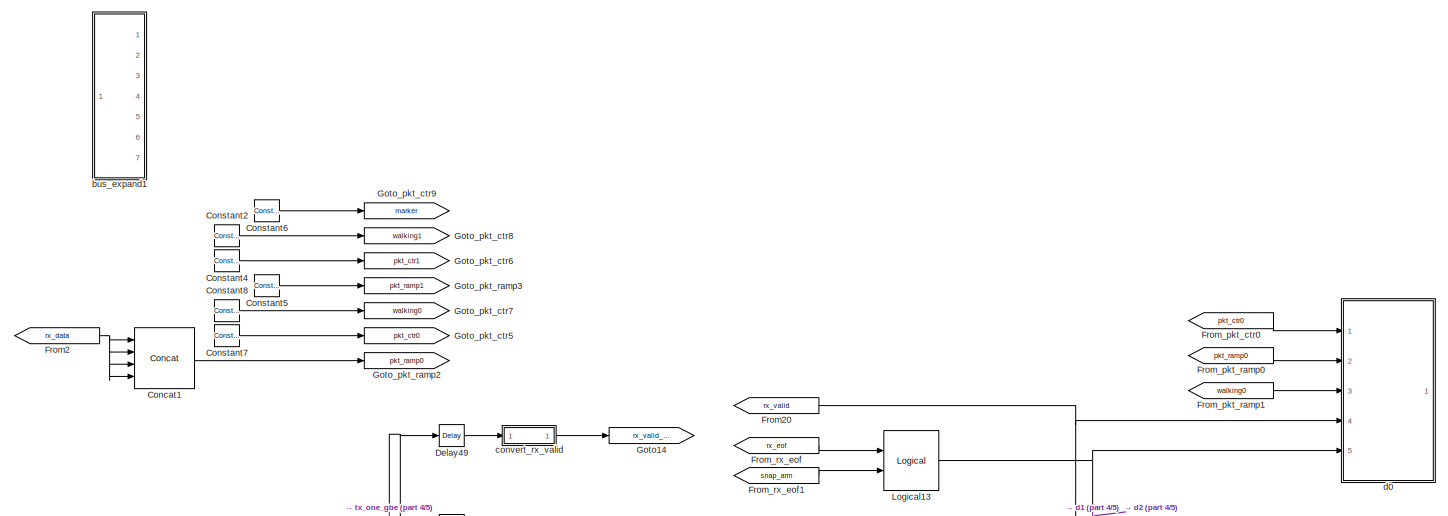
[diagram: root canvas - part 1/5, top center region]
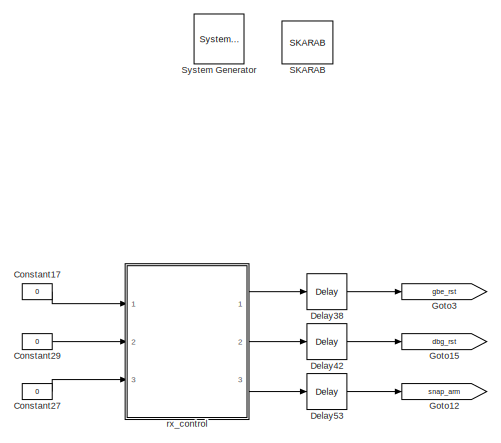
[diagram: root canvas - part 2/5, top left region]
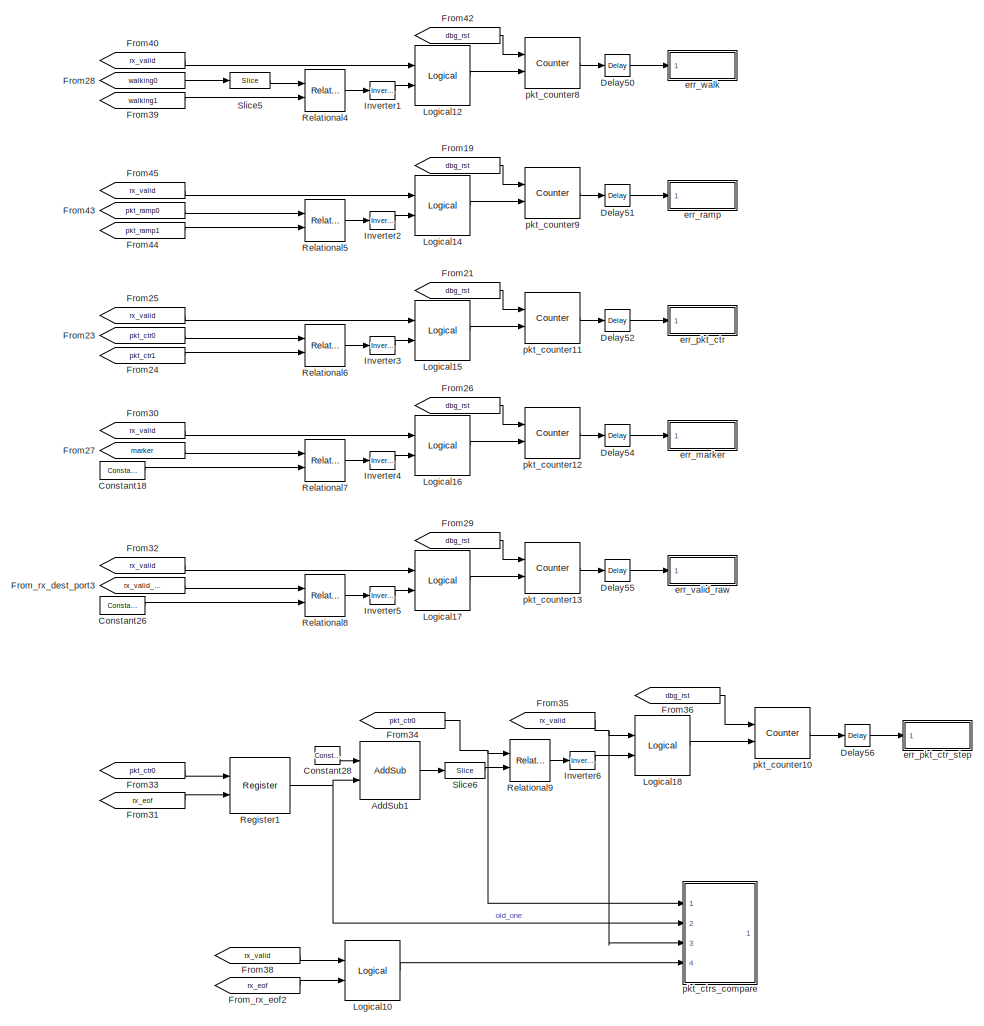
[diagram: root canvas - part 3/5, middle right region]
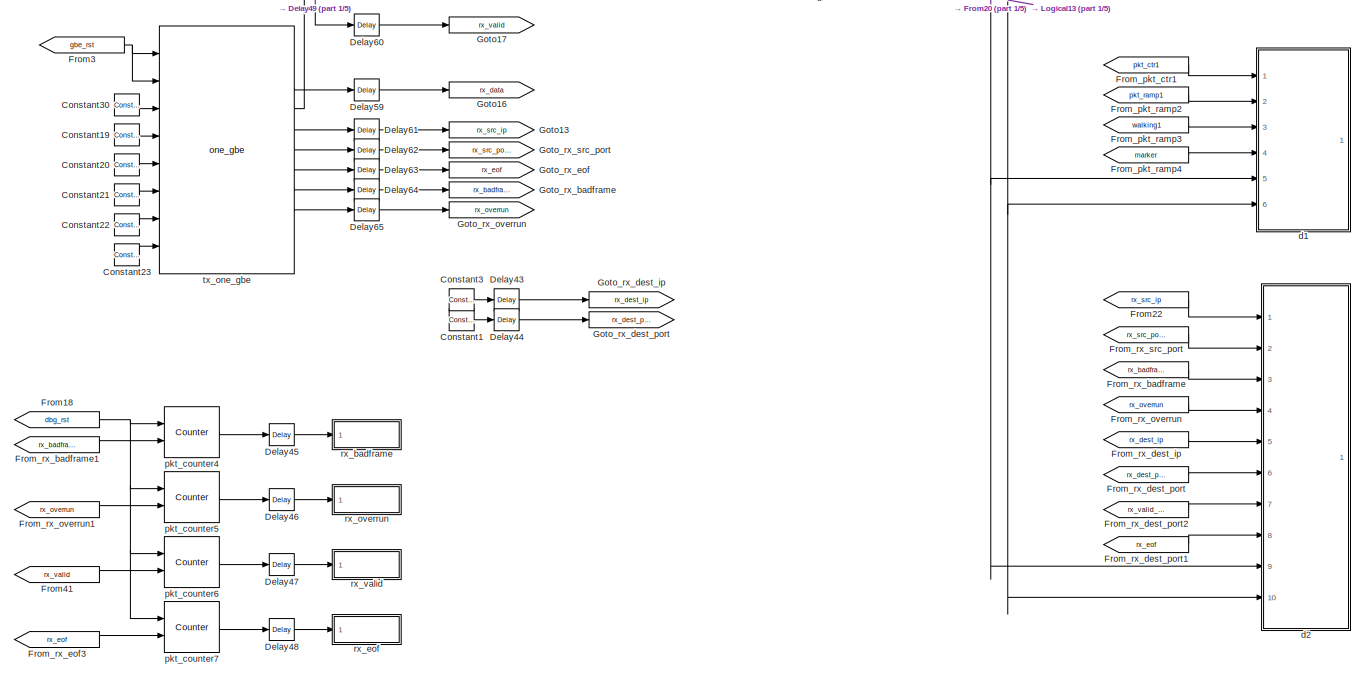
[diagram: root canvas - part 4/5, central region]
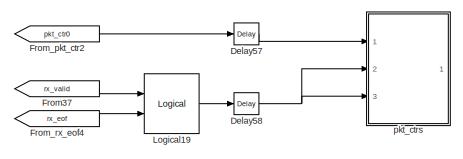
[diagram: root canvas - part 5/5, bottom center region]
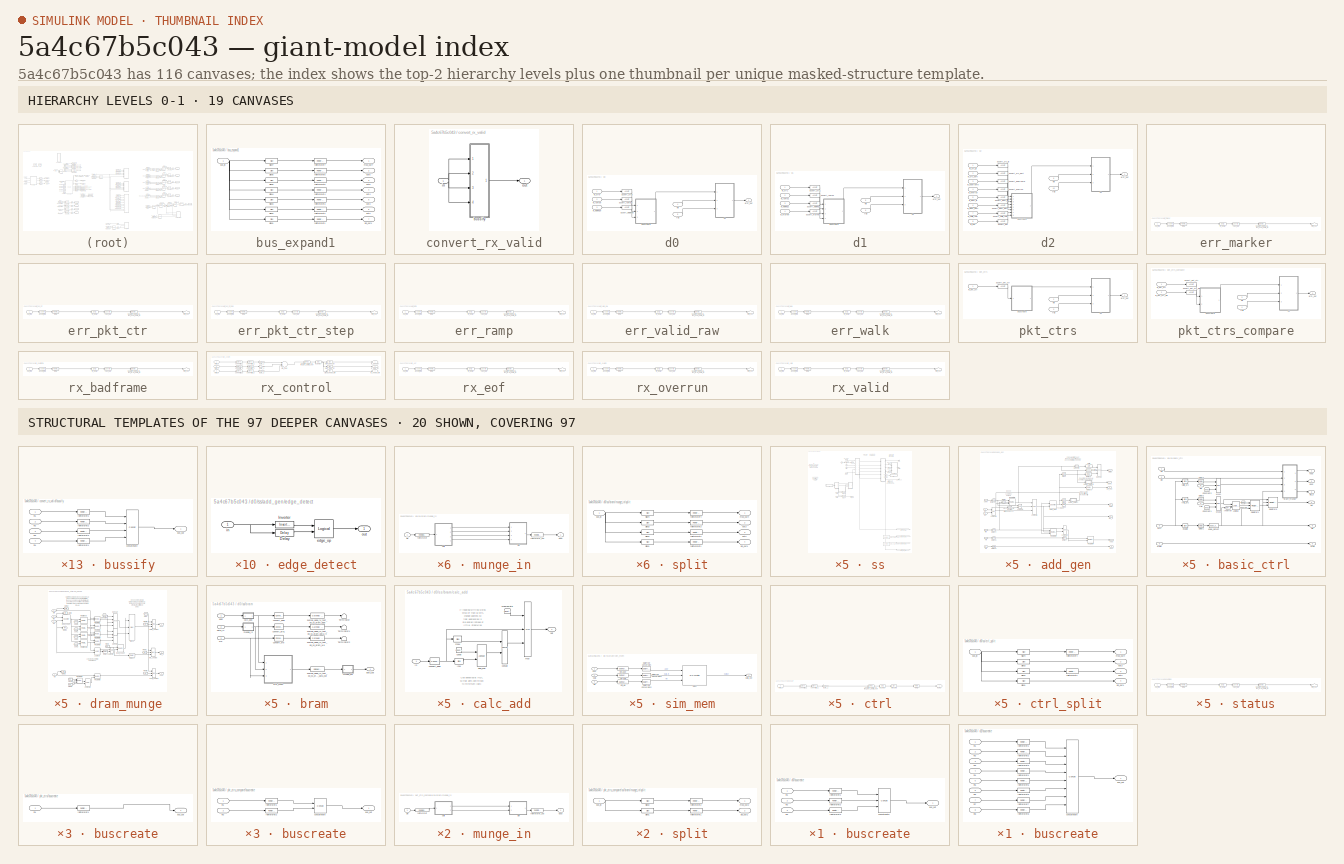
[diagram: thumbnail index - top-2 hierarchy levels (19 canvases) + 20 structural-template representatives of the remaining 97 canvases]
MODEL slx_5a4c67b5c043
KIND model
CONFIG AbsTol = auto
CONFIG EnableMultiTasking = off
CONFIG FixedStep = auto
CONFIG MaxStep = auto
CONFIG MinStep = auto
CONFIG RelTol = 1e-3
CONFIG SampleTimeConstraint = Unconstrained
CONFIG Solver = VariableStepAuto
CONFIG SolverName = VariableStepAuto
CONFIG StartTime = 0.0
CONFIG StopTime = 10.0
BLOCK [Reference]  System Generator  REF=xbsIndex_r4/ System Generator
  AttributesFormatString = System\nGenerator
  Ports = []
  SourceBlock = xbsIndex_r4/ System Generator
  SourceType = Xilinx System Generator Block
  Tag = genX
  UserDataPersistent = on
BLOCK [Reference] AddSub1  REF=xbsIndex_r4/AddSub
  Ports = [2, 1]
  SourceBlock = xbsIndex_r4/AddSub
  SourceType = Xilinx Adder/Subtracter Block
BLOCK [Reference] Concat1  REF=xbsIndex_r4/Concat
  Ports = [4, 1]
  SourceBlock = xbsIndex_r4/Concat
  SourceType = Xilinx Bus Concatenator Block
BLOCK [Reference] Constant1  REF=xbsIndex_r4/Constant
  Ports = [0, 1]
  SourceBlock = xbsIndex_r4/Constant
  SourceType = Xilinx Constant Block Block
BLOCK [Constant] Constant17
  Value = 0
BLOCK [Reference] Constant18  REF=xbsIndex_r4/Constant
  Ports = [0, 1]
  SourceBlock = xbsIndex_r4/Constant
  SourceType = Xilinx Constant Block Block
BLOCK [Reference] Constant19  REF=xbsIndex_r4/Constant
  Ports = [0, 1]
  SourceBlock = xbsIndex_r4/Constant
  SourceType = Xilinx Constant Block Block
BLOCK [Reference] Constant2  REF=xbsIndex_r4/Constant
  Ports = [0, 1]
  SourceBlock = xbsIndex_r4/Constant
  SourceType = Xilinx Constant Block Block
BLOCK [Reference] Constant20  REF=xbsIndex_r4/Constant
  Ports = [0, 1]
  SourceBlock = xbsIndex_r4/Constant
  SourceType = Xilinx Constant Block Block
BLOCK [Reference] Constant21  REF=xbsIndex_r4/Constant
  Ports = [0, 1]
  SourceBlock = xbsIndex_r4/Constant
  SourceType = Xilinx Constant Block Block
BLOCK [Reference] Constant22  REF=xbsIndex_r4/Constant
  Ports = [0, 1]
  SourceBlock = xbsIndex_r4/Constant
  SourceType = Xilinx Constant Block Block
BLOCK [Reference] Constant23  REF=xbsIndex_r4/Constant
  Ports = [0, 1]
  SourceBlock = xbsIndex_r4/Constant
  SourceType = Xilinx Constant Block Block
BLOCK [Reference] Constant26  REF=xbsIndex_r4/Constant
  Ports = [0, 1]
  SourceBlock = xbsIndex_r4/Constant
  SourceType = Xilinx Constant Block Block
BLOCK [Constant] Constant27
  Value = 0
BLOCK [Reference] Constant28  REF=xbsIndex_r4/Constant
  Ports = [0, 1]
  SourceBlock = xbsIndex_r4/Constant
  SourceType = Xilinx Constant Block Block
BLOCK [Constant] Constant29
  Value = 0
BLOCK [Reference] Constant3  REF=xbsIndex_r4/Constant
  Ports = [0, 1]
  SourceBlock = xbsIndex_r4/Constant
  SourceType = Xilinx Constant Block Block
BLOCK [Reference] Constant30  REF=xbsIndex_r4/Constant
  Ports = [0, 1]
  SourceBlock = xbsIndex_r4/Constant
  SourceType = Xilinx Constant Block Block
BLOCK [Reference] Constant4  REF=xbsIndex_r4/Constant
  Ports = [0, 1]
  SourceBlock = xbsIndex_r4/Constant
  SourceType = Xilinx Constant Block Block
BLOCK [Reference] Constant5  REF=xbsIndex_r4/Constant
  Ports = [0, 1]
  SourceBlock = xbsIndex_r4/Constant
  SourceType = Xilinx Constant Block Block
BLOCK [Reference] Constant6  REF=xbsIndex_r4/Constant
  Ports = [0, 1]
  SourceBlock = xbsIndex_r4/Constant
  SourceType = Xilinx Constant Block Block
BLOCK [Reference] Constant7  REF=xbsIndex_r4/Constant
  Ports = [0, 1]
  SourceBlock = xbsIndex_r4/Constant
  SourceType = Xilinx Constant Block Block
BLOCK [Reference] Constant8  REF=xbsIndex_r4/Constant
  Ports = [0, 1]
  SourceBlock = xbsIndex_r4/Constant
  SourceType = Xilinx Constant Block Block
BLOCK [Reference] Delay38  REF=xbsIndex_r4/Delay
  Ports = [1, 1]
  SourceBlock = xbsIndex_r4/Delay
  SourceType = Xilinx Delay Block
BLOCK [Reference] Delay42  REF=xbsIndex_r4/Delay
  Ports = [1, 1]
  SourceBlock = xbsIndex_r4/Delay
  SourceType = Xilinx Delay Block
BLOCK [Reference] Delay43  REF=xbsIndex_r4/Delay
  Ports = [1, 1]
  SourceBlock = xbsIndex_r4/Delay
  SourceType = Xilinx Delay Block
BLOCK [Reference] Delay44  REF=xbsIndex_r4/Delay
  Ports = [1, 1]
  SourceBlock = xbsIndex_r4/Delay
  SourceType = Xilinx Delay Block
BLOCK [Reference] Delay45  REF=xbsIndex_r4/Delay
  Ports = [1, 1]
  SourceBlock = xbsIndex_r4/Delay
  SourceType = Xilinx Delay Block
BLOCK [Reference] Delay46  REF=xbsIndex_r4/Delay
  Ports = [1, 1]
  SourceBlock = xbsIndex_r4/Delay
  SourceType = Xilinx Delay Block
BLOCK [Reference] Delay47  REF=xbsIndex_r4/Delay
  Ports = [1, 1]
  SourceBlock = xbsIndex_r4/Delay
  SourceType = Xilinx Delay Block
BLOCK [Reference] Delay48  REF=xbsIndex_r4/Delay
  Ports = [1, 1]
  SourceBlock = xbsIndex_r4/Delay
  SourceType = Xilinx Delay Block
BLOCK [Reference] Delay49  REF=xbsIndex_r4/Delay
  Ports = [1, 1]
  SourceBlock = xbsIndex_r4/Delay
  SourceType = Xilinx Delay Block
BLOCK [Reference] Delay50  REF=xbsIndex_r4/Delay
  Ports = [1, 1]
  SourceBlock = xbsIndex_r4/Delay
  SourceType = Xilinx Delay Block
BLOCK [Reference] Delay51  REF=xbsIndex_r4/Delay
  Ports = [1, 1]
  SourceBlock = xbsIndex_r4/Delay
  SourceType = Xilinx Delay Block
BLOCK [Reference] Delay52  REF=xbsIndex_r4/Delay
  Ports = [1, 1]
  SourceBlock = xbsIndex_r4/Delay
  SourceType = Xilinx Delay Block
BLOCK [Reference] Delay53  REF=xbsIndex_r4/Delay
  Ports = [1, 1]
  SourceBlock = xbsIndex_r4/Delay
  SourceType = Xilinx Delay Block
BLOCK [Reference] Delay54  REF=xbsIndex_r4/Delay
  Ports = [1, 1]
  SourceBlock = xbsIndex_r4/Delay
  SourceType = Xilinx Delay Block
BLOCK [Reference] Delay55  REF=xbsIndex_r4/Delay
  Ports = [1, 1]
  SourceBlock = xbsIndex_r4/Delay
  SourceType = Xilinx Delay Block
BLOCK [Reference] Delay56  REF=xbsIndex_r4/Delay
  Ports = [1, 1]
  SourceBlock = xbsIndex_r4/Delay
  SourceType = Xilinx Delay Block
BLOCK [Reference] Delay57  REF=xbsIndex_r4/Delay
  Ports = [1, 1]
  SourceBlock = xbsIndex_r4/Delay
  SourceType = Xilinx Delay Block
BLOCK [Reference] Delay58  REF=xbsIndex_r4/Delay
  Ports = [1, 1]
  SourceBlock = xbsIndex_r4/Delay
  SourceType = Xilinx Delay Block
BLOCK [Reference] Delay59  REF=xbsIndex_r4/Delay
  Ports = [1, 1]
  SourceBlock = xbsIndex_r4/Delay
  SourceType = Xilinx Delay Block
BLOCK [Reference] Delay60  REF=xbsIndex_r4/Delay
  Ports = [1, 1]
  SourceBlock = xbsIndex_r4/Delay
  SourceType = Xilinx Delay Block
BLOCK [Reference] Delay61  REF=xbsIndex_r4/Delay
  Ports = [1, 1]
  SourceBlock = xbsIndex_r4/Delay
  SourceType = Xilinx Delay Block
BLOCK [Reference] Delay62  REF=xbsIndex_r4/Delay
  Ports = [1, 1]
  SourceBlock = xbsIndex_r4/Delay
  SourceType = Xilinx Delay Block
BLOCK [Reference] Delay63  REF=xbsIndex_r4/Delay
  Ports = [1, 1]
  SourceBlock = xbsIndex_r4/Delay
  SourceType = Xilinx Delay Block
BLOCK [Reference] Delay64  REF=xbsIndex_r4/Delay
  Ports = [1, 1]
  SourceBlock = xbsIndex_r4/Delay
  SourceType = Xilinx Delay Block
BLOCK [Reference] Delay65  REF=xbsIndex_r4/Delay
  Ports = [1, 1]
  SourceBlock = xbsIndex_r4/Delay
  SourceType = Xilinx Delay Block
BLOCK [From] From18
  GotoTag = dbg_rst
BLOCK [From] From19
  GotoTag = dbg_rst
BLOCK [From] From2
  GotoTag = rx_data
BLOCK [From] From20
  GotoTag = rx_valid
BLOCK [From] From21
  GotoTag = dbg_rst
BLOCK [From] From22
  GotoTag = rx_src_ip
BLOCK [From] From23
  GotoTag = pkt_ctr0
BLOCK [From] From24
  GotoTag = pkt_ctr1
BLOCK [From] From25
  GotoTag = rx_valid
BLOCK [From] From26
  GotoTag = dbg_rst
BLOCK [From] From27
  GotoTag = marker
BLOCK [From] From28
  GotoTag = walking0
BLOCK [From] From29
  GotoTag = dbg_rst
BLOCK [From] From3
  GotoTag = gbe_rst
BLOCK [From] From30
  GotoTag = rx_valid
BLOCK [From] From31
  GotoTag = rx_eof
BLOCK [From] From32
  GotoTag = rx_valid
BLOCK [From] From33
  GotoTag = pkt_ctr0
BLOCK [From] From34
  GotoTag = pkt_ctr0
BLOCK [From] From35
  GotoTag = rx_valid
BLOCK [From] From36
  GotoTag = dbg_rst
BLOCK [From] From37
  GotoTag = rx_valid
BLOCK [From] From38
  GotoTag = rx_valid
BLOCK [From] From39
  GotoTag = walking1
BLOCK [From] From40
  GotoTag = rx_valid
BLOCK [From] From41
  GotoTag = rx_valid
BLOCK [From] From42
  GotoTag = dbg_rst
BLOCK [From] From43
  GotoTag = pkt_ramp0
BLOCK [From] From44
  GotoTag = pkt_ramp1
BLOCK [From] From45
  GotoTag = rx_valid
BLOCK [From] From_pkt_ctr0
  GotoTag = pkt_ctr0
BLOCK [From] From_pkt_ctr1
  GotoTag = pkt_ctr1
BLOCK [From] From_pkt_ctr2
  GotoTag = pkt_ctr0
BLOCK [From] From_pkt_ramp0
  GotoTag = pkt_ramp0
BLOCK [From] From_pkt_ramp1
  GotoTag = walking0
BLOCK [From] From_pkt_ramp2
  GotoTag = pkt_ramp1
BLOCK [From] From_pkt_ramp3
  GotoTag = walking1
BLOCK [From] From_pkt_ramp4
  GotoTag = marker
BLOCK [From] From_rx_badframe
  GotoTag = rx_badframe
BLOCK [From] From_rx_badframe1
  GotoTag = rx_badframe
BLOCK [From] From_rx_dest_ip
  GotoTag = rx_dest_ip
BLOCK [From] From_rx_dest_port
  GotoTag = rx_dest_port
BLOCK [From] From_rx_dest_port1
  GotoTag = rx_eof
BLOCK [From] From_rx_dest_port2
  GotoTag = rx_valid_raw
BLOCK [From] From_rx_dest_port3
  GotoTag = rx_valid_raw
BLOCK [From] From_rx_eof
  GotoTag = rx_eof
BLOCK [From] From_rx_eof1
  GotoTag = snap_arm
BLOCK [From] From_rx_eof2
  GotoTag = rx_eof
BLOCK [From] From_rx_eof3
  GotoTag = rx_eof
BLOCK [From] From_rx_eof4
  GotoTag = rx_eof
BLOCK [From] From_rx_overrun
  GotoTag = rx_overrun
BLOCK [From] From_rx_overrun1
  GotoTag = rx_overrun
BLOCK [From] From_rx_src_port
  GotoTag = rx_src_port
BLOCK [Goto] Goto12
  GotoTag = snap_arm
BLOCK [Goto] Goto13
  GotoTag = rx_src_ip
BLOCK [Goto] Goto14
  GotoTag = rx_valid_raw
BLOCK [Goto] Goto15
  GotoTag = dbg_rst
BLOCK [Goto] Goto16
  GotoTag = rx_data
BLOCK [Goto] Goto17
  GotoTag = rx_valid
BLOCK [Goto] Goto3
  GotoTag = gbe_rst
BLOCK [Goto] Goto_pkt_ctr5
  GotoTag = pkt_ctr0
BLOCK [Goto] Goto_pkt_ctr6
  GotoTag = pkt_ctr1
BLOCK [Goto] Goto_pkt_ctr7
  GotoTag = walking0
BLOCK [Goto] Goto_pkt_ctr8
  GotoTag = walking1
BLOCK [Goto] Goto_pkt_ctr9
  GotoTag = marker
BLOCK [Goto] Goto_pkt_ramp2
  GotoTag = pkt_ramp0
BLOCK [Goto] Goto_pkt_ramp3
  GotoTag = pkt_ramp1
BLOCK [Goto] Goto_rx_badframe
  GotoTag = rx_badframe
BLOCK [Goto] Goto_rx_dest_ip
  GotoTag = rx_dest_ip
BLOCK [Goto] Goto_rx_dest_port
  GotoTag = rx_dest_port
BLOCK [Goto] Goto_rx_eof
  GotoTag = rx_eof
BLOCK [Goto] Goto_rx_overrun
  GotoTag = rx_overrun
BLOCK [Goto] Goto_rx_src_port
  GotoTag = rx_src_port
BLOCK [Reference] Inverter1  REF=xbsIndex_r4/Inverter
  Ports = [1, 1]
  SourceBlock = xbsIndex_r4/Inverter
  SourceType = Xilinx Inverter Block
BLOCK [Reference] Inverter2  REF=xbsIndex_r4/Inverter
  Ports = [1, 1]
  SourceBlock = xbsIndex_r4/Inverter
  SourceType = Xilinx Inverter Block
BLOCK [Reference] Inverter3  REF=xbsIndex_r4/Inverter
  Ports = [1, 1]
  SourceBlock = xbsIndex_r4/Inverter
  SourceType = Xilinx Inverter Block
BLOCK [Reference] Inverter4  REF=xbsIndex_r4/Inverter
  Ports = [1, 1]
  SourceBlock = xbsIndex_r4/Inverter
  SourceType = Xilinx Inverter Block
BLOCK [Reference] Inverter5  REF=xbsIndex_r4/Inverter
  Ports = [1, 1]
  SourceBlock = xbsIndex_r4/Inverter
  SourceType = Xilinx Inverter Block
BLOCK [Reference] Inverter6  REF=xbsIndex_r4/Inverter
  Ports = [1, 1]
  SourceBlock = xbsIndex_r4/Inverter
  SourceType = Xilinx Inverter Block
BLOCK [Reference] Logical10  REF=xbsIndex_r4/Logical
  Ports = [2, 1]
  SourceBlock = xbsIndex_r4/Logical
  SourceType = Xilinx Logical Block Block
BLOCK [Reference] Logical12  REF=xbsIndex_r4/Logical
  Ports = [2, 1]
  SourceBlock = xbsIndex_r4/Logical
  SourceType = Xilinx Logical Block Block
BLOCK [Reference] Logical13  REF=xbsIndex_r4/Logical
  Ports = [2, 1]
  SourceBlock = xbsIndex_r4/Logical
  SourceType = Xilinx Logical Block Block
BLOCK [Reference] Logical14  REF=xbsIndex_r4/Logical
  Ports = [2, 1]
  SourceBlock = xbsIndex_r4/Logical
  SourceType = Xilinx Logical Block Block
BLOCK [Reference] Logical15  REF=xbsIndex_r4/Logical
  Ports = [2, 1]
  SourceBlock = xbsIndex_r4/Logical
  SourceType = Xilinx Logical Block Block
BLOCK [Reference] Logical16  REF=xbsIndex_r4/Logical
  Ports = [2, 1]
  SourceBlock = xbsIndex_r4/Logical
  SourceType = Xilinx Logical Block Block
BLOCK [Reference] Logical17  REF=xbsIndex_r4/Logical
  Ports = [2, 1]
  SourceBlock = xbsIndex_r4/Logical
  SourceType = Xilinx Logical Block Block
BLOCK [Reference] Logical18  REF=xbsIndex_r4/Logical
  Ports = [2, 1]
  SourceBlock = xbsIndex_r4/Logical
  SourceType = Xilinx Logical Block Block
BLOCK [Reference] Logical19  REF=xbsIndex_r4/Logical
  Ports = [2, 1]
  SourceBlock = xbsIndex_r4/Logical
  SourceType = Xilinx Logical Block Block
BLOCK [Reference] Register1  REF=xbsIndex_r4/Register
  Ports = [2, 1]
  SourceBlock = xbsIndex_r4/Register
  SourceType = Xilinx Register Block
BLOCK [Reference] Relational4  REF=xbsIndex_r4/Relational
  Ports = [2, 1]
  SourceBlock = xbsIndex_r4/Relational
  SourceType = Xilinx Arithmetic Relational Operator Block
BLOCK [Reference] Relational5  REF=xbsIndex_r4/Relational
  Ports = [2, 1]
  SourceBlock = xbsIndex_r4/Relational
  SourceType = Xilinx Arithmetic Relational Operator Block
BLOCK [Reference] Relational6  REF=xbsIndex_r4/Relational
  Ports = [2, 1]
  SourceBlock = xbsIndex_r4/Relational
  SourceType = Xilinx Arithmetic Relational Operator Block
BLOCK [Reference] Relational7  REF=xbsIndex_r4/Relational
  Ports = [2, 1]
  SourceBlock = xbsIndex_r4/Relational
  SourceType = Xilinx Arithmetic Relational Operator Block
BLOCK [Reference] Relational8  REF=xbsIndex_r4/Relational
  Ports = [2, 1]
  SourceBlock = xbsIndex_r4/Relational
  SourceType = Xilinx Arithmetic Relational Operator Block
BLOCK [Reference] Relational9  REF=xbsIndex_r4/Relational
  Ports = [2, 1]
  SourceBlock = xbsIndex_r4/Relational
  SourceType = Xilinx Arithmetic Relational Operator Block
BLOCK [Reference] SKARAB  REF=xps_library/Platforms/SKARAB  (lib defined in mdl_00b5cec29cd0, mdl_02ab6ecaa3d1, +5 more)
  Ports = []
  SourceBlock = xps_library/Platforms/SKARAB
  SourceProductName = CASPER XPS Blockset
  SourceType = xsg core config
  Tag = xps:xsg
BLOCK [Reference] Slice5  REF=xbsIndex_r4/Slice
  Ports = [1, 1]
  SourceBlock = xbsIndex_r4/Slice
  SourceType = Xilinx Bit Slice Extractor Block
BLOCK [Reference] Slice6  REF=xbsIndex_r4/Slice
  Ports = [1, 1]
  SourceBlock = xbsIndex_r4/Slice
  SourceType = Xilinx Bit Slice Extractor Block
BLOCK [SubSystem] bus_expand1
  AncestorBlock = casper_library_flow_control/bus_expand
  AttributesFormatString = 7 outputs: uf16.0,uf48.0,uf32.0,uf32.0,uf64.0,uf32.0,uf32.0,
  Commented = on
  Ports = [1, 7]
  RequestExecContextInheritance = off
  UserDataPersistent = on
BLOCK [Inport] bus_expand1/bus_in
  IconDisplay = Port number
BLOCK [Outport] bus_expand1/lsb_out1
  IconDisplay = Port number
  Port = 7
BLOCK [Outport] bus_expand1/msb_out7
  IconDisplay = Port number
BLOCK [Outport] bus_expand1/out2
  IconDisplay = Port number
  Port = 6
BLOCK [Outport] bus_expand1/out3
  IconDisplay = Port number
  Port = 5
BLOCK [Outport] bus_expand1/out4
  IconDisplay = Port number
  Port = 4
BLOCK [Outport] bus_expand1/out5
  IconDisplay = Port number
  Port = 3
BLOCK [Outport] bus_expand1/out6
  IconDisplay = Port number
  Port = 2
BLOCK [Reference] bus_expand1/reinterpret1  REF=xbsIndex_r4/Reinterpret
  Ports = [1, 1]
  SourceBlock = xbsIndex_r4/Reinterpret
  SourceType = Xilinx Type Reinterpreter Block
BLOCK [Reference] bus_expand1/reinterpret2  REF=xbsIndex_r4/Reinterpret
  Ports = [1, 1]
  SourceBlock = xbsIndex_r4/Reinterpret
  SourceType = Xilinx Type Reinterpreter Block
BLOCK [Reference] bus_expand1/reinterpret3  REF=xbsIndex_r4/Reinterpret
  Ports = [1, 1]
  SourceBlock = xbsIndex_r4/Reinterpret
  SourceType = Xilinx Type Reinterpreter Block
BLOCK [Reference] bus_expand1/reinterpret4  REF=xbsIndex_r4/Reinterpret
  Ports = [1, 1]
  SourceBlock = xbsIndex_r4/Reinterpret
  SourceType = Xilinx Type Reinterpreter Block
BLOCK [Reference] bus_expand1/reinterpret5  REF=xbsIndex_r4/Reinterpret
  Ports = [1, 1]
  SourceBlock = xbsIndex_r4/Reinterpret
  SourceType = Xilinx Type Reinterpreter Block
BLOCK [Reference] bus_expand1/reinterpret6  REF=xbsIndex_r4/Reinterpret
  Ports = [1, 1]
  SourceBlock = xbsIndex_r4/Reinterpret
  SourceType = Xilinx Type Reinterpreter Block
BLOCK [Reference] bus_expand1/reinterpret7  REF=xbsIndex_r4/Reinterpret
  Ports = [1, 1]
  SourceBlock = xbsIndex_r4/Reinterpret
  SourceType = Xilinx Type Reinterpreter Block
BLOCK [Reference] bus_expand1/slice1  REF=xbsIndex_r4/Slice
  Ports = [1, 1]
  SourceBlock = xbsIndex_r4/Slice
  SourceType = Xilinx Bit Slice Extractor Block
BLOCK [Reference] bus_expand1/slice2  REF=xbsIndex_r4/Slice
  Ports = [1, 1]
  SourceBlock = xbsIndex_r4/Slice
  SourceType = Xilinx Bit Slice Extractor Block
BLOCK [Reference] bus_expand1/slice3  REF=xbsIndex_r4/Slice
  Ports = [1, 1]
  SourceBlock = xbsIndex_r4/Slice
  SourceType = Xilinx Bit Slice Extractor Block
BLOCK [Reference] bus_expand1/slice4  REF=xbsIndex_r4/Slice
  Ports = [1, 1]
  SourceBlock = xbsIndex_r4/Slice
  SourceType = Xilinx Bit Slice Extractor Block
BLOCK [Reference] bus_expand1/slice5  REF=xbsIndex_r4/Slice
  Ports = [1, 1]
  SourceBlock = xbsIndex_r4/Slice
  SourceType = Xilinx Bit Slice Extractor Block
BLOCK [Reference] bus_expand1/slice6  REF=xbsIndex_r4/Slice
  Ports = [1, 1]
  SourceBlock = xbsIndex_r4/Slice
  SourceType = Xilinx Bit Slice Extractor Block
BLOCK [Reference] bus_expand1/slice7  REF=xbsIndex_r4/Slice
  Ports = [1, 1]
  SourceBlock = xbsIndex_r4/Slice
  SourceType = Xilinx Bit Slice Extractor Block
BLOCK [SubSystem] convert_rx_valid
  AncestorBlock = casper_library_bus/bus_replicate
  Ports = [1, 1]
  RequestExecContextInheritance = off
  UserDataPersistent = on
BLOCK [SubSystem] convert_rx_valid/bussify
  AncestorBlock = casper_library_flow_control/bus_create
  Ports = [4, 1]
  RequestExecContextInheritance = off
  UserDataPersistent = on
BLOCK [Outport] convert_rx_valid/bussify/bus_out
  IconDisplay = Port number
BLOCK [Reference] convert_rx_valid/bussify/concatenate  REF=xbsIndex_r4/Concat
  Ports = [4, 1]
  SourceBlock = xbsIndex_r4/Concat
  SourceType = Xilinx Bus Concatenator Block
BLOCK [Inport] convert_rx_valid/bussify/in1
  IconDisplay = Port number
BLOCK [Inport] convert_rx_valid/bussify/in2
  IconDisplay = Port number
  Port = 2
BLOCK [Inport] convert_rx_valid/bussify/in3
  IconDisplay = Port number
  Port = 3
BLOCK [Inport] convert_rx_valid/bussify/in4
  IconDisplay = Port number
  Port = 4
BLOCK [Reference] convert_rx_valid/bussify/reinterpret1  REF=xbsIndex_r4/Reinterpret
  Ports = [1, 1]
  SourceBlock = xbsIndex_r4/Reinterpret
  SourceType = Xilinx Type Reinterpreter Block
BLOCK [Reference] convert_rx_valid/bussify/reinterpret2  REF=xbsIndex_r4/Reinterpret
  Ports = [1, 1]
  SourceBlock = xbsIndex_r4/Reinterpret
  SourceType = Xilinx Type Reinterpreter Block
BLOCK [Reference] convert_rx_valid/bussify/reinterpret3  REF=xbsIndex_r4/Reinterpret
  Ports = [1, 1]
  SourceBlock = xbsIndex_r4/Reinterpret
  SourceType = Xilinx Type Reinterpreter Block
BLOCK [Reference] convert_rx_valid/bussify/reinterpret4  REF=xbsIndex_r4/Reinterpret
  Ports = [1, 1]
  SourceBlock = xbsIndex_r4/Reinterpret
  SourceType = Xilinx Type Reinterpreter Block
BLOCK [Inport] convert_rx_valid/in
  IconDisplay = Port number
BLOCK [Outport] convert_rx_valid/out
  IconDisplay = Port number
BLOCK [SubSystem] d0
  AncestorBlock = casper_library_scopes/bitfield_snapshot
  AttributesFormatString = snap(3):uf32.0,uf32.0,uf64.0 = 128 bits\n128 wide, 8192 deep\ndebugID: 107683228
  Ports = [5, 1]
  RequestExecContextInheritance = off
  Tag = casper:bitsnap
  UserDataPersistent = on
BLOCK [Outport] d0/arm_out
  IconDisplay = Port number
BLOCK [Reference] d0/assert_ctr0  REF=xbsIndex_r4/Assert
  Ports = [1, 1]
  SourceBlock = xbsIndex_r4/Assert
  SourceType = Xilinx Assert Block
BLOCK [Reference] d0/assert_ramp0  REF=xbsIndex_r4/Assert
  Ports = [1, 1]
  SourceBlock = xbsIndex_r4/Assert
  SourceType = Xilinx Assert Block
BLOCK [Reference] d0/assert_walking0  REF=xbsIndex_r4/Assert
  Ports = [1, 1]
  SourceBlock = xbsIndex_r4/Assert
  SourceType = Xilinx Assert Block
BLOCK [SubSystem] d0/buscreate
  AncestorBlock = casper_library_flow_control/bus_create
  Ports = [3, 1]
  RequestExecContextInheritance = off
  UserDataPersistent = on
BLOCK [Outport] d0/buscreate/bus_out
  IconDisplay = Port number
BLOCK [Reference] d0/buscreate/concatenate  REF=xbsIndex_r4/Concat
  Ports = [3, 1]
  SourceBlock = xbsIndex_r4/Concat
  SourceType = Xilinx Bus Concatenator Block
BLOCK [Inport] d0/buscreate/in1
  IconDisplay = Port number
BLOCK [Inport] d0/buscreate/in2
  IconDisplay = Port number
  Port = 2
BLOCK [Inport] d0/buscreate/in3
  IconDisplay = Port number
  Port = 3
BLOCK [Reference] d0/buscreate/reinterpret1  REF=xbsIndex_r4/Reinterpret
  Ports = [1, 1]
  SourceBlock = xbsIndex_r4/Reinterpret
  SourceType = Xilinx Type Reinterpreter Block
BLOCK [Reference] d0/buscreate/reinterpret2  REF=xbsIndex_r4/Reinterpret
  Ports = [1, 1]
  SourceBlock = xbsIndex_r4/Reinterpret
  SourceType = Xilinx Type Reinterpreter Block
BLOCK [Reference] d0/buscreate/reinterpret3  REF=xbsIndex_r4/Reinterpret
  Ports = [1, 1]
  SourceBlock = xbsIndex_r4/Reinterpret
  SourceType = Xilinx Type Reinterpreter Block
BLOCK [Inport] d0/in_ctr0
  IconDisplay = Port number
BLOCK [Inport] d0/in_ramp0
  IconDisplay = Port number
  Port = 2
BLOCK [Inport] d0/in_walking0
  IconDisplay = Port number
  Port = 3
BLOCK [SubSystem] d0/ss
  AncestorBlock = casper_library_scopes/snapshot
  AttributesFormatString = 128 wide, 8192 deep\ndebugID: 110985542
  Ports = [3, 1]
  RequestExecContextInheritance = off
  Tag = casper:snapshot
  UserDataPersistent = on
BLOCK [Reference] d0/ss/add_del  REF=xbsIndex_r4/Delay
  Ports = [1, 1]
  SourceBlock = xbsIndex_r4/Delay
  SourceType = Xilinx Delay Block
BLOCK [SubSystem] d0/ss/add_gen
  AncestorBlock = casper_library_scopes/snapshot/add_gen
  Ports = [6, 7]
  RequestExecContextInheritance = off
BLOCK [Reference] d0/ss/add_gen/Concat  REF=xbsIndex_r4/Concat
  Ports = [3, 1]
  SourceBlock = xbsIndex_r4/Concat
  SourceType = Xilinx Bus Concatenator Block
BLOCK [Reference] d0/ss/add_gen/Convert  REF=xbsIndex_r4/Convert
  Ports = [1, 1]
  SourceBlock = xbsIndex_r4/Convert
  SourceType = Xilinx Type Converter Block
BLOCK [Reference] d0/ss/add_gen/Delay  REF=xbsIndex_r4/Delay
  Ports = [1, 1]
  SourceBlock = xbsIndex_r4/Delay
  SourceType = Xilinx Delay Block
BLOCK [Reference] d0/ss/add_gen/Delay1  REF=xbsIndex_r4/Delay
  Ports = [1, 1]
  SourceBlock = xbsIndex_r4/Delay
  SourceType = Xilinx Delay Block
BLOCK [Reference] d0/ss/add_gen/Delay2  REF=xbsIndex_r4/Delay
  Ports = [1, 1]
  SourceBlock = xbsIndex_r4/Delay
  SourceType = Xilinx Delay Block
BLOCK [Reference] d0/ss/add_gen/Delay3  REF=xbsIndex_r4/Delay
  Ports = [1, 1]
  SourceBlock = xbsIndex_r4/Delay
  SourceType = Xilinx Delay Block
BLOCK [Reference] d0/ss/add_gen/Delay4  REF=xbsIndex_r4/Delay
  Ports = [1, 1]
  SourceBlock = xbsIndex_r4/Delay
  SourceType = Xilinx Delay Block
BLOCK [Reference] d0/ss/add_gen/Delay5  REF=xbsIndex_r4/Delay
  Ports = [1, 1]
  SourceBlock = xbsIndex_r4/Delay
  SourceType = Xilinx Delay Block
BLOCK [Reference] d0/ss/add_gen/Delay6  REF=xbsIndex_r4/Delay
  Ports = [1, 1]
  SourceBlock = xbsIndex_r4/Delay
  SourceType = Xilinx Delay Block
BLOCK [Reference] d0/ss/add_gen/Delay7  REF=xbsIndex_r4/Delay
  Ports = [1, 1]
  SourceBlock = xbsIndex_r4/Delay
  SourceType = Xilinx Delay Block
BLOCK [Reference] d0/ss/add_gen/Inverter  REF=xbsIndex_r4/Inverter
  Ports = [1, 1]
  SourceBlock = xbsIndex_r4/Inverter
  SourceType = Xilinx Inverter Block
BLOCK [Reference] d0/ss/add_gen/Inverter1  REF=xbsIndex_r4/Inverter
  Ports = [1, 1]
  SourceBlock = xbsIndex_r4/Inverter
  SourceType = Xilinx Inverter Block
BLOCK [Reference] d0/ss/add_gen/Logical1  REF=xbsIndex_r4/Logical
  Ports = [2, 1]
  SourceBlock = xbsIndex_r4/Logical
  SourceType = Xilinx Logical Block Block
BLOCK [Reference] d0/ss/add_gen/Logical2  REF=xbsIndex_r4/Logical
  Ports = [2, 1]
  SourceBlock = xbsIndex_r4/Logical
  SourceType = Xilinx Logical Block Block
BLOCK [Reference] d0/ss/add_gen/Logical4  REF=xbsIndex_r4/Logical
  Ports = [2, 1]
  SourceBlock = xbsIndex_r4/Logical
  SourceType = Xilinx Logical Block Block
BLOCK [Reference] d0/ss/add_gen/Logical6  REF=xbsIndex_r4/Logical
  Ports = [3, 1]
  SourceBlock = xbsIndex_r4/Logical
  SourceType = Xilinx Logical Block Block
BLOCK [Reference] d0/ss/add_gen/Register3  REF=xbsIndex_r4/Register
  Ports = [3, 1]
  SourceBlock = xbsIndex_r4/Register
  SourceType = Xilinx Register Block
BLOCK [Reference] d0/ss/add_gen/Register4  REF=xbsIndex_r4/Register
  Ports = [2, 1]
  SourceBlock = xbsIndex_r4/Register
  SourceType = Xilinx Register Block
BLOCK [Reference] d0/ss/add_gen/Register5  REF=xbsIndex_r4/Register
  Ports = [3, 1]
  SourceBlock = xbsIndex_r4/Register
  SourceType = Xilinx Register Block
BLOCK [Reference] d0/ss/add_gen/Shift  REF=xbsIndex_r4/Shift
  Ports = [1, 1]
  SourceBlock = xbsIndex_r4/Shift
  SourceType = Xilinx Binary Shift Operator Block
BLOCK [Outport] d0/ss/add_gen/add
  IconDisplay = Port number
  Port = 2
BLOCK [Reference] d0/ss/add_gen/add_gen  REF=xbsIndex_r4/Counter
  Ports = [2, 1]
  SourceBlock = xbsIndex_r4/Counter
  SourceType = Xilinx Counter Block
BLOCK [Inport] d0/ss/add_gen/cont
  IconDisplay = Port number
  Port = 5
BLOCK [Inport] d0/ss/add_gen/din
  IconDisplay = Port number
  Port = 2
BLOCK [Outport] d0/ss/add_gen/done
  IconDisplay = Port number
  Port = 7
BLOCK [Outport] d0/ss/add_gen/dout
  IconDisplay = Port number
  Port = 3
BLOCK [SubSystem] d0/ss/add_gen/edge_detect
  AncestorBlock = casper_library_misc/edge_detect
  AttributesFormatString = both edges\nactive high
  Ports = [1, 1]
  RequestExecContextInheritance = off
  UserDataPersistent = on
BLOCK [Reference] d0/ss/add_gen/edge_detect/Delay  REF=xbsIndex_r4/Delay
  Ports = [1, 1]
  SourceBlock = xbsIndex_r4/Delay
  SourceType = Xilinx Delay Block
BLOCK [Reference] d0/ss/add_gen/edge_detect/Inverter  REF=xbsIndex_r4/Inverter
  Ports = [1, 1]
  SourceBlock = xbsIndex_r4/Inverter
  SourceType = Xilinx Inverter Block
BLOCK [Reference] d0/ss/add_gen/edge_detect/edge_op  REF=xbsIndex_r4/Logical
  Ports = [2, 1]
  SourceBlock = xbsIndex_r4/Logical
  SourceType = Xilinx Logical Block Block
BLOCK [Inport] d0/ss/add_gen/edge_detect/in
  IconDisplay = Port number
BLOCK [Outport] d0/ss/add_gen/edge_detect/out
  IconDisplay = Port number
BLOCK [SubSystem] d0/ss/add_gen/edge_detect1
  AncestorBlock = casper_library_scopes/snapshot/add_gen/edge_detect
  AttributesFormatString = both edges\nactive high
  Ports = [1, 1]
  RequestExecContextInheritance = off
  UserDataPersistent = on
BLOCK [Reference] d0/ss/add_gen/edge_detect1/Delay  REF=xbsIndex_r4/Delay
  Ports = [1, 1]
  SourceBlock = xbsIndex_r4/Delay
  SourceType = Xilinx Delay Block
BLOCK [Reference] d0/ss/add_gen/edge_detect1/Inverter  REF=xbsIndex_r4/Inverter
  Ports = [1, 1]
  SourceBlock = xbsIndex_r4/Inverter
  SourceType = Xilinx Inverter Block
BLOCK [Reference] d0/ss/add_gen/edge_detect1/edge_op  REF=xbsIndex_r4/Logical
  Ports = [2, 1]
  SourceBlock = xbsIndex_r4/Logical
  SourceType = Xilinx Logical Block Block
BLOCK [Inport] d0/ss/add_gen/edge_detect1/in
  IconDisplay = Port number
BLOCK [Outport] d0/ss/add_gen/edge_detect1/out
  IconDisplay = Port number
BLOCK [Outport] d0/ss/add_gen/en_cnt
  IconDisplay = Port number
  Port = 6
BLOCK [Inport] d0/ss/add_gen/go
  IconDisplay = Port number
  Port = 4
BLOCK [Inport] d0/ss/add_gen/init
  IconDisplay = Port number
  Port = 6
BLOCK [Reference] d0/ss/add_gen/slice1  REF=xbsIndex_r4/Slice
  Ports = [1, 1]
  SourceBlock = xbsIndex_r4/Slice
  SourceType = Xilinx Bit Slice Extractor Block
BLOCK [Reference] d0/ss/add_gen/slice2  REF=xbsIndex_r4/Slice
  Ports = [1, 1]
  SourceBlock = xbsIndex_r4/Slice
  SourceType = Xilinx Bit Slice Extractor Block
BLOCK [Reference] d0/ss/add_gen/slice3  REF=xbsIndex_r4/Slice
  Ports = [1, 1]
  SourceBlock = xbsIndex_r4/Slice
  SourceType = Xilinx Bit Slice Extractor Block
BLOCK [Outport] d0/ss/add_gen/status
  IconDisplay = Port number
  Port = 5
BLOCK [Inport] d0/ss/add_gen/vin
  IconDisplay = Port number
BLOCK [Outport] d0/ss/add_gen/vout
  IconDisplay = Port number
BLOCK [Inport] d0/ss/add_gen/we
  IconDisplay = Port number
  Port = 3
BLOCK [Outport] d0/ss/add_gen/we_o
  IconDisplay = Port number
  Port = 4
BLOCK [Reference] d0/ss/arm  REF=xbsIndex_r4/Constant
  Ports = [0, 1]
  SourceBlock = xbsIndex_r4/Constant
  SourceType = Xilinx Constant Block Block
BLOCK [Reference] d0/ss/arm_or  REF=xbsIndex_r4/Logical
  Ports = [2, 1]
  SourceBlock = xbsIndex_r4/Logical
  SourceType = Xilinx Logical Block Block
BLOCK [Outport] d0/ss/arm_out
  IconDisplay = Port number
BLOCK [SubSystem] d0/ss/basic_ctrl
  AncestorBlock = casper_library_scopes/snapshot/basic_ctrl
  Ports = [6, 6]
  RequestExecContextInheritance = off
BLOCK [Reference] d0/ss/basic_ctrl/Constant  REF=xbsIndex_r4/Constant
  Ports = [0, 1]
  SourceBlock = xbsIndex_r4/Constant
  SourceType = Xilinx Constant Block Block
BLOCK [Reference] d0/ss/basic_ctrl/Constant1  REF=xbsIndex_r4/Constant
  Ports = [0, 1]
  SourceBlock = xbsIndex_r4/Constant
  SourceType = Xilinx Constant Block Block
BLOCK [Reference] d0/ss/basic_ctrl/Constant2  REF=xbsIndex_r4/Constant
  Ports = [0, 1]
  SourceBlock = xbsIndex_r4/Constant
  SourceType = Xilinx Constant Block Block
BLOCK [Reference] d0/ss/basic_ctrl/Delay1  REF=xbsIndex_r4/Delay
  Ports = [1, 1]
  SourceBlock = xbsIndex_r4/Delay
  SourceType = Xilinx Delay Block
BLOCK [Reference] d0/ss/basic_ctrl/Delay2  REF=xbsIndex_r4/Delay
  Ports = [1, 1]
  SourceBlock = xbsIndex_r4/Delay
  SourceType = Xilinx Delay Block
BLOCK [Reference] d0/ss/basic_ctrl/Delay3  REF=xbsIndex_r4/Delay
  Ports = [1, 1]
  SourceBlock = xbsIndex_r4/Delay
  SourceType = Xilinx Delay Block
BLOCK [Reference] d0/ss/basic_ctrl/Inverter  REF=xbsIndex_r4/Inverter
  Ports = [1, 1]
  SourceBlock = xbsIndex_r4/Inverter
  SourceType = Xilinx Inverter Block
BLOCK [Reference] d0/ss/basic_ctrl/Logical  REF=xbsIndex_r4/Logical
  Ports = [2, 1]
  SourceBlock = xbsIndex_r4/Logical
  SourceType = Xilinx Logical Block Block
BLOCK [Reference] d0/ss/basic_ctrl/Mux1  REF=xbsIndex_r4/Mux
  Ports = [3, 1]
  SourceBlock = xbsIndex_r4/Mux
  SourceType = Xilinx Bus Multiplexer Block
BLOCK [Reference] d0/ss/basic_ctrl/Mux2  REF=xbsIndex_r4/Mux
  Ports = [3, 1]
  SourceBlock = xbsIndex_r4/Mux
  SourceType = Xilinx Bus Multiplexer Block
BLOCK [Reference] d0/ss/basic_ctrl/Register1  REF=xbsIndex_r4/Register
  Ports = [3, 1]
  SourceBlock = xbsIndex_r4/Register
  SourceType = Xilinx Register Block
BLOCK [Reference] d0/ss/basic_ctrl/Register6  REF=xbsIndex_r4/Register
  Ports = [3, 1]
  SourceBlock = xbsIndex_r4/Register
  SourceType = Xilinx Register Block
BLOCK [Inport] d0/ss/basic_ctrl/ctrl
  IconDisplay = Port number
  Port = 5
BLOCK [Inport] d0/ss/basic_ctrl/din
  IconDisplay = Port number
  Port = 2
BLOCK [Outport] d0/ss/basic_ctrl/dout
  IconDisplay = Port number
  Port = 2
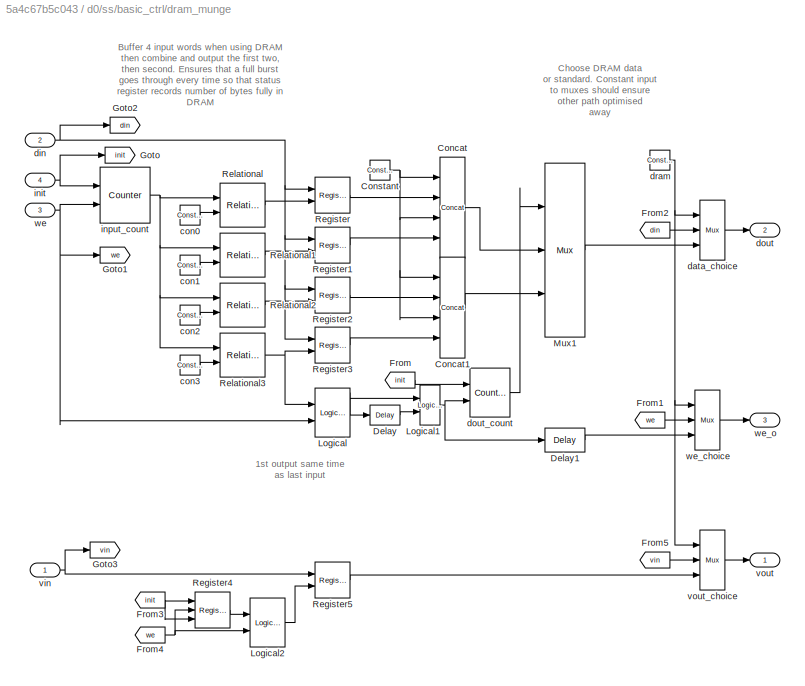
BLOCK [SubSystem] d0/ss/basic_ctrl/dram_munge
  Ports = [4, 3]
  RequestExecContextInheritance = off
BLOCK [Reference] d0/ss/basic_ctrl/dram_munge/Concat  REF=xbsIndex_r4/Concat
  Ports = [4, 1]
  SourceBlock = xbsIndex_r4/Concat
  SourceType = Xilinx Bus Concatenator Block
BLOCK [Reference] d0/ss/basic_ctrl/dram_munge/Concat1  REF=xbsIndex_r4/Concat
  Ports = [4, 1]
  SourceBlock = xbsIndex_r4/Concat
  SourceType = Xilinx Bus Concatenator Block
BLOCK [Reference] d0/ss/basic_ctrl/dram_munge/Constant  REF=xbsIndex_r4/Constant
  Ports = [0, 1]
  SourceBlock = xbsIndex_r4/Constant
  SourceType = Xilinx Constant Block Block
BLOCK [Reference] d0/ss/basic_ctrl/dram_munge/Delay  REF=xbsIndex_r4/Delay
  Ports = [1, 1]
  SourceBlock = xbsIndex_r4/Delay
  SourceType = Xilinx Delay Block
BLOCK [Reference] d0/ss/basic_ctrl/dram_munge/Delay1  REF=xbsIndex_r4/Delay
  Ports = [1, 1]
  SourceBlock = xbsIndex_r4/Delay
  SourceType = Xilinx Delay Block
BLOCK [From] d0/ss/basic_ctrl/dram_munge/From
  CloseFcn = tagdialog Close
  GotoTag = init
BLOCK [From] d0/ss/basic_ctrl/dram_munge/From1
  CloseFcn = tagdialog Close
  GotoTag = we
BLOCK [From] d0/ss/basic_ctrl/dram_munge/From2
  CloseFcn = tagdialog Close
  GotoTag = din
BLOCK [From] d0/ss/basic_ctrl/dram_munge/From3
  CloseFcn = tagdialog Close
  GotoTag = init
BLOCK [From] d0/ss/basic_ctrl/dram_munge/From4
  CloseFcn = tagdialog Close
  GotoTag = we
BLOCK [From] d0/ss/basic_ctrl/dram_munge/From5
  CloseFcn = tagdialog Close
  GotoTag = vin
BLOCK [Goto] d0/ss/basic_ctrl/dram_munge/Goto
  GotoTag = init
BLOCK [Goto] d0/ss/basic_ctrl/dram_munge/Goto1
  GotoTag = we
BLOCK [Goto] d0/ss/basic_ctrl/dram_munge/Goto2
  GotoTag = din
BLOCK [Goto] d0/ss/basic_ctrl/dram_munge/Goto3
  GotoTag = vin
BLOCK [Reference] d0/ss/basic_ctrl/dram_munge/Logical  REF=xbsIndex_r4/Logical
  Ports = [2, 1]
  SourceBlock = xbsIndex_r4/Logical
  SourceType = Xilinx Logical Block Block
BLOCK [Reference] d0/ss/basic_ctrl/dram_munge/Logical1  REF=xbsIndex_r4/Logical
  Ports = [2, 1]
  SourceBlock = xbsIndex_r4/Logical
  SourceType = Xilinx Logical Block Block
BLOCK [Reference] d0/ss/basic_ctrl/dram_munge/Logical2  REF=xbsIndex_r4/Logical
  Ports = [2, 1]
  SourceBlock = xbsIndex_r4/Logical
  SourceType = Xilinx Logical Block Block
BLOCK [Reference] d0/ss/basic_ctrl/dram_munge/Mux1  REF=xbsIndex_r4/Mux
  Ports = [3, 1]
  SourceBlock = xbsIndex_r4/Mux
  SourceType = Xilinx Bus Multiplexer Block
BLOCK [Reference] d0/ss/basic_ctrl/dram_munge/Register  REF=xbsIndex_r4/Register
  Ports = [2, 1]
  SourceBlock = xbsIndex_r4/Register
  SourceType = Xilinx Register Block
BLOCK [Reference] d0/ss/basic_ctrl/dram_munge/Register1  REF=xbsIndex_r4/Register
  Ports = [2, 1]
  SourceBlock = xbsIndex_r4/Register
  SourceType = Xilinx Register Block
BLOCK [Reference] d0/ss/basic_ctrl/dram_munge/Register2  REF=xbsIndex_r4/Register
  Ports = [2, 1]
  SourceBlock = xbsIndex_r4/Register
  SourceType = Xilinx Register Block
BLOCK [Reference] d0/ss/basic_ctrl/dram_munge/Register3  REF=xbsIndex_r4/Register
  Ports = [2, 1]
  SourceBlock = xbsIndex_r4/Register
  SourceType = Xilinx Register Block
BLOCK [Reference] d0/ss/basic_ctrl/dram_munge/Register4  REF=xbsIndex_r4/Register
  Ports = [3, 1]
  SourceBlock = xbsIndex_r4/Register
  SourceType = Xilinx Register Block
BLOCK [Reference] d0/ss/basic_ctrl/dram_munge/Register5  REF=xbsIndex_r4/Register
  Ports = [2, 1]
  SourceBlock = xbsIndex_r4/Register
  SourceType = Xilinx Register Block
BLOCK [Reference] d0/ss/basic_ctrl/dram_munge/Relational  REF=xbsIndex_r4/Relational
  Ports = [2, 1]
  SourceBlock = xbsIndex_r4/Relational
  SourceType = Xilinx Arithmetic Relational Operator Block
BLOCK [Reference] d0/ss/basic_ctrl/dram_munge/Relational1  REF=xbsIndex_r4/Relational
  Ports = [2, 1]
  SourceBlock = xbsIndex_r4/Relational
  SourceType = Xilinx Arithmetic Relational Operator Block
BLOCK [Reference] d0/ss/basic_ctrl/dram_munge/Relational2  REF=xbsIndex_r4/Relational
  Ports = [2, 1]
  SourceBlock = xbsIndex_r4/Relational
  SourceType = Xilinx Arithmetic Relational Operator Block
BLOCK [Reference] d0/ss/basic_ctrl/dram_munge/Relational3  REF=xbsIndex_r4/Relational
  Ports = [2, 1]
  SourceBlock = xbsIndex_r4/Relational
  SourceType = Xilinx Arithmetic Relational Operator Block
BLOCK [Reference] d0/ss/basic_ctrl/dram_munge/con0  REF=xbsIndex_r4/Constant
  Ports = [0, 1]
  SourceBlock = xbsIndex_r4/Constant
  SourceType = Xilinx Constant Block Block
BLOCK [Reference] d0/ss/basic_ctrl/dram_munge/con1  REF=xbsIndex_r4/Constant
  Ports = [0, 1]
  SourceBlock = xbsIndex_r4/Constant
  SourceType = Xilinx Constant Block Block
BLOCK [Reference] d0/ss/basic_ctrl/dram_munge/con2  REF=xbsIndex_r4/Constant
  Ports = [0, 1]
  SourceBlock = xbsIndex_r4/Constant
  SourceType = Xilinx Constant Block Block
BLOCK [Reference] d0/ss/basic_ctrl/dram_munge/con3  REF=xbsIndex_r4/Constant
  Ports = [0, 1]
  SourceBlock = xbsIndex_r4/Constant
  SourceType = Xilinx Constant Block Block
BLOCK [Reference] d0/ss/basic_ctrl/dram_munge/data_choice  REF=xbsIndex_r4/Mux
  Ports = [3, 1]
  SourceBlock = xbsIndex_r4/Mux
  SourceType = Xilinx Bus Multiplexer Block
BLOCK [Inport] d0/ss/basic_ctrl/dram_munge/din
  IconDisplay = Port number
  Port = 2
BLOCK [Outport] d0/ss/basic_ctrl/dram_munge/dout
  IconDisplay = Port number
  Port = 2
BLOCK [Reference] d0/ss/basic_ctrl/dram_munge/dout_count  REF=xbsIndex_r4/Counter
  Ports = [2, 1]
  SourceBlock = xbsIndex_r4/Counter
  SourceType = Xilinx Counter Block
BLOCK [Reference] d0/ss/basic_ctrl/dram_munge/dram  REF=xbsIndex_r4/Constant
  Ports = [0, 1]
  SourceBlock = xbsIndex_r4/Constant
  SourceType = Xilinx Constant Block Block
BLOCK [Inport] d0/ss/basic_ctrl/dram_munge/init
  IconDisplay = Port number
  Port = 4
BLOCK [Reference] d0/ss/basic_ctrl/dram_munge/input_count  REF=xbsIndex_r4/Counter
  Ports = [2, 1]
  SourceBlock = xbsIndex_r4/Counter
  SourceType = Xilinx Counter Block
BLOCK [Inport] d0/ss/basic_ctrl/dram_munge/vin
  IconDisplay = Port number
BLOCK [Outport] d0/ss/basic_ctrl/dram_munge/vout
  IconDisplay = Port number
BLOCK [Reference] d0/ss/basic_ctrl/dram_munge/vout_choice  REF=xbsIndex_r4/Mux
  Ports = [3, 1]
  SourceBlock = xbsIndex_r4/Mux
  SourceType = Xilinx Bus Multiplexer Block
BLOCK [Inport] d0/ss/basic_ctrl/dram_munge/we
  IconDisplay = Port number
  Port = 3
BLOCK [Reference] d0/ss/basic_ctrl/dram_munge/we_choice  REF=xbsIndex_r4/Mux
  Ports = [3, 1]
  SourceBlock = xbsIndex_r4/Mux
  SourceType = Xilinx Bus Multiplexer Block
BLOCK [Outport] d0/ss/basic_ctrl/dram_munge/we_o
  IconDisplay = Port number
  Port = 3
BLOCK [Reference] d0/ss/basic_ctrl/edge_detect  REF=casper_library_misc/edge_detect  (lib defined in mdl_357510c33b49, mdl_57b5f564ae26, +4 more)
  AttributesFormatString = rising edges\nactive high
  Ports = [1, 1]
  SourceBlock = casper_library_misc/edge_detect
  SourceProductName = CASPER DSP Blockset
  SourceType = edge_detect
  UserDataPersistent = on
BLOCK [Reference] d0/ss/basic_ctrl/enable  REF=xbsIndex_r4/Slice
  Ports = [1, 1]
  SourceBlock = xbsIndex_r4/Slice
  SourceType = Xilinx Bit Slice Extractor Block
BLOCK [Outport] d0/ss/basic_ctrl/go
  IconDisplay = Port number
  Port = 4
BLOCK [Outport] d0/ss/basic_ctrl/init
  IconDisplay = Port number
  Port = 6
BLOCK [Outport] d0/ss/basic_ctrl/stop
  IconDisplay = Port number
  Port = 5
BLOCK [Inport] d0/ss/basic_ctrl/stopi
  IconDisplay = Port number
  Port = 6
BLOCK [Inport] d0/ss/basic_ctrl/trig
  IconDisplay = Port number
  Port = 4
BLOCK [Reference] d0/ss/basic_ctrl/trig_src  REF=xbsIndex_r4/Slice
  Ports = [1, 1]
  SourceBlock = xbsIndex_r4/Slice
  SourceType = Xilinx Bit Slice Extractor Block
BLOCK [Reference] d0/ss/basic_ctrl/valid_src  REF=xbsIndex_r4/Slice
  Ports = [1, 1]
  SourceBlock = xbsIndex_r4/Slice
  SourceType = Xilinx Bit Slice Extractor Block
BLOCK [Inport] d0/ss/basic_ctrl/vin
  IconDisplay = Port number
BLOCK [Outport] d0/ss/basic_ctrl/vout
  IconDisplay = Port number
BLOCK [Inport] d0/ss/basic_ctrl/we
  IconDisplay = Port number
  Port = 3
BLOCK [Outport] d0/ss/basic_ctrl/we_o
  IconDisplay = Port number
  Port = 3
BLOCK [SubSystem] d0/ss/bram
  AncestorBlock = xps_library/Memory/shared_bram
  Ports = [3, 1]
  RequestExecContextInheritance = off
  Tag = xps:bram
BLOCK [Terminator] d0/ss/bram/Terminator
BLOCK [Terminator] d0/ss/bram/Terminator1
BLOCK [Terminator] d0/ss/bram/Terminator2
BLOCK [Inport] d0/ss/bram/addr
  IconDisplay = Port number
BLOCK [SubSystem] d0/ss/bram/calc_add
  Ports = [1, 1]
  RequestExecContextInheritance = off
BLOCK [Reference] d0/ss/bram/calc_add/add_sub  REF=xbsIndex_r4/AddSub
  Ports = [2, 1]
  SourceBlock = xbsIndex_r4/AddSub
  SourceType = Xilinx Adder/Subtracter Block
BLOCK [Reference] d0/ss/bram/calc_add/concat  REF=xbsIndex_r4/Concat
  Ports = [2, 1]
  SourceBlock = xbsIndex_r4/Concat
  SourceType = Xilinx Bus Concatenator Block
BLOCK [Reference] d0/ss/bram/calc_add/const  REF=xbsIndex_r4/Constant
  Ports = [0, 1]
  SourceBlock = xbsIndex_r4/Constant
  SourceType = Xilinx Constant Block Block
BLOCK [Reference] d0/ss/bram/calc_add/convert_addr  REF=xbsIndex_r4/Convert
  Ports = [1, 1]
  SourceBlock = xbsIndex_r4/Convert
  SourceType = Xilinx Type Converter Block
BLOCK [Inport] d0/ss/bram/calc_add/in
  IconDisplay = Port number
BLOCK [Reference] d0/ss/bram/calc_add/lsw  REF=xbsIndex_r4/Slice
  Ports = [1, 1]
  SourceBlock = xbsIndex_r4/Slice
  SourceType = Xilinx Bit Slice Extractor Block
BLOCK [Reference] d0/ss/bram/calc_add/manipulate  REF=xbsIndex_r4/Constant
  Ports = [0, 1]
  SourceBlock = xbsIndex_r4/Constant
  SourceType = Xilinx Constant Block Block
BLOCK [Reference] d0/ss/bram/calc_add/msw  REF=xbsIndex_r4/Slice
  Ports = [1, 1]
  SourceBlock = xbsIndex_r4/Slice
  SourceType = Xilinx Bit Slice Extractor Block
BLOCK [Reference] d0/ss/bram/calc_add/mux  REF=xbsIndex_r4/Mux
  Ports = [3, 1]
  SourceBlock = xbsIndex_r4/Mux
  SourceType = Xilinx Bus Multiplexer Block
BLOCK [Outport] d0/ss/bram/calc_add/out
  IconDisplay = Port number
BLOCK [Reference] d0/ss/bram/convert_addr  REF=xbsIndex_r4/Convert
  Ports = [1, 1]
  SourceBlock = xbsIndex_r4/Convert
  SourceType = Xilinx Type Converter Block
BLOCK [Reference] d0/ss/bram/convert_din1  REF=xbsIndex_r4/Convert
  Ports = [1, 1]
  SourceBlock = xbsIndex_r4/Convert
  SourceType = Xilinx Type Converter Block
BLOCK [Reference] d0/ss/bram/convert_we  REF=xbsIndex_r4/Convert
  Ports = [1, 1]
  SourceBlock = xbsIndex_r4/Convert
  SourceType = Xilinx Type Converter Block
BLOCK [Inport] d0/ss/bram/data_in
  IconDisplay = Port number
  Port = 2
BLOCK [Outport] d0/ss/bram/data_out
  IconDisplay = Port number
BLOCK [SubSystem] d0/ss/bram/munge_in
  AncestorBlock = casper_library_flow_control/munge
  AttributesFormatString = split:[32 32 32 32]\njoin:[3 2 1 0]\nUnsigned [128,0]
  Ports = [1, 1]
  RequestExecContextInheritance = off
  UserDataPersistent = on
BLOCK [Inport] d0/ss/bram/munge_in/din
  IconDisplay = Port number
BLOCK [Outport] d0/ss/bram/munge_in/dout
  IconDisplay = Port number
BLOCK [SubSystem] d0/ss/bram/munge_in/join
  AncestorBlock = casper_library_flow_control/bus_create
  Ports = [4, 1]
  RequestExecContextInheritance = off
  UserDataPersistent = on
BLOCK [Outport] d0/ss/bram/munge_in/join/bus_out
  IconDisplay = Port number
BLOCK [Reference] d0/ss/bram/munge_in/join/concatenate  REF=xbsIndex_r4/Concat
  Ports = [4, 1]
  SourceBlock = xbsIndex_r4/Concat
  SourceType = Xilinx Bus Concatenator Block
BLOCK [Inport] d0/ss/bram/munge_in/join/in1
  IconDisplay = Port number
BLOCK [Inport] d0/ss/bram/munge_in/join/in2
  IconDisplay = Port number
  Port = 2
BLOCK [Inport] d0/ss/bram/munge_in/join/in3
  IconDisplay = Port number
  Port = 3
BLOCK [Inport] d0/ss/bram/munge_in/join/in4
  IconDisplay = Port number
  Port = 4
BLOCK [Reference] d0/ss/bram/munge_in/join/reinterpret1  REF=xbsIndex_r4/Reinterpret
  Ports = [1, 1]
  SourceBlock = xbsIndex_r4/Reinterpret
  SourceType = Xilinx Type Reinterpreter Block
BLOCK [Reference] d0/ss/bram/munge_in/join/reinterpret2  REF=xbsIndex_r4/Reinterpret
  Ports = [1, 1]
  SourceBlock = xbsIndex_r4/Reinterpret
  SourceType = Xilinx Type Reinterpreter Block
BLOCK [Reference] d0/ss/bram/munge_in/join/reinterpret3  REF=xbsIndex_r4/Reinterpret
  Ports = [1, 1]
  SourceBlock = xbsIndex_r4/Reinterpret
  SourceType = Xilinx Type Reinterpreter Block
BLOCK [Reference] d0/ss/bram/munge_in/join/reinterpret4  REF=xbsIndex_r4/Reinterpret
  Ports = [1, 1]
  SourceBlock = xbsIndex_r4/Reinterpret
  SourceType = Xilinx Type Reinterpreter Block
BLOCK [Reference] d0/ss/bram/munge_in/reinterpret  REF=xbsIndex_r4/Reinterpret
  Ports = [1, 1]
  SourceBlock = xbsIndex_r4/Reinterpret
  SourceType = Xilinx Type Reinterpreter Block
BLOCK [Reference] d0/ss/bram/munge_in/reinterpret_out  REF=xbsIndex_r4/Reinterpret
  Ports = [1, 1]
  SourceBlock = xbsIndex_r4/Reinterpret
  SourceType = Xilinx Type Reinterpreter Block
BLOCK [SubSystem] d0/ss/bram/munge_in/split
  AncestorBlock = casper_library_flow_control/bus_expand
  AttributesFormatString = 4 outputs
  Ports = [1, 4]
  RequestExecContextInheritance = off
  UserDataPersistent = on
BLOCK [Inport] d0/ss/bram/munge_in/split/bus_in
  IconDisplay = Port number
BLOCK [Outport] d0/ss/bram/munge_in/split/lsb_out1
  IconDisplay = Port number
  Port = 4
BLOCK [Outport] d0/ss/bram/munge_in/split/msb_out4
  IconDisplay = Port number
BLOCK [Outport] d0/ss/bram/munge_in/split/out2
  IconDisplay = Port number
  Port = 3
BLOCK [Outport] d0/ss/bram/munge_in/split/out3
  IconDisplay = Port number
  Port = 2
BLOCK [Reference] d0/ss/bram/munge_in/split/reinterpret1  REF=xbsIndex_r4/Reinterpret
  Ports = [1, 1]
  SourceBlock = xbsIndex_r4/Reinterpret
  SourceType = Xilinx Type Reinterpreter Block
BLOCK [Reference] d0/ss/bram/munge_in/split/reinterpret2  REF=xbsIndex_r4/Reinterpret
  Ports = [1, 1]
  SourceBlock = xbsIndex_r4/Reinterpret
  SourceType = Xilinx Type Reinterpreter Block
BLOCK [Reference] d0/ss/bram/munge_in/split/reinterpret3  REF=xbsIndex_r4/Reinterpret
  Ports = [1, 1]
  SourceBlock = xbsIndex_r4/Reinterpret
  SourceType = Xilinx Type Reinterpreter Block
BLOCK [Reference] d0/ss/bram/munge_in/split/reinterpret4  REF=xbsIndex_r4/Reinterpret
  Ports = [1, 1]
  SourceBlock = xbsIndex_r4/Reinterpret
  SourceType = Xilinx Type Reinterpreter Block
BLOCK [Reference] d0/ss/bram/munge_in/split/slice1  REF=xbsIndex_r4/Slice
  Ports = [1, 1]
  SourceBlock = xbsIndex_r4/Slice
  SourceType = Xilinx Bit Slice Extractor Block
BLOCK [Reference] d0/ss/bram/munge_in/split/slice2  REF=xbsIndex_r4/Slice
  Ports = [1, 1]
  SourceBlock = xbsIndex_r4/Slice
  SourceType = Xilinx Bit Slice Extractor Block
BLOCK [Reference] d0/ss/bram/munge_in/split/slice3  REF=xbsIndex_r4/Slice
  Ports = [1, 1]
  SourceBlock = xbsIndex_r4/Slice
  SourceType = Xilinx Bit Slice Extractor Block
BLOCK [Reference] d0/ss/bram/munge_in/split/slice4  REF=xbsIndex_r4/Slice
  Ports = [1, 1]
  SourceBlock = xbsIndex_r4/Slice
  SourceType = Xilinx Bit Slice Extractor Block
BLOCK [SubSystem] d0/ss/bram/munge_out
  AncestorBlock = casper_library_flow_control/munge
  AttributesFormatString = split:[32 32 32 32]\njoin:[3 2 1 0]\nUnsigned [128,0]
  Ports = [1, 1]
  RequestExecContextInheritance = off
  UserDataPersistent = on
BLOCK [Inport] d0/ss/bram/munge_out/din
  IconDisplay = Port number
BLOCK [Outport] d0/ss/bram/munge_out/dout
  IconDisplay = Port number
BLOCK [SubSystem] d0/ss/bram/munge_out/join
  AncestorBlock = casper_library_flow_control/bus_create
  Ports = [4, 1]
  RequestExecContextInheritance = off
  UserDataPersistent = on
BLOCK [Outport] d0/ss/bram/munge_out/join/bus_out
  IconDisplay = Port number
BLOCK [Reference] d0/ss/bram/munge_out/join/concatenate  REF=xbsIndex_r4/Concat
  Ports = [4, 1]
  SourceBlock = xbsIndex_r4/Concat
  SourceType = Xilinx Bus Concatenator Block
BLOCK [Inport] d0/ss/bram/munge_out/join/in1
  IconDisplay = Port number
BLOCK [Inport] d0/ss/bram/munge_out/join/in2
  IconDisplay = Port number
  Port = 2
BLOCK [Inport] d0/ss/bram/munge_out/join/in3
  IconDisplay = Port number
  Port = 3
BLOCK [Inport] d0/ss/bram/munge_out/join/in4
  IconDisplay = Port number
  Port = 4
BLOCK [Reference] d0/ss/bram/munge_out/join/reinterpret1  REF=xbsIndex_r4/Reinterpret
  Ports = [1, 1]
  SourceBlock = xbsIndex_r4/Reinterpret
  SourceType = Xilinx Type Reinterpreter Block
BLOCK [Reference] d0/ss/bram/munge_out/join/reinterpret2  REF=xbsIndex_r4/Reinterpret
  Ports = [1, 1]
  SourceBlock = xbsIndex_r4/Reinterpret
  SourceType = Xilinx Type Reinterpreter Block
BLOCK [Reference] d0/ss/bram/munge_out/join/reinterpret3  REF=xbsIndex_r4/Reinterpret
  Ports = [1, 1]
  SourceBlock = xbsIndex_r4/Reinterpret
  SourceType = Xilinx Type Reinterpreter Block
BLOCK [Reference] d0/ss/bram/munge_out/join/reinterpret4  REF=xbsIndex_r4/Reinterpret
  Ports = [1, 1]
  SourceBlock = xbsIndex_r4/Reinterpret
  SourceType = Xilinx Type Reinterpreter Block
BLOCK [Reference] d0/ss/bram/munge_out/reinterpret  REF=xbsIndex_r4/Reinterpret
  Ports = [1, 1]
  SourceBlock = xbsIndex_r4/Reinterpret
  SourceType = Xilinx Type Reinterpreter Block
BLOCK [Reference] d0/ss/bram/munge_out/reinterpret_out  REF=xbsIndex_r4/Reinterpret
  Ports = [1, 1]
  SourceBlock = xbsIndex_r4/Reinterpret
  SourceType = Xilinx Type Reinterpreter Block
BLOCK [SubSystem] d0/ss/bram/munge_out/split
  AncestorBlock = casper_library_flow_control/bus_expand
  AttributesFormatString = 4 outputs
  Ports = [1, 4]
  RequestExecContextInheritance = off
  UserDataPersistent = on
BLOCK [Inport] d0/ss/bram/munge_out/split/bus_in
  IconDisplay = Port number
BLOCK [Outport] d0/ss/bram/munge_out/split/lsb_out1
  IconDisplay = Port number
  Port = 4
BLOCK [Outport] d0/ss/bram/munge_out/split/msb_out4
  IconDisplay = Port number
BLOCK [Outport] d0/ss/bram/munge_out/split/out2
  IconDisplay = Port number
  Port = 3
BLOCK [Outport] d0/ss/bram/munge_out/split/out3
  IconDisplay = Port number
  Port = 2
BLOCK [Reference] d0/ss/bram/munge_out/split/reinterpret1  REF=xbsIndex_r4/Reinterpret
  Ports = [1, 1]
  SourceBlock = xbsIndex_r4/Reinterpret
  SourceType = Xilinx Type Reinterpreter Block
BLOCK [Reference] d0/ss/bram/munge_out/split/reinterpret2  REF=xbsIndex_r4/Reinterpret
  Ports = [1, 1]
  SourceBlock = xbsIndex_r4/Reinterpret
  SourceType = Xilinx Type Reinterpreter Block
BLOCK [Reference] d0/ss/bram/munge_out/split/reinterpret3  REF=xbsIndex_r4/Reinterpret
  Ports = [1, 1]
  SourceBlock = xbsIndex_r4/Reinterpret
  SourceType = Xilinx Type Reinterpreter Block
BLOCK [Reference] d0/ss/bram/munge_out/split/reinterpret4  REF=xbsIndex_r4/Reinterpret
  Ports = [1, 1]
  SourceBlock = xbsIndex_r4/Reinterpret
  SourceType = Xilinx Type Reinterpreter Block
BLOCK [Reference] d0/ss/bram/munge_out/split/slice1  REF=xbsIndex_r4/Slice
  Ports = [1, 1]
  SourceBlock = xbsIndex_r4/Slice
  SourceType = Xilinx Bit Slice Extractor Block
BLOCK [Reference] d0/ss/bram/munge_out/split/slice2  REF=xbsIndex_r4/Slice
  Ports = [1, 1]
  SourceBlock = xbsIndex_r4/Slice
  SourceType = Xilinx Bit Slice Extractor Block
BLOCK [Reference] d0/ss/bram/munge_out/split/slice3  REF=xbsIndex_r4/Slice
  Ports = [1, 1]
  SourceBlock = xbsIndex_r4/Slice
  SourceType = Xilinx Bit Slice Extractor Block
BLOCK [Reference] d0/ss/bram/munge_out/split/slice4  REF=xbsIndex_r4/Slice
  Ports = [1, 1]
  SourceBlock = xbsIndex_r4/Slice
  SourceType = Xilinx Bit Slice Extractor Block
BLOCK [SubSystem] d0/ss/bram/sim_mem
  Ports = [3, 1]
  RequestExecContextInheritance = off
BLOCK [DataTypeConversion] d0/ss/bram/sim_mem/Data Type Conversion
  OutDataTypeStr = single
  RndMeth = Floor
  SaturateOnIntegerOverflow = off
BLOCK [DataTypeConversion] d0/ss/bram/sim_mem/Data Type Conversion1
  OutDataTypeStr = double
  RndMeth = Floor
  SaturateOnIntegerOverflow = off
BLOCK [DataTypeConversion] d0/ss/bram/sim_mem/Data Type Conversion2
  OutDataTypeStr = boolean
  RndMeth = Floor
  SaturateOnIntegerOverflow = off
BLOCK [Inport] d0/ss/bram/sim_mem/addr
  IconDisplay = Port number
BLOCK [Inport] d0/ss/bram/sim_mem/data
  IconDisplay = Port number
  Port = 2
BLOCK [Outport] d0/ss/bram/sim_mem/data_out
  IconDisplay = Port number
BLOCK [M-S-Function] d0/ss/bram/sim_mem/sfunc
  FunctionName = shared_bram_sim_sfunc
  Parameters = depth_bits, latency, init_vals
  Ports = [3, 1]
BLOCK [Reference] d0/ss/bram/sim_mem/sim_addr  REF=xbsIndex_r4/Gateway Out
  Ports = [1, 1]
  SourceBlock = xbsIndex_r4/Gateway Out
  SourceType = Xilinx Gateway Out Block
BLOCK [Reference] d0/ss/bram/sim_mem/sim_data  REF=xbsIndex_r4/Gateway Out
  Ports = [1, 1]
  SourceBlock = xbsIndex_r4/Gateway Out
  SourceType = Xilinx Gateway Out Block
BLOCK [Reference] d0/ss/bram/sim_mem/sim_we  REF=xbsIndex_r4/Gateway Out
  Ports = [1, 1]
  SourceBlock = xbsIndex_r4/Gateway Out
  SourceType = Xilinx Gateway Out Block
BLOCK [Inport] d0/ss/bram/sim_mem/we
  IconDisplay = Port number
  Port = 3
BLOCK [Reference] d0/ss/bram/skarab_1gbe_rx_test_d0_ss_bram_addr  REF=xbsIndex_r4/Gateway Out
  Ports = [1, 1]
  SourceBlock = xbsIndex_r4/Gateway Out
  SourceType = Xilinx Gateway Out Block
BLOCK [Reference] d0/ss/bram/skarab_1gbe_rx_test_d0_ss_bram_data_in  REF=xbsIndex_r4/Gateway Out
  Ports = [1, 1]
  SourceBlock = xbsIndex_r4/Gateway Out
  SourceType = Xilinx Gateway Out Block
BLOCK [Reference] d0/ss/bram/skarab_1gbe_rx_test_d0_ss_bram_data_out  REF=xbsIndex_r4/Gateway In
  Ports = [1, 1]
  SourceBlock = xbsIndex_r4/Gateway In
  SourceType = Xilinx Gateway In Block
BLOCK [Reference] d0/ss/bram/skarab_1gbe_rx_test_d0_ss_bram_we  REF=xbsIndex_r4/Gateway Out
  Ports = [1, 1]
  SourceBlock = xbsIndex_r4/Gateway Out
  SourceType = Xilinx Gateway Out Block
BLOCK [Inport] d0/ss/bram/we
  IconDisplay = Port number
  Port = 3
BLOCK [Reference] d0/ss/cast  REF=xbsIndex_r4/Convert
  Ports = [1, 1]
  SourceBlock = xbsIndex_r4/Convert
  SourceType = Xilinx Type Converter Block
BLOCK [Reference] d0/ss/circ  REF=xbsIndex_r4/Constant
  Ports = [0, 1]
  SourceBlock = xbsIndex_r4/Constant
  SourceType = Xilinx Constant Block Block
BLOCK [Reference] d0/ss/circ_or  REF=xbsIndex_r4/Logical
  Ports = [2, 1]
  SourceBlock = xbsIndex_r4/Logical
  SourceType = Xilinx Logical Block Block
BLOCK [SubSystem] d0/ss/ctrl
  AncestorBlock = xps_library/Memory/software_register
  AttributesFormatString = 1input:uf32.0 = 32 bits
  Ports = [0, 1]
  RequestExecContextInheritance = off
  Tag = xps:sw_reg
BLOCK [DataTypeConversion] d0/ss/ctrl/convert1_1
  LockScale = on
  OutDataTypeStr = fixdt('ufix32_En0')
  RndMeth = Floor
  SaturateOnIntegerOverflow = off
BLOCK [DataTypeConversion] d0/ss/ctrl/convert2_1
  ConvertRealWorld = Stored Integer (SI)
  LockScale = on
  OutDataTypeStr = fixdt('ufix32_En0')
  RndMeth = Floor
  SaturateOnIntegerOverflow = off
BLOCK [Gain] d0/ss/ctrl/gain_1
  OutDataTypeStr = Inherit: Inherit via internal rule
  ParamDataTypeStr = Inherit: Inherit via internal rule
  SaturateOnIntegerOverflow = off
BLOCK [Outport] d0/ss/ctrl/in_reg
  IconDisplay = Port number
BLOCK [Reference] d0/ss/ctrl/io_delay  REF=xbsIndex_r4/Delay
  Ports = [1, 1]
  SourceBlock = xbsIndex_r4/Delay
  SourceType = Xilinx Delay Block
BLOCK [Reference] d0/ss/ctrl/reint1  REF=xbsIndex_r4/Reinterpret
  Ports = [1, 1]
  SourceBlock = xbsIndex_r4/Reinterpret
  SourceType = Xilinx Type Reinterpreter Block
BLOCK [Constant] d0/ss/ctrl/sim_1
  Value = 0
BLOCK [Reference] d0/ss/ctrl/skarab_1gbe_rx_test_d0_ss_ctrl_user_data_out  REF=xbsIndex_r4/Gateway In
  Ports = [1, 1]
  SourceBlock = xbsIndex_r4/Gateway In
  SourceType = Xilinx Gateway In Block
BLOCK [Reference] d0/ss/ctrl/slice_reg  REF=xbsIndex_r4/Slice
  Ports = [1, 1]
  SourceBlock = xbsIndex_r4/Slice
  SourceType = Xilinx Bit Slice Extractor Block
BLOCK [SubSystem] d0/ss/ctrl_combine
  AncestorBlock = casper_library_flow_control/bus_create
  Ports = [4, 1]
  RequestExecContextInheritance = off
  UserDataPersistent = on
BLOCK [Outport] d0/ss/ctrl_combine/bus_out
  IconDisplay = Port number
BLOCK [Reference] d0/ss/ctrl_combine/concatenate  REF=xbsIndex_r4/Concat
  Ports = [4, 1]
  SourceBlock = xbsIndex_r4/Concat
  SourceType = Xilinx Bus Concatenator Block
BLOCK [Inport] d0/ss/ctrl_combine/in1
  IconDisplay = Port number
BLOCK [Inport] d0/ss/ctrl_combine/in2
  IconDisplay = Port number
  Port = 2
BLOCK [Inport] d0/ss/ctrl_combine/in3
  IconDisplay = Port number
  Port = 3
BLOCK [Inport] d0/ss/ctrl_combine/in4
  IconDisplay = Port number
  Port = 4
BLOCK [Reference] d0/ss/ctrl_combine/reinterpret1  REF=xbsIndex_r4/Reinterpret
  Ports = [1, 1]
  SourceBlock = xbsIndex_r4/Reinterpret
  SourceType = Xilinx Type Reinterpreter Block
BLOCK [Reference] d0/ss/ctrl_combine/reinterpret2  REF=xbsIndex_r4/Reinterpret
  Ports = [1, 1]
  SourceBlock = xbsIndex_r4/Reinterpret
  SourceType = Xilinx Type Reinterpreter Block
BLOCK [Reference] d0/ss/ctrl_combine/reinterpret3  REF=xbsIndex_r4/Reinterpret
  Ports = [1, 1]
  SourceBlock = xbsIndex_r4/Reinterpret
  SourceType = Xilinx Type Reinterpreter Block
BLOCK [Reference] d0/ss/ctrl_combine/reinterpret4  REF=xbsIndex_r4/Reinterpret
  Ports = [1, 1]
  SourceBlock = xbsIndex_r4/Reinterpret
  SourceType = Xilinx Type Reinterpreter Block
BLOCK [SubSystem] d0/ss/ctrl_split
  AncestorBlock = casper_library_flow_control/bus_expand
  AttributesFormatString = 4 outputs: uf28.0,b,uf2.0,b,
  Ports = [1, 4]
  RequestExecContextInheritance = off
  UserDataPersistent = on
BLOCK [Inport] d0/ss/ctrl_split/bus_in
  IconDisplay = Port number
BLOCK [Outport] d0/ss/ctrl_split/lsb_out1
  IconDisplay = Port number
  Port = 4
BLOCK [Outport] d0/ss/ctrl_split/msb_out4
  IconDisplay = Port number
BLOCK [Outport] d0/ss/ctrl_split/out2
  IconDisplay = Port number
  Port = 3
BLOCK [Outport] d0/ss/ctrl_split/out3
  IconDisplay = Port number
  Port = 2
BLOCK [Reference] d0/ss/ctrl_split/reinterpret2  REF=xbsIndex_r4/Reinterpret
  Ports = [1, 1]
  SourceBlock = xbsIndex_r4/Reinterpret
  SourceType = Xilinx Type Reinterpreter Block
BLOCK [Reference] d0/ss/ctrl_split/reinterpret4  REF=xbsIndex_r4/Reinterpret
  Ports = [1, 1]
  SourceBlock = xbsIndex_r4/Reinterpret
  SourceType = Xilinx Type Reinterpreter Block
BLOCK [Reference] d0/ss/ctrl_split/slice1  REF=xbsIndex_r4/Slice
  Ports = [1, 1]
  SourceBlock = xbsIndex_r4/Slice
  SourceType = Xilinx Bit Slice Extractor Block
BLOCK [Reference] d0/ss/ctrl_split/slice2  REF=xbsIndex_r4/Slice
  Ports = [1, 1]
  SourceBlock = xbsIndex_r4/Slice
  SourceType = Xilinx Bit Slice Extractor Block
BLOCK [Reference] d0/ss/ctrl_split/slice3  REF=xbsIndex_r4/Slice
  Ports = [1, 1]
  SourceBlock = xbsIndex_r4/Slice
  SourceType = Xilinx Bit Slice Extractor Block
BLOCK [Reference] d0/ss/ctrl_split/slice4  REF=xbsIndex_r4/Slice
  Ports = [1, 1]
  SourceBlock = xbsIndex_r4/Slice
  SourceType = Xilinx Bit Slice Extractor Block
BLOCK [Reference] d0/ss/dat_del  REF=xbsIndex_r4/Delay
  Ports = [1, 1]
  SourceBlock = xbsIndex_r4/Delay
  SourceType = Xilinx Delay Block
BLOCK [Inport] d0/ss/din
  IconDisplay = Port number
BLOCK [Terminator] d0/ss/g_tr_en_cnt
BLOCK [Terminator] d0/ss/gbram
BLOCK [Goto] d0/ss/goto_ss_we1
  GotoTag = goto_107683228_we1
  TagVisibility = global
BLOCK [Goto] d0/ss/goto_ss_we2
  GotoTag = goto_107683228_we2
  TagVisibility = global
BLOCK [Reference] d0/ss/goto_ss_we2_const  REF=xbsIndex_r4/Constant
  Ports = [0, 1]
  SourceBlock = xbsIndex_r4/Constant
  SourceType = Xilinx Constant Block Block
BLOCK [Goto] d0/ss/goto_ss_we3
  GotoTag = goto_107683228_we3
  TagVisibility = global
BLOCK [Reference] d0/ss/goto_ss_we3_const  REF=xbsIndex_r4/Constant
  Ports = [0, 1]
  SourceBlock = xbsIndex_r4/Constant
  SourceType = Xilinx Constant Block Block
BLOCK [Goto] d0/ss/goto_ss_we4
  GotoTag = goto_107683228_we4
  TagVisibility = global
BLOCK [Terminator] d0/ss/gval
BLOCK [Reference] d0/ss/never  REF=xbsIndex_r4/Constant
  Ports = [0, 1]
  SourceBlock = xbsIndex_r4/Constant
  SourceType = Xilinx Constant Block Block
BLOCK [Reference] d0/ss/ri  REF=xbsIndex_r4/Reinterpret
  Ports = [1, 1]
  SourceBlock = xbsIndex_r4/Reinterpret
  SourceType = Xilinx Type Reinterpreter Block
BLOCK [SubSystem] d0/ss/status
  AncestorBlock = xps_library/Memory/software_register
  AttributesFormatString = 1output:uf32.0 = 32 bits
  Ports = [1]
  RequestExecContextInheritance = off
  Tag = xps:sw_reg
BLOCK [Reference] d0/ss/status/assert_reg  REF=xbsIndex_r4/Assert
  Ports = [1, 1]
  SourceBlock = xbsIndex_r4/Assert
  SourceType = Xilinx Assert Block
BLOCK [Reference] d0/ss/status/cast_gw  REF=xbsIndex_r4/Convert
  Ports = [1, 1]
  SourceBlock = xbsIndex_r4/Convert
  SourceType = Xilinx Type Converter Block
BLOCK [Reference] d0/ss/status/io_delay  REF=xbsIndex_r4/Delay
  Ports = [1, 1]
  SourceBlock = xbsIndex_r4/Delay
  SourceType = Xilinx Delay Block
BLOCK [Inport] d0/ss/status/out_reg
  IconDisplay = Port number
BLOCK [Reference] d0/ss/status/reint1  REF=xbsIndex_r4/Reinterpret
  Ports = [1, 1]
  SourceBlock = xbsIndex_r4/Reinterpret
  SourceType = Xilinx Type Reinterpreter Block
BLOCK [Terminator] d0/ss/status/sim_out
BLOCK [Reference] d0/ss/status/skarab_1gbe_rx_test_d0_ss_status_user_data_in  REF=xbsIndex_r4/Gateway Out
  Ports = [1, 1]
  SourceBlock = xbsIndex_r4/Gateway Out
  SourceType = Xilinx Gateway Out Block
BLOCK [Inport] d0/ss/trig
  IconDisplay = Port number
  Port = 3
BLOCK [Reference] d0/ss/vin_const  REF=xbsIndex_r4/Constant
  Ports = [0, 1]
  SourceBlock = xbsIndex_r4/Constant
  SourceType = Xilinx Constant Block Block
BLOCK [Inport] d0/ss/we
  IconDisplay = Port number
  Port = 2
BLOCK [Reference] d0/ss/we_del  REF=xbsIndex_r4/Delay
  Ports = [1, 1]
  SourceBlock = xbsIndex_r4/Delay
  SourceType = Xilinx Delay Block
BLOCK [Inport] d0/trig
  IconDisplay = Port number
  Port = 5
BLOCK [Inport] d0/we
  IconDisplay = Port number
  Port = 4
BLOCK [SubSystem] d1
  AncestorBlock = casper_library_scopes/bitfield_snapshot
  AttributesFormatString = snap(4):uf32.0,uf32.0,uf48.0,uf16.0 = 128 bits\n128 wide, 8192 deep\ndebugID: 107713019
  Ports = [6, 1]
  RequestExecContextInheritance = off
  Tag = casper:bitsnap
  UserDataPersistent = on
BLOCK [Outport] d1/arm_out
  IconDisplay = Port number
BLOCK [Reference] d1/assert_ctr1  REF=xbsIndex_r4/Assert
  Ports = [1, 1]
  SourceBlock = xbsIndex_r4/Assert
  SourceType = Xilinx Assert Block
BLOCK [Reference] d1/assert_marker  REF=xbsIndex_r4/Assert
  Ports = [1, 1]
  SourceBlock = xbsIndex_r4/Assert
  SourceType = Xilinx Assert Block
BLOCK [Reference] d1/assert_ramp1  REF=xbsIndex_r4/Assert
  Ports = [1, 1]
  SourceBlock = xbsIndex_r4/Assert
  SourceType = Xilinx Assert Block
BLOCK [Reference] d1/assert_walking1  REF=xbsIndex_r4/Assert
  Ports = [1, 1]
  SourceBlock = xbsIndex_r4/Assert
  SourceType = Xilinx Assert Block
BLOCK [SubSystem] d1/buscreate
  AncestorBlock = casper_library_flow_control/bus_create
  Ports = [4, 1]
  RequestExecContextInheritance = off
  UserDataPersistent = on
BLOCK [Outport] d1/buscreate/bus_out
  IconDisplay = Port number
BLOCK [Reference] d1/buscreate/concatenate  REF=xbsIndex_r4/Concat
  Ports = [4, 1]
  SourceBlock = xbsIndex_r4/Concat
  SourceType = Xilinx Bus Concatenator Block
BLOCK [Inport] d1/buscreate/in1
  IconDisplay = Port number
BLOCK [Inport] d1/buscreate/in2
  IconDisplay = Port number
  Port = 2
BLOCK [Inport] d1/buscreate/in3
  IconDisplay = Port number
  Port = 3
BLOCK [Inport] d1/buscreate/in4
  IconDisplay = Port number
  Port = 4
BLOCK [Reference] d1/buscreate/reinterpret1  REF=xbsIndex_r4/Reinterpret
  Ports = [1, 1]
  SourceBlock = xbsIndex_r4/Reinterpret
  SourceType = Xilinx Type Reinterpreter Block
BLOCK [Reference] d1/buscreate/reinterpret2  REF=xbsIndex_r4/Reinterpret
  Ports = [1, 1]
  SourceBlock = xbsIndex_r4/Reinterpret
  SourceType = Xilinx Type Reinterpreter Block
BLOCK [Reference] d1/buscreate/reinterpret3  REF=xbsIndex_r4/Reinterpret
  Ports = [1, 1]
  SourceBlock = xbsIndex_r4/Reinterpret
  SourceType = Xilinx Type Reinterpreter Block
BLOCK [Reference] d1/buscreate/reinterpret4  REF=xbsIndex_r4/Reinterpret
  Ports = [1, 1]
  SourceBlock = xbsIndex_r4/Reinterpret
  SourceType = Xilinx Type Reinterpreter Block
BLOCK [Inport] d1/in_ctr1
  IconDisplay = Port number
BLOCK [Inport] d1/in_marker
  IconDisplay = Port number
  Port = 4
BLOCK [Inport] d1/in_ramp1
  IconDisplay = Port number
  Port = 2
BLOCK [Inport] d1/in_walking1
  IconDisplay = Port number
  Port = 3
BLOCK [SubSystem] d1/ss
  AncestorBlock = casper_library_scopes/snapshot
  AttributesFormatString = 128 wide, 8192 deep\ndebugID: 111015333
  Ports = [3, 1]
  RequestExecContextInheritance = off
  Tag = casper:snapshot
  UserDataPersistent = on
BLOCK [Reference] d1/ss/add_del  REF=xbsIndex_r4/Delay
  Ports = [1, 1]
  SourceBlock = xbsIndex_r4/Delay
  SourceType = Xilinx Delay Block
BLOCK [SubSystem] d1/ss/add_gen
  AncestorBlock = casper_library_scopes/snapshot/add_gen
  Ports = [6, 7]
  RequestExecContextInheritance = off
BLOCK [Reference] d1/ss/add_gen/Concat  REF=xbsIndex_r4/Concat
  Ports = [3, 1]
  SourceBlock = xbsIndex_r4/Concat
  SourceType = Xilinx Bus Concatenator Block
BLOCK [Reference] d1/ss/add_gen/Convert  REF=xbsIndex_r4/Convert
  Ports = [1, 1]
  SourceBlock = xbsIndex_r4/Convert
  SourceType = Xilinx Type Converter Block
BLOCK [Reference] d1/ss/add_gen/Delay  REF=xbsIndex_r4/Delay
  Ports = [1, 1]
  SourceBlock = xbsIndex_r4/Delay
  SourceType = Xilinx Delay Block
BLOCK [Reference] d1/ss/add_gen/Delay1  REF=xbsIndex_r4/Delay
  Ports = [1, 1]
  SourceBlock = xbsIndex_r4/Delay
  SourceType = Xilinx Delay Block
BLOCK [Reference] d1/ss/add_gen/Delay2  REF=xbsIndex_r4/Delay
  Ports = [1, 1]
  SourceBlock = xbsIndex_r4/Delay
  SourceType = Xilinx Delay Block
BLOCK [Reference] d1/ss/add_gen/Delay3  REF=xbsIndex_r4/Delay
  Ports = [1, 1]
  SourceBlock = xbsIndex_r4/Delay
  SourceType = Xilinx Delay Block
BLOCK [Reference] d1/ss/add_gen/Delay4  REF=xbsIndex_r4/Delay
  Ports = [1, 1]
  SourceBlock = xbsIndex_r4/Delay
  SourceType = Xilinx Delay Block
BLOCK [Reference] d1/ss/add_gen/Delay5  REF=xbsIndex_r4/Delay
  Ports = [1, 1]
  SourceBlock = xbsIndex_r4/Delay
  SourceType = Xilinx Delay Block
BLOCK [Reference] d1/ss/add_gen/Delay6  REF=xbsIndex_r4/Delay
  Ports = [1, 1]
  SourceBlock = xbsIndex_r4/Delay
  SourceType = Xilinx Delay Block
BLOCK [Reference] d1/ss/add_gen/Delay7  REF=xbsIndex_r4/Delay
  Ports = [1, 1]
  SourceBlock = xbsIndex_r4/Delay
  SourceType = Xilinx Delay Block
BLOCK [Reference] d1/ss/add_gen/Inverter  REF=xbsIndex_r4/Inverter
  Ports = [1, 1]
  SourceBlock = xbsIndex_r4/Inverter
  SourceType = Xilinx Inverter Block
BLOCK [Reference] d1/ss/add_gen/Inverter1  REF=xbsIndex_r4/Inverter
  Ports = [1, 1]
  SourceBlock = xbsIndex_r4/Inverter
  SourceType = Xilinx Inverter Block
BLOCK [Reference] d1/ss/add_gen/Logical1  REF=xbsIndex_r4/Logical
  Ports = [2, 1]
  SourceBlock = xbsIndex_r4/Logical
  SourceType = Xilinx Logical Block Block
BLOCK [Reference] d1/ss/add_gen/Logical2  REF=xbsIndex_r4/Logical
  Ports = [2, 1]
  SourceBlock = xbsIndex_r4/Logical
  SourceType = Xilinx Logical Block Block
BLOCK [Reference] d1/ss/add_gen/Logical4  REF=xbsIndex_r4/Logical
  Ports = [2, 1]
  SourceBlock = xbsIndex_r4/Logical
  SourceType = Xilinx Logical Block Block
BLOCK [Reference] d1/ss/add_gen/Logical6  REF=xbsIndex_r4/Logical
  Ports = [3, 1]
  SourceBlock = xbsIndex_r4/Logical
  SourceType = Xilinx Logical Block Block
BLOCK [Reference] d1/ss/add_gen/Register3  REF=xbsIndex_r4/Register
  Ports = [3, 1]
  SourceBlock = xbsIndex_r4/Register
  SourceType = Xilinx Register Block
BLOCK [Reference] d1/ss/add_gen/Register4  REF=xbsIndex_r4/Register
  Ports = [2, 1]
  SourceBlock = xbsIndex_r4/Register
  SourceType = Xilinx Register Block
BLOCK [Reference] d1/ss/add_gen/Register5  REF=xbsIndex_r4/Register
  Ports = [3, 1]
  SourceBlock = xbsIndex_r4/Register
  SourceType = Xilinx Register Block
BLOCK [Reference] d1/ss/add_gen/Shift  REF=xbsIndex_r4/Shift
  Ports = [1, 1]
  SourceBlock = xbsIndex_r4/Shift
  SourceType = Xilinx Binary Shift Operator Block
BLOCK [Outport] d1/ss/add_gen/add
  IconDisplay = Port number
  Port = 2
BLOCK [Reference] d1/ss/add_gen/add_gen  REF=xbsIndex_r4/Counter
  Ports = [2, 1]
  SourceBlock = xbsIndex_r4/Counter
  SourceType = Xilinx Counter Block
BLOCK [Inport] d1/ss/add_gen/cont
  IconDisplay = Port number
  Port = 5
BLOCK [Inport] d1/ss/add_gen/din
  IconDisplay = Port number
  Port = 2
BLOCK [Outport] d1/ss/add_gen/done
  IconDisplay = Port number
  Port = 7
BLOCK [Outport] d1/ss/add_gen/dout
  IconDisplay = Port number
  Port = 3
BLOCK [SubSystem] d1/ss/add_gen/edge_detect
  AncestorBlock = casper_library_misc/edge_detect
  AttributesFormatString = both edges\nactive high
  Ports = [1, 1]
  RequestExecContextInheritance = off
  UserDataPersistent = on
BLOCK [Reference] d1/ss/add_gen/edge_detect/Delay  REF=xbsIndex_r4/Delay
  Ports = [1, 1]
  SourceBlock = xbsIndex_r4/Delay
  SourceType = Xilinx Delay Block
BLOCK [Reference] d1/ss/add_gen/edge_detect/Inverter  REF=xbsIndex_r4/Inverter
  Ports = [1, 1]
  SourceBlock = xbsIndex_r4/Inverter
  SourceType = Xilinx Inverter Block
BLOCK [Reference] d1/ss/add_gen/edge_detect/edge_op  REF=xbsIndex_r4/Logical
  Ports = [2, 1]
  SourceBlock = xbsIndex_r4/Logical
  SourceType = Xilinx Logical Block Block
BLOCK [Inport] d1/ss/add_gen/edge_detect/in
  IconDisplay = Port number
BLOCK [Outport] d1/ss/add_gen/edge_detect/out
  IconDisplay = Port number
BLOCK [SubSystem] d1/ss/add_gen/edge_detect1
  AncestorBlock = casper_library_scopes/snapshot/add_gen/edge_detect
  AttributesFormatString = both edges\nactive high
  Ports = [1, 1]
  RequestExecContextInheritance = off
  UserDataPersistent = on
BLOCK [Reference] d1/ss/add_gen/edge_detect1/Delay  REF=xbsIndex_r4/Delay
  Ports = [1, 1]
  SourceBlock = xbsIndex_r4/Delay
  SourceType = Xilinx Delay Block
BLOCK [Reference] d1/ss/add_gen/edge_detect1/Inverter  REF=xbsIndex_r4/Inverter
  Ports = [1, 1]
  SourceBlock = xbsIndex_r4/Inverter
  SourceType = Xilinx Inverter Block
BLOCK [Reference] d1/ss/add_gen/edge_detect1/edge_op  REF=xbsIndex_r4/Logical
  Ports = [2, 1]
  SourceBlock = xbsIndex_r4/Logical
  SourceType = Xilinx Logical Block Block
BLOCK [Inport] d1/ss/add_gen/edge_detect1/in
  IconDisplay = Port number
BLOCK [Outport] d1/ss/add_gen/edge_detect1/out
  IconDisplay = Port number
BLOCK [Outport] d1/ss/add_gen/en_cnt
  IconDisplay = Port number
  Port = 6
BLOCK [Inport] d1/ss/add_gen/go
  IconDisplay = Port number
  Port = 4
BLOCK [Inport] d1/ss/add_gen/init
  IconDisplay = Port number
  Port = 6
BLOCK [Reference] d1/ss/add_gen/slice1  REF=xbsIndex_r4/Slice
  Ports = [1, 1]
  SourceBlock = xbsIndex_r4/Slice
  SourceType = Xilinx Bit Slice Extractor Block
BLOCK [Reference] d1/ss/add_gen/slice2  REF=xbsIndex_r4/Slice
  Ports = [1, 1]
  SourceBlock = xbsIndex_r4/Slice
  SourceType = Xilinx Bit Slice Extractor Block
BLOCK [Reference] d1/ss/add_gen/slice3  REF=xbsIndex_r4/Slice
  Ports = [1, 1]
  SourceBlock = xbsIndex_r4/Slice
  SourceType = Xilinx Bit Slice Extractor Block
BLOCK [Outport] d1/ss/add_gen/status
  IconDisplay = Port number
  Port = 5
BLOCK [Inport] d1/ss/add_gen/vin
  IconDisplay = Port number
BLOCK [Outport] d1/ss/add_gen/vout
  IconDisplay = Port number
BLOCK [Inport] d1/ss/add_gen/we
  IconDisplay = Port number
  Port = 3
BLOCK [Outport] d1/ss/add_gen/we_o
  IconDisplay = Port number
  Port = 4
BLOCK [Reference] d1/ss/arm  REF=xbsIndex_r4/Constant
  Ports = [0, 1]
  SourceBlock = xbsIndex_r4/Constant
  SourceType = Xilinx Constant Block Block
BLOCK [Reference] d1/ss/arm_or  REF=xbsIndex_r4/Logical
  Ports = [2, 1]
  SourceBlock = xbsIndex_r4/Logical
  SourceType = Xilinx Logical Block Block
BLOCK [Outport] d1/ss/arm_out
  IconDisplay = Port number
BLOCK [SubSystem] d1/ss/basic_ctrl
  AncestorBlock = casper_library_scopes/snapshot/basic_ctrl
  Ports = [6, 6]
  RequestExecContextInheritance = off
BLOCK [Reference] d1/ss/basic_ctrl/Constant  REF=xbsIndex_r4/Constant
  Ports = [0, 1]
  SourceBlock = xbsIndex_r4/Constant
  SourceType = Xilinx Constant Block Block
BLOCK [Reference] d1/ss/basic_ctrl/Constant1  REF=xbsIndex_r4/Constant
  Ports = [0, 1]
  SourceBlock = xbsIndex_r4/Constant
  SourceType = Xilinx Constant Block Block
BLOCK [Reference] d1/ss/basic_ctrl/Constant2  REF=xbsIndex_r4/Constant
  Ports = [0, 1]
  SourceBlock = xbsIndex_r4/Constant
  SourceType = Xilinx Constant Block Block
BLOCK [Reference] d1/ss/basic_ctrl/Delay1  REF=xbsIndex_r4/Delay
  Ports = [1, 1]
  SourceBlock = xbsIndex_r4/Delay
  SourceType = Xilinx Delay Block
BLOCK [Reference] d1/ss/basic_ctrl/Delay2  REF=xbsIndex_r4/Delay
  Ports = [1, 1]
  SourceBlock = xbsIndex_r4/Delay
  SourceType = Xilinx Delay Block
BLOCK [Reference] d1/ss/basic_ctrl/Delay3  REF=xbsIndex_r4/Delay
  Ports = [1, 1]
  SourceBlock = xbsIndex_r4/Delay
  SourceType = Xilinx Delay Block
BLOCK [Reference] d1/ss/basic_ctrl/Inverter  REF=xbsIndex_r4/Inverter
  Ports = [1, 1]
  SourceBlock = xbsIndex_r4/Inverter
  SourceType = Xilinx Inverter Block
BLOCK [Reference] d1/ss/basic_ctrl/Logical  REF=xbsIndex_r4/Logical
  Ports = [2, 1]
  SourceBlock = xbsIndex_r4/Logical
  SourceType = Xilinx Logical Block Block
BLOCK [Reference] d1/ss/basic_ctrl/Mux1  REF=xbsIndex_r4/Mux
  Ports = [3, 1]
  SourceBlock = xbsIndex_r4/Mux
  SourceType = Xilinx Bus Multiplexer Block
BLOCK [Reference] d1/ss/basic_ctrl/Mux2  REF=xbsIndex_r4/Mux
  Ports = [3, 1]
  SourceBlock = xbsIndex_r4/Mux
  SourceType = Xilinx Bus Multiplexer Block
BLOCK [Reference] d1/ss/basic_ctrl/Register1  REF=xbsIndex_r4/Register
  Ports = [3, 1]
  SourceBlock = xbsIndex_r4/Register
  SourceType = Xilinx Register Block
BLOCK [Reference] d1/ss/basic_ctrl/Register6  REF=xbsIndex_r4/Register
  Ports = [3, 1]
  SourceBlock = xbsIndex_r4/Register
  SourceType = Xilinx Register Block
BLOCK [Inport] d1/ss/basic_ctrl/ctrl
  IconDisplay = Port number
  Port = 5
BLOCK [Inport] d1/ss/basic_ctrl/din
  IconDisplay = Port number
  Port = 2
BLOCK [Outport] d1/ss/basic_ctrl/dout
  IconDisplay = Port number
  Port = 2
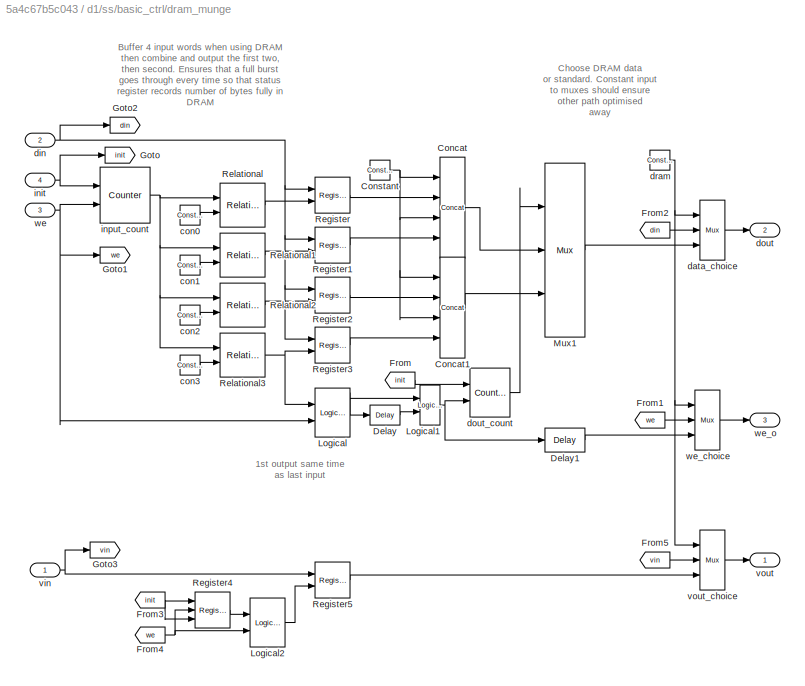
BLOCK [SubSystem] d1/ss/basic_ctrl/dram_munge
  Ports = [4, 3]
  RequestExecContextInheritance = off
BLOCK [Reference] d1/ss/basic_ctrl/dram_munge/Concat  REF=xbsIndex_r4/Concat
  Ports = [4, 1]
  SourceBlock = xbsIndex_r4/Concat
  SourceType = Xilinx Bus Concatenator Block
BLOCK [Reference] d1/ss/basic_ctrl/dram_munge/Concat1  REF=xbsIndex_r4/Concat
  Ports = [4, 1]
  SourceBlock = xbsIndex_r4/Concat
  SourceType = Xilinx Bus Concatenator Block
BLOCK [Reference] d1/ss/basic_ctrl/dram_munge/Constant  REF=xbsIndex_r4/Constant
  Ports = [0, 1]
  SourceBlock = xbsIndex_r4/Constant
  SourceType = Xilinx Constant Block Block
BLOCK [Reference] d1/ss/basic_ctrl/dram_munge/Delay  REF=xbsIndex_r4/Delay
  Ports = [1, 1]
  SourceBlock = xbsIndex_r4/Delay
  SourceType = Xilinx Delay Block
BLOCK [Reference] d1/ss/basic_ctrl/dram_munge/Delay1  REF=xbsIndex_r4/Delay
  Ports = [1, 1]
  SourceBlock = xbsIndex_r4/Delay
  SourceType = Xilinx Delay Block
BLOCK [From] d1/ss/basic_ctrl/dram_munge/From
  CloseFcn = tagdialog Close
  GotoTag = init
BLOCK [From] d1/ss/basic_ctrl/dram_munge/From1
  CloseFcn = tagdialog Close
  GotoTag = we
BLOCK [From] d1/ss/basic_ctrl/dram_munge/From2
  CloseFcn = tagdialog Close
  GotoTag = din
BLOCK [From] d1/ss/basic_ctrl/dram_munge/From3
  CloseFcn = tagdialog Close
  GotoTag = init
BLOCK [From] d1/ss/basic_ctrl/dram_munge/From4
  CloseFcn = tagdialog Close
  GotoTag = we
BLOCK [From] d1/ss/basic_ctrl/dram_munge/From5
  CloseFcn = tagdialog Close
  GotoTag = vin
BLOCK [Goto] d1/ss/basic_ctrl/dram_munge/Goto
  GotoTag = init
BLOCK [Goto] d1/ss/basic_ctrl/dram_munge/Goto1
  GotoTag = we
BLOCK [Goto] d1/ss/basic_ctrl/dram_munge/Goto2
  GotoTag = din
BLOCK [Goto] d1/ss/basic_ctrl/dram_munge/Goto3
  GotoTag = vin
BLOCK [Reference] d1/ss/basic_ctrl/dram_munge/Logical  REF=xbsIndex_r4/Logical
  Ports = [2, 1]
  SourceBlock = xbsIndex_r4/Logical
  SourceType = Xilinx Logical Block Block
BLOCK [Reference] d1/ss/basic_ctrl/dram_munge/Logical1  REF=xbsIndex_r4/Logical
  Ports = [2, 1]
  SourceBlock = xbsIndex_r4/Logical
  SourceType = Xilinx Logical Block Block
BLOCK [Reference] d1/ss/basic_ctrl/dram_munge/Logical2  REF=xbsIndex_r4/Logical
  Ports = [2, 1]
  SourceBlock = xbsIndex_r4/Logical
  SourceType = Xilinx Logical Block Block
BLOCK [Reference] d1/ss/basic_ctrl/dram_munge/Mux1  REF=xbsIndex_r4/Mux
  Ports = [3, 1]
  SourceBlock = xbsIndex_r4/Mux
  SourceType = Xilinx Bus Multiplexer Block
BLOCK [Reference] d1/ss/basic_ctrl/dram_munge/Register  REF=xbsIndex_r4/Register
  Ports = [2, 1]
  SourceBlock = xbsIndex_r4/Register
  SourceType = Xilinx Register Block
BLOCK [Reference] d1/ss/basic_ctrl/dram_munge/Register1  REF=xbsIndex_r4/Register
  Ports = [2, 1]
  SourceBlock = xbsIndex_r4/Register
  SourceType = Xilinx Register Block
BLOCK [Reference] d1/ss/basic_ctrl/dram_munge/Register2  REF=xbsIndex_r4/Register
  Ports = [2, 1]
  SourceBlock = xbsIndex_r4/Register
  SourceType = Xilinx Register Block
BLOCK [Reference] d1/ss/basic_ctrl/dram_munge/Register3  REF=xbsIndex_r4/Register
  Ports = [2, 1]
  SourceBlock = xbsIndex_r4/Register
  SourceType = Xilinx Register Block
BLOCK [Reference] d1/ss/basic_ctrl/dram_munge/Register4  REF=xbsIndex_r4/Register
  Ports = [3, 1]
  SourceBlock = xbsIndex_r4/Register
  SourceType = Xilinx Register Block
BLOCK [Reference] d1/ss/basic_ctrl/dram_munge/Register5  REF=xbsIndex_r4/Register
  Ports = [2, 1]
  SourceBlock = xbsIndex_r4/Register
  SourceType = Xilinx Register Block
BLOCK [Reference] d1/ss/basic_ctrl/dram_munge/Relational  REF=xbsIndex_r4/Relational
  Ports = [2, 1]
  SourceBlock = xbsIndex_r4/Relational
  SourceType = Xilinx Arithmetic Relational Operator Block
BLOCK [Reference] d1/ss/basic_ctrl/dram_munge/Relational1  REF=xbsIndex_r4/Relational
  Ports = [2, 1]
  SourceBlock = xbsIndex_r4/Relational
  SourceType = Xilinx Arithmetic Relational Operator Block
BLOCK [Reference] d1/ss/basic_ctrl/dram_munge/Relational2  REF=xbsIndex_r4/Relational
  Ports = [2, 1]
  SourceBlock = xbsIndex_r4/Relational
  SourceType = Xilinx Arithmetic Relational Operator Block
BLOCK [Reference] d1/ss/basic_ctrl/dram_munge/Relational3  REF=xbsIndex_r4/Relational
  Ports = [2, 1]
  SourceBlock = xbsIndex_r4/Relational
  SourceType = Xilinx Arithmetic Relational Operator Block
BLOCK [Reference] d1/ss/basic_ctrl/dram_munge/con0  REF=xbsIndex_r4/Constant
  Ports = [0, 1]
  SourceBlock = xbsIndex_r4/Constant
  SourceType = Xilinx Constant Block Block
BLOCK [Reference] d1/ss/basic_ctrl/dram_munge/con1  REF=xbsIndex_r4/Constant
  Ports = [0, 1]
  SourceBlock = xbsIndex_r4/Constant
  SourceType = Xilinx Constant Block Block
BLOCK [Reference] d1/ss/basic_ctrl/dram_munge/con2  REF=xbsIndex_r4/Constant
  Ports = [0, 1]
  SourceBlock = xbsIndex_r4/Constant
  SourceType = Xilinx Constant Block Block
BLOCK [Reference] d1/ss/basic_ctrl/dram_munge/con3  REF=xbsIndex_r4/Constant
  Ports = [0, 1]
  SourceBlock = xbsIndex_r4/Constant
  SourceType = Xilinx Constant Block Block
BLOCK [Reference] d1/ss/basic_ctrl/dram_munge/data_choice  REF=xbsIndex_r4/Mux
  Ports = [3, 1]
  SourceBlock = xbsIndex_r4/Mux
  SourceType = Xilinx Bus Multiplexer Block
BLOCK [Inport] d1/ss/basic_ctrl/dram_munge/din
  IconDisplay = Port number
  Port = 2
BLOCK [Outport] d1/ss/basic_ctrl/dram_munge/dout
  IconDisplay = Port number
  Port = 2
BLOCK [Reference] d1/ss/basic_ctrl/dram_munge/dout_count  REF=xbsIndex_r4/Counter
  Ports = [2, 1]
  SourceBlock = xbsIndex_r4/Counter
  SourceType = Xilinx Counter Block
BLOCK [Reference] d1/ss/basic_ctrl/dram_munge/dram  REF=xbsIndex_r4/Constant
  Ports = [0, 1]
  SourceBlock = xbsIndex_r4/Constant
  SourceType = Xilinx Constant Block Block
BLOCK [Inport] d1/ss/basic_ctrl/dram_munge/init
  IconDisplay = Port number
  Port = 4
BLOCK [Reference] d1/ss/basic_ctrl/dram_munge/input_count  REF=xbsIndex_r4/Counter
  Ports = [2, 1]
  SourceBlock = xbsIndex_r4/Counter
  SourceType = Xilinx Counter Block
BLOCK [Inport] d1/ss/basic_ctrl/dram_munge/vin
  IconDisplay = Port number
BLOCK [Outport] d1/ss/basic_ctrl/dram_munge/vout
  IconDisplay = Port number
BLOCK [Reference] d1/ss/basic_ctrl/dram_munge/vout_choice  REF=xbsIndex_r4/Mux
  Ports = [3, 1]
  SourceBlock = xbsIndex_r4/Mux
  SourceType = Xilinx Bus Multiplexer Block
BLOCK [Inport] d1/ss/basic_ctrl/dram_munge/we
  IconDisplay = Port number
  Port = 3
BLOCK [Reference] d1/ss/basic_ctrl/dram_munge/we_choice  REF=xbsIndex_r4/Mux
  Ports = [3, 1]
  SourceBlock = xbsIndex_r4/Mux
  SourceType = Xilinx Bus Multiplexer Block
BLOCK [Outport] d1/ss/basic_ctrl/dram_munge/we_o
  IconDisplay = Port number
  Port = 3
BLOCK [Reference] d1/ss/basic_ctrl/edge_detect  REF=casper_library_misc/edge_detect  (lib defined in mdl_357510c33b49, mdl_57b5f564ae26, +4 more)
  AttributesFormatString = rising edges\nactive high
  Ports = [1, 1]
  SourceBlock = casper_library_misc/edge_detect
  SourceProductName = CASPER DSP Blockset
  SourceType = edge_detect
  UserDataPersistent = on
BLOCK [Reference] d1/ss/basic_ctrl/enable  REF=xbsIndex_r4/Slice
  Ports = [1, 1]
  SourceBlock = xbsIndex_r4/Slice
  SourceType = Xilinx Bit Slice Extractor Block
BLOCK [Outport] d1/ss/basic_ctrl/go
  IconDisplay = Port number
  Port = 4
BLOCK [Outport] d1/ss/basic_ctrl/init
  IconDisplay = Port number
  Port = 6
BLOCK [Outport] d1/ss/basic_ctrl/stop
  IconDisplay = Port number
  Port = 5
BLOCK [Inport] d1/ss/basic_ctrl/stopi
  IconDisplay = Port number
  Port = 6
BLOCK [Inport] d1/ss/basic_ctrl/trig
  IconDisplay = Port number
  Port = 4
BLOCK [Reference] d1/ss/basic_ctrl/trig_src  REF=xbsIndex_r4/Slice
  Ports = [1, 1]
  SourceBlock = xbsIndex_r4/Slice
  SourceType = Xilinx Bit Slice Extractor Block
BLOCK [Reference] d1/ss/basic_ctrl/valid_src  REF=xbsIndex_r4/Slice
  Ports = [1, 1]
  SourceBlock = xbsIndex_r4/Slice
  SourceType = Xilinx Bit Slice Extractor Block
BLOCK [Inport] d1/ss/basic_ctrl/vin
  IconDisplay = Port number
BLOCK [Outport] d1/ss/basic_ctrl/vout
  IconDisplay = Port number
BLOCK [Inport] d1/ss/basic_ctrl/we
  IconDisplay = Port number
  Port = 3
BLOCK [Outport] d1/ss/basic_ctrl/we_o
  IconDisplay = Port number
  Port = 3
BLOCK [SubSystem] d1/ss/bram
  AncestorBlock = xps_library/Memory/shared_bram
  Ports = [3, 1]
  RequestExecContextInheritance = off
  Tag = xps:bram
BLOCK [Terminator] d1/ss/bram/Terminator
BLOCK [Terminator] d1/ss/bram/Terminator1
BLOCK [Terminator] d1/ss/bram/Terminator2
BLOCK [Inport] d1/ss/bram/addr
  IconDisplay = Port number
BLOCK [SubSystem] d1/ss/bram/calc_add
  Ports = [1, 1]
  RequestExecContextInheritance = off
BLOCK [Reference] d1/ss/bram/calc_add/add_sub  REF=xbsIndex_r4/AddSub
  Ports = [2, 1]
  SourceBlock = xbsIndex_r4/AddSub
  SourceType = Xilinx Adder/Subtracter Block
BLOCK [Reference] d1/ss/bram/calc_add/concat  REF=xbsIndex_r4/Concat
  Ports = [2, 1]
  SourceBlock = xbsIndex_r4/Concat
  SourceType = Xilinx Bus Concatenator Block
BLOCK [Reference] d1/ss/bram/calc_add/const  REF=xbsIndex_r4/Constant
  Ports = [0, 1]
  SourceBlock = xbsIndex_r4/Constant
  SourceType = Xilinx Constant Block Block
BLOCK [Reference] d1/ss/bram/calc_add/convert_addr  REF=xbsIndex_r4/Convert
  Ports = [1, 1]
  SourceBlock = xbsIndex_r4/Convert
  SourceType = Xilinx Type Converter Block
BLOCK [Inport] d1/ss/bram/calc_add/in
  IconDisplay = Port number
BLOCK [Reference] d1/ss/bram/calc_add/lsw  REF=xbsIndex_r4/Slice
  Ports = [1, 1]
  SourceBlock = xbsIndex_r4/Slice
  SourceType = Xilinx Bit Slice Extractor Block
BLOCK [Reference] d1/ss/bram/calc_add/manipulate  REF=xbsIndex_r4/Constant
  Ports = [0, 1]
  SourceBlock = xbsIndex_r4/Constant
  SourceType = Xilinx Constant Block Block
BLOCK [Reference] d1/ss/bram/calc_add/msw  REF=xbsIndex_r4/Slice
  Ports = [1, 1]
  SourceBlock = xbsIndex_r4/Slice
  SourceType = Xilinx Bit Slice Extractor Block
BLOCK [Reference] d1/ss/bram/calc_add/mux  REF=xbsIndex_r4/Mux
  Ports = [3, 1]
  SourceBlock = xbsIndex_r4/Mux
  SourceType = Xilinx Bus Multiplexer Block
BLOCK [Outport] d1/ss/bram/calc_add/out
  IconDisplay = Port number
BLOCK [Reference] d1/ss/bram/convert_addr  REF=xbsIndex_r4/Convert
  Ports = [1, 1]
  SourceBlock = xbsIndex_r4/Convert
  SourceType = Xilinx Type Converter Block
BLOCK [Reference] d1/ss/bram/convert_din1  REF=xbsIndex_r4/Convert
  Ports = [1, 1]
  SourceBlock = xbsIndex_r4/Convert
  SourceType = Xilinx Type Converter Block
BLOCK [Reference] d1/ss/bram/convert_we  REF=xbsIndex_r4/Convert
  Ports = [1, 1]
  SourceBlock = xbsIndex_r4/Convert
  SourceType = Xilinx Type Converter Block
BLOCK [Inport] d1/ss/bram/data_in
  IconDisplay = Port number
  Port = 2
BLOCK [Outport] d1/ss/bram/data_out
  IconDisplay = Port number
BLOCK [SubSystem] d1/ss/bram/munge_in
  AncestorBlock = casper_library_flow_control/munge
  AttributesFormatString = split:[32 32 32 32]\njoin:[3 2 1 0]\nUnsigned [128,0]
  Ports = [1, 1]
  RequestExecContextInheritance = off
  UserDataPersistent = on
BLOCK [Inport] d1/ss/bram/munge_in/din
  IconDisplay = Port number
BLOCK [Outport] d1/ss/bram/munge_in/dout
  IconDisplay = Port number
BLOCK [SubSystem] d1/ss/bram/munge_in/join
  AncestorBlock = casper_library_flow_control/bus_create
  Ports = [4, 1]
  RequestExecContextInheritance = off
  UserDataPersistent = on
BLOCK [Outport] d1/ss/bram/munge_in/join/bus_out
  IconDisplay = Port number
BLOCK [Reference] d1/ss/bram/munge_in/join/concatenate  REF=xbsIndex_r4/Concat
  Ports = [4, 1]
  SourceBlock = xbsIndex_r4/Concat
  SourceType = Xilinx Bus Concatenator Block
BLOCK [Inport] d1/ss/bram/munge_in/join/in1
  IconDisplay = Port number
BLOCK [Inport] d1/ss/bram/munge_in/join/in2
  IconDisplay = Port number
  Port = 2
BLOCK [Inport] d1/ss/bram/munge_in/join/in3
  IconDisplay = Port number
  Port = 3
BLOCK [Inport] d1/ss/bram/munge_in/join/in4
  IconDisplay = Port number
  Port = 4
BLOCK [Reference] d1/ss/bram/munge_in/join/reinterpret1  REF=xbsIndex_r4/Reinterpret
  Ports = [1, 1]
  SourceBlock = xbsIndex_r4/Reinterpret
  SourceType = Xilinx Type Reinterpreter Block
BLOCK [Reference] d1/ss/bram/munge_in/join/reinterpret2  REF=xbsIndex_r4/Reinterpret
  Ports = [1, 1]
  SourceBlock = xbsIndex_r4/Reinterpret
  SourceType = Xilinx Type Reinterpreter Block
BLOCK [Reference] d1/ss/bram/munge_in/join/reinterpret3  REF=xbsIndex_r4/Reinterpret
  Ports = [1, 1]
  SourceBlock = xbsIndex_r4/Reinterpret
  SourceType = Xilinx Type Reinterpreter Block
BLOCK [Reference] d1/ss/bram/munge_in/join/reinterpret4  REF=xbsIndex_r4/Reinterpret
  Ports = [1, 1]
  SourceBlock = xbsIndex_r4/Reinterpret
  SourceType = Xilinx Type Reinterpreter Block
BLOCK [Reference] d1/ss/bram/munge_in/reinterpret  REF=xbsIndex_r4/Reinterpret
  Ports = [1, 1]
  SourceBlock = xbsIndex_r4/Reinterpret
  SourceType = Xilinx Type Reinterpreter Block
BLOCK [Reference] d1/ss/bram/munge_in/reinterpret_out  REF=xbsIndex_r4/Reinterpret
  Ports = [1, 1]
  SourceBlock = xbsIndex_r4/Reinterpret
  SourceType = Xilinx Type Reinterpreter Block
BLOCK [SubSystem] d1/ss/bram/munge_in/split
  AncestorBlock = casper_library_flow_control/bus_expand
  AttributesFormatString = 4 outputs
  Ports = [1, 4]
  RequestExecContextInheritance = off
  UserDataPersistent = on
BLOCK [Inport] d1/ss/bram/munge_in/split/bus_in
  IconDisplay = Port number
BLOCK [Outport] d1/ss/bram/munge_in/split/lsb_out1
  IconDisplay = Port number
  Port = 4
BLOCK [Outport] d1/ss/bram/munge_in/split/msb_out4
  IconDisplay = Port number
BLOCK [Outport] d1/ss/bram/munge_in/split/out2
  IconDisplay = Port number
  Port = 3
BLOCK [Outport] d1/ss/bram/munge_in/split/out3
  IconDisplay = Port number
  Port = 2
BLOCK [Reference] d1/ss/bram/munge_in/split/reinterpret1  REF=xbsIndex_r4/Reinterpret
  Ports = [1, 1]
  SourceBlock = xbsIndex_r4/Reinterpret
  SourceType = Xilinx Type Reinterpreter Block
BLOCK [Reference] d1/ss/bram/munge_in/split/reinterpret2  REF=xbsIndex_r4/Reinterpret
  Ports = [1, 1]
  SourceBlock = xbsIndex_r4/Reinterpret
  SourceType = Xilinx Type Reinterpreter Block
BLOCK [Reference] d1/ss/bram/munge_in/split/reinterpret3  REF=xbsIndex_r4/Reinterpret
  Ports = [1, 1]
  SourceBlock = xbsIndex_r4/Reinterpret
  SourceType = Xilinx Type Reinterpreter Block
BLOCK [Reference] d1/ss/bram/munge_in/split/reinterpret4  REF=xbsIndex_r4/Reinterpret
  Ports = [1, 1]
  SourceBlock = xbsIndex_r4/Reinterpret
  SourceType = Xilinx Type Reinterpreter Block
BLOCK [Reference] d1/ss/bram/munge_in/split/slice1  REF=xbsIndex_r4/Slice
  Ports = [1, 1]
  SourceBlock = xbsIndex_r4/Slice
  SourceType = Xilinx Bit Slice Extractor Block
BLOCK [Reference] d1/ss/bram/munge_in/split/slice2  REF=xbsIndex_r4/Slice
  Ports = [1, 1]
  SourceBlock = xbsIndex_r4/Slice
  SourceType = Xilinx Bit Slice Extractor Block
BLOCK [Reference] d1/ss/bram/munge_in/split/slice3  REF=xbsIndex_r4/Slice
  Ports = [1, 1]
  SourceBlock = xbsIndex_r4/Slice
  SourceType = Xilinx Bit Slice Extractor Block
BLOCK [Reference] d1/ss/bram/munge_in/split/slice4  REF=xbsIndex_r4/Slice
  Ports = [1, 1]
  SourceBlock = xbsIndex_r4/Slice
  SourceType = Xilinx Bit Slice Extractor Block
BLOCK [SubSystem] d1/ss/bram/munge_out
  AncestorBlock = casper_library_flow_control/munge
  AttributesFormatString = split:[32 32 32 32]\njoin:[3 2 1 0]\nUnsigned [128,0]
  Ports = [1, 1]
  RequestExecContextInheritance = off
  UserDataPersistent = on
BLOCK [Inport] d1/ss/bram/munge_out/din
  IconDisplay = Port number
BLOCK [Outport] d1/ss/bram/munge_out/dout
  IconDisplay = Port number
BLOCK [SubSystem] d1/ss/bram/munge_out/join
  AncestorBlock = casper_library_flow_control/bus_create
  Ports = [4, 1]
  RequestExecContextInheritance = off
  UserDataPersistent = on
BLOCK [Outport] d1/ss/bram/munge_out/join/bus_out
  IconDisplay = Port number
BLOCK [Reference] d1/ss/bram/munge_out/join/concatenate  REF=xbsIndex_r4/Concat
  Ports = [4, 1]
  SourceBlock = xbsIndex_r4/Concat
  SourceType = Xilinx Bus Concatenator Block
BLOCK [Inport] d1/ss/bram/munge_out/join/in1
  IconDisplay = Port number
BLOCK [Inport] d1/ss/bram/munge_out/join/in2
  IconDisplay = Port number
  Port = 2
BLOCK [Inport] d1/ss/bram/munge_out/join/in3
  IconDisplay = Port number
  Port = 3
BLOCK [Inport] d1/ss/bram/munge_out/join/in4
  IconDisplay = Port number
  Port = 4
BLOCK [Reference] d1/ss/bram/munge_out/join/reinterpret1  REF=xbsIndex_r4/Reinterpret
  Ports = [1, 1]
  SourceBlock = xbsIndex_r4/Reinterpret
  SourceType = Xilinx Type Reinterpreter Block
BLOCK [Reference] d1/ss/bram/munge_out/join/reinterpret2  REF=xbsIndex_r4/Reinterpret
  Ports = [1, 1]
  SourceBlock = xbsIndex_r4/Reinterpret
  SourceType = Xilinx Type Reinterpreter Block
BLOCK [Reference] d1/ss/bram/munge_out/join/reinterpret3  REF=xbsIndex_r4/Reinterpret
  Ports = [1, 1]
  SourceBlock = xbsIndex_r4/Reinterpret
  SourceType = Xilinx Type Reinterpreter Block
BLOCK [Reference] d1/ss/bram/munge_out/join/reinterpret4  REF=xbsIndex_r4/Reinterpret
  Ports = [1, 1]
  SourceBlock = xbsIndex_r4/Reinterpret
  SourceType = Xilinx Type Reinterpreter Block
BLOCK [Reference] d1/ss/bram/munge_out/reinterpret  REF=xbsIndex_r4/Reinterpret
  Ports = [1, 1]
  SourceBlock = xbsIndex_r4/Reinterpret
  SourceType = Xilinx Type Reinterpreter Block
BLOCK [Reference] d1/ss/bram/munge_out/reinterpret_out  REF=xbsIndex_r4/Reinterpret
  Ports = [1, 1]
  SourceBlock = xbsIndex_r4/Reinterpret
  SourceType = Xilinx Type Reinterpreter Block
BLOCK [SubSystem] d1/ss/bram/munge_out/split
  AncestorBlock = casper_library_flow_control/bus_expand
  AttributesFormatString = 4 outputs
  Ports = [1, 4]
  RequestExecContextInheritance = off
  UserDataPersistent = on
BLOCK [Inport] d1/ss/bram/munge_out/split/bus_in
  IconDisplay = Port number
BLOCK [Outport] d1/ss/bram/munge_out/split/lsb_out1
  IconDisplay = Port number
  Port = 4
BLOCK [Outport] d1/ss/bram/munge_out/split/msb_out4
  IconDisplay = Port number
BLOCK [Outport] d1/ss/bram/munge_out/split/out2
  IconDisplay = Port number
  Port = 3
BLOCK [Outport] d1/ss/bram/munge_out/split/out3
  IconDisplay = Port number
  Port = 2
BLOCK [Reference] d1/ss/bram/munge_out/split/reinterpret1  REF=xbsIndex_r4/Reinterpret
  Ports = [1, 1]
  SourceBlock = xbsIndex_r4/Reinterpret
  SourceType = Xilinx Type Reinterpreter Block
BLOCK [Reference] d1/ss/bram/munge_out/split/reinterpret2  REF=xbsIndex_r4/Reinterpret
  Ports = [1, 1]
  SourceBlock = xbsIndex_r4/Reinterpret
  SourceType = Xilinx Type Reinterpreter Block
BLOCK [Reference] d1/ss/bram/munge_out/split/reinterpret3  REF=xbsIndex_r4/Reinterpret
  Ports = [1, 1]
  SourceBlock = xbsIndex_r4/Reinterpret
  SourceType = Xilinx Type Reinterpreter Block
BLOCK [Reference] d1/ss/bram/munge_out/split/reinterpret4  REF=xbsIndex_r4/Reinterpret
  Ports = [1, 1]
  SourceBlock = xbsIndex_r4/Reinterpret
  SourceType = Xilinx Type Reinterpreter Block
BLOCK [Reference] d1/ss/bram/munge_out/split/slice1  REF=xbsIndex_r4/Slice
  Ports = [1, 1]
  SourceBlock = xbsIndex_r4/Slice
  SourceType = Xilinx Bit Slice Extractor Block
BLOCK [Reference] d1/ss/bram/munge_out/split/slice2  REF=xbsIndex_r4/Slice
  Ports = [1, 1]
  SourceBlock = xbsIndex_r4/Slice
  SourceType = Xilinx Bit Slice Extractor Block
BLOCK [Reference] d1/ss/bram/munge_out/split/slice3  REF=xbsIndex_r4/Slice
  Ports = [1, 1]
  SourceBlock = xbsIndex_r4/Slice
  SourceType = Xilinx Bit Slice Extractor Block
BLOCK [Reference] d1/ss/bram/munge_out/split/slice4  REF=xbsIndex_r4/Slice
  Ports = [1, 1]
  SourceBlock = xbsIndex_r4/Slice
  SourceType = Xilinx Bit Slice Extractor Block
BLOCK [SubSystem] d1/ss/bram/sim_mem
  Ports = [3, 1]
  RequestExecContextInheritance = off
BLOCK [DataTypeConversion] d1/ss/bram/sim_mem/Data Type Conversion
  OutDataTypeStr = single
  RndMeth = Floor
  SaturateOnIntegerOverflow = off
BLOCK [DataTypeConversion] d1/ss/bram/sim_mem/Data Type Conversion1
  OutDataTypeStr = double
  RndMeth = Floor
  SaturateOnIntegerOverflow = off
BLOCK [DataTypeConversion] d1/ss/bram/sim_mem/Data Type Conversion2
  OutDataTypeStr = boolean
  RndMeth = Floor
  SaturateOnIntegerOverflow = off
BLOCK [Inport] d1/ss/bram/sim_mem/addr
  IconDisplay = Port number
BLOCK [Inport] d1/ss/bram/sim_mem/data
  IconDisplay = Port number
  Port = 2
BLOCK [Outport] d1/ss/bram/sim_mem/data_out
  IconDisplay = Port number
BLOCK [M-S-Function] d1/ss/bram/sim_mem/sfunc
  FunctionName = shared_bram_sim_sfunc
  Parameters = depth_bits, latency, init_vals
  Ports = [3, 1]
BLOCK [Reference] d1/ss/bram/sim_mem/sim_addr  REF=xbsIndex_r4/Gateway Out
  Ports = [1, 1]
  SourceBlock = xbsIndex_r4/Gateway Out
  SourceType = Xilinx Gateway Out Block
BLOCK [Reference] d1/ss/bram/sim_mem/sim_data  REF=xbsIndex_r4/Gateway Out
  Ports = [1, 1]
  SourceBlock = xbsIndex_r4/Gateway Out
  SourceType = Xilinx Gateway Out Block
BLOCK [Reference] d1/ss/bram/sim_mem/sim_we  REF=xbsIndex_r4/Gateway Out
  Ports = [1, 1]
  SourceBlock = xbsIndex_r4/Gateway Out
  SourceType = Xilinx Gateway Out Block
BLOCK [Inport] d1/ss/bram/sim_mem/we
  IconDisplay = Port number
  Port = 3
BLOCK [Reference] d1/ss/bram/skarab_1gbe_rx_test_d1_ss_bram_addr  REF=xbsIndex_r4/Gateway Out
  Ports = [1, 1]
  SourceBlock = xbsIndex_r4/Gateway Out
  SourceType = Xilinx Gateway Out Block
BLOCK [Reference] d1/ss/bram/skarab_1gbe_rx_test_d1_ss_bram_data_in  REF=xbsIndex_r4/Gateway Out
  Ports = [1, 1]
  SourceBlock = xbsIndex_r4/Gateway Out
  SourceType = Xilinx Gateway Out Block
BLOCK [Reference] d1/ss/bram/skarab_1gbe_rx_test_d1_ss_bram_data_out  REF=xbsIndex_r4/Gateway In
  Ports = [1, 1]
  SourceBlock = xbsIndex_r4/Gateway In
  SourceType = Xilinx Gateway In Block
BLOCK [Reference] d1/ss/bram/skarab_1gbe_rx_test_d1_ss_bram_we  REF=xbsIndex_r4/Gateway Out
  Ports = [1, 1]
  SourceBlock = xbsIndex_r4/Gateway Out
  SourceType = Xilinx Gateway Out Block
BLOCK [Inport] d1/ss/bram/we
  IconDisplay = Port number
  Port = 3
BLOCK [Reference] d1/ss/cast  REF=xbsIndex_r4/Convert
  Ports = [1, 1]
  SourceBlock = xbsIndex_r4/Convert
  SourceType = Xilinx Type Converter Block
BLOCK [Reference] d1/ss/circ  REF=xbsIndex_r4/Constant
  Ports = [0, 1]
  SourceBlock = xbsIndex_r4/Constant
  SourceType = Xilinx Constant Block Block
BLOCK [Reference] d1/ss/circ_or  REF=xbsIndex_r4/Logical
  Ports = [2, 1]
  SourceBlock = xbsIndex_r4/Logical
  SourceType = Xilinx Logical Block Block
BLOCK [SubSystem] d1/ss/ctrl
  AncestorBlock = xps_library/Memory/software_register
  AttributesFormatString = 1input:uf32.0 = 32 bits
  Ports = [0, 1]
  RequestExecContextInheritance = off
  Tag = xps:sw_reg
BLOCK [DataTypeConversion] d1/ss/ctrl/convert1_1
  LockScale = on
  OutDataTypeStr = fixdt('ufix32_En0')
  RndMeth = Floor
  SaturateOnIntegerOverflow = off
BLOCK [DataTypeConversion] d1/ss/ctrl/convert2_1
  ConvertRealWorld = Stored Integer (SI)
  LockScale = on
  OutDataTypeStr = fixdt('ufix32_En0')
  RndMeth = Floor
  SaturateOnIntegerOverflow = off
BLOCK [Gain] d1/ss/ctrl/gain_1
  OutDataTypeStr = Inherit: Inherit via internal rule
  ParamDataTypeStr = Inherit: Inherit via internal rule
  SaturateOnIntegerOverflow = off
BLOCK [Outport] d1/ss/ctrl/in_reg
  IconDisplay = Port number
BLOCK [Reference] d1/ss/ctrl/io_delay  REF=xbsIndex_r4/Delay
  Ports = [1, 1]
  SourceBlock = xbsIndex_r4/Delay
  SourceType = Xilinx Delay Block
BLOCK [Reference] d1/ss/ctrl/reint1  REF=xbsIndex_r4/Reinterpret
  Ports = [1, 1]
  SourceBlock = xbsIndex_r4/Reinterpret
  SourceType = Xilinx Type Reinterpreter Block
BLOCK [Constant] d1/ss/ctrl/sim_1
  Value = 0
BLOCK [Reference] d1/ss/ctrl/skarab_1gbe_rx_test_d1_ss_ctrl_user_data_out  REF=xbsIndex_r4/Gateway In
  Ports = [1, 1]
  SourceBlock = xbsIndex_r4/Gateway In
  SourceType = Xilinx Gateway In Block
BLOCK [Reference] d1/ss/ctrl/slice_reg  REF=xbsIndex_r4/Slice
  Ports = [1, 1]
  SourceBlock = xbsIndex_r4/Slice
  SourceType = Xilinx Bit Slice Extractor Block
BLOCK [SubSystem] d1/ss/ctrl_combine
  AncestorBlock = casper_library_flow_control/bus_create
  Ports = [4, 1]
  RequestExecContextInheritance = off
  UserDataPersistent = on
BLOCK [Outport] d1/ss/ctrl_combine/bus_out
  IconDisplay = Port number
BLOCK [Reference] d1/ss/ctrl_combine/concatenate  REF=xbsIndex_r4/Concat
  Ports = [4, 1]
  SourceBlock = xbsIndex_r4/Concat
  SourceType = Xilinx Bus Concatenator Block
BLOCK [Inport] d1/ss/ctrl_combine/in1
  IconDisplay = Port number
BLOCK [Inport] d1/ss/ctrl_combine/in2
  IconDisplay = Port number
  Port = 2
BLOCK [Inport] d1/ss/ctrl_combine/in3
  IconDisplay = Port number
  Port = 3
BLOCK [Inport] d1/ss/ctrl_combine/in4
  IconDisplay = Port number
  Port = 4
BLOCK [Reference] d1/ss/ctrl_combine/reinterpret1  REF=xbsIndex_r4/Reinterpret
  Ports = [1, 1]
  SourceBlock = xbsIndex_r4/Reinterpret
  SourceType = Xilinx Type Reinterpreter Block
BLOCK [Reference] d1/ss/ctrl_combine/reinterpret2  REF=xbsIndex_r4/Reinterpret
  Ports = [1, 1]
  SourceBlock = xbsIndex_r4/Reinterpret
  SourceType = Xilinx Type Reinterpreter Block
BLOCK [Reference] d1/ss/ctrl_combine/reinterpret3  REF=xbsIndex_r4/Reinterpret
  Ports = [1, 1]
  SourceBlock = xbsIndex_r4/Reinterpret
  SourceType = Xilinx Type Reinterpreter Block
BLOCK [Reference] d1/ss/ctrl_combine/reinterpret4  REF=xbsIndex_r4/Reinterpret
  Ports = [1, 1]
  SourceBlock = xbsIndex_r4/Reinterpret
  SourceType = Xilinx Type Reinterpreter Block
BLOCK [SubSystem] d1/ss/ctrl_split
  AncestorBlock = casper_library_flow_control/bus_expand
  AttributesFormatString = 4 outputs: uf28.0,b,uf2.0,b,
  Ports = [1, 4]
  RequestExecContextInheritance = off
  UserDataPersistent = on
BLOCK [Inport] d1/ss/ctrl_split/bus_in
  IconDisplay = Port number
BLOCK [Outport] d1/ss/ctrl_split/lsb_out1
  IconDisplay = Port number
  Port = 4
BLOCK [Outport] d1/ss/ctrl_split/msb_out4
  IconDisplay = Port number
BLOCK [Outport] d1/ss/ctrl_split/out2
  IconDisplay = Port number
  Port = 3
BLOCK [Outport] d1/ss/ctrl_split/out3
  IconDisplay = Port number
  Port = 2
BLOCK [Reference] d1/ss/ctrl_split/reinterpret2  REF=xbsIndex_r4/Reinterpret
  Ports = [1, 1]
  SourceBlock = xbsIndex_r4/Reinterpret
  SourceType = Xilinx Type Reinterpreter Block
BLOCK [Reference] d1/ss/ctrl_split/reinterpret4  REF=xbsIndex_r4/Reinterpret
  Ports = [1, 1]
  SourceBlock = xbsIndex_r4/Reinterpret
  SourceType = Xilinx Type Reinterpreter Block
BLOCK [Reference] d1/ss/ctrl_split/slice1  REF=xbsIndex_r4/Slice
  Ports = [1, 1]
  SourceBlock = xbsIndex_r4/Slice
  SourceType = Xilinx Bit Slice Extractor Block
BLOCK [Reference] d1/ss/ctrl_split/slice2  REF=xbsIndex_r4/Slice
  Ports = [1, 1]
  SourceBlock = xbsIndex_r4/Slice
  SourceType = Xilinx Bit Slice Extractor Block
BLOCK [Reference] d1/ss/ctrl_split/slice3  REF=xbsIndex_r4/Slice
  Ports = [1, 1]
  SourceBlock = xbsIndex_r4/Slice
  SourceType = Xilinx Bit Slice Extractor Block
BLOCK [Reference] d1/ss/ctrl_split/slice4  REF=xbsIndex_r4/Slice
  Ports = [1, 1]
  SourceBlock = xbsIndex_r4/Slice
  SourceType = Xilinx Bit Slice Extractor Block
BLOCK [Reference] d1/ss/dat_del  REF=xbsIndex_r4/Delay
  Ports = [1, 1]
  SourceBlock = xbsIndex_r4/Delay
  SourceType = Xilinx Delay Block
BLOCK [Inport] d1/ss/din
  IconDisplay = Port number
BLOCK [Terminator] d1/ss/g_tr_en_cnt
BLOCK [Terminator] d1/ss/gbram
BLOCK [Goto] d1/ss/goto_ss_we1
  GotoTag = goto_107713019_we1
  TagVisibility = global
BLOCK [Goto] d1/ss/goto_ss_we2
  GotoTag = goto_107713019_we2
  TagVisibility = global
BLOCK [Reference] d1/ss/goto_ss_we2_const  REF=xbsIndex_r4/Constant
  Ports = [0, 1]
  SourceBlock = xbsIndex_r4/Constant
  SourceType = Xilinx Constant Block Block
BLOCK [Goto] d1/ss/goto_ss_we3
  GotoTag = goto_107713019_we3
  TagVisibility = global
BLOCK [Reference] d1/ss/goto_ss_we3_const  REF=xbsIndex_r4/Constant
  Ports = [0, 1]
  SourceBlock = xbsIndex_r4/Constant
  SourceType = Xilinx Constant Block Block
BLOCK [Goto] d1/ss/goto_ss_we4
  GotoTag = goto_107713019_we4
  TagVisibility = global
BLOCK [Terminator] d1/ss/gval
BLOCK [Reference] d1/ss/never  REF=xbsIndex_r4/Constant
  Ports = [0, 1]
  SourceBlock = xbsIndex_r4/Constant
  SourceType = Xilinx Constant Block Block
BLOCK [Reference] d1/ss/ri  REF=xbsIndex_r4/Reinterpret
  Ports = [1, 1]
  SourceBlock = xbsIndex_r4/Reinterpret
  SourceType = Xilinx Type Reinterpreter Block
BLOCK [SubSystem] d1/ss/status
  AncestorBlock = xps_library/Memory/software_register
  AttributesFormatString = 1output:uf32.0 = 32 bits
  Ports = [1]
  RequestExecContextInheritance = off
  Tag = xps:sw_reg
BLOCK [Reference] d1/ss/status/assert_reg  REF=xbsIndex_r4/Assert
  Ports = [1, 1]
  SourceBlock = xbsIndex_r4/Assert
  SourceType = Xilinx Assert Block
BLOCK [Reference] d1/ss/status/cast_gw  REF=xbsIndex_r4/Convert
  Ports = [1, 1]
  SourceBlock = xbsIndex_r4/Convert
  SourceType = Xilinx Type Converter Block
BLOCK [Reference] d1/ss/status/io_delay  REF=xbsIndex_r4/Delay
  Ports = [1, 1]
  SourceBlock = xbsIndex_r4/Delay
  SourceType = Xilinx Delay Block
BLOCK [Inport] d1/ss/status/out_reg
  IconDisplay = Port number
BLOCK [Reference] d1/ss/status/reint1  REF=xbsIndex_r4/Reinterpret
  Ports = [1, 1]
  SourceBlock = xbsIndex_r4/Reinterpret
  SourceType = Xilinx Type Reinterpreter Block
BLOCK [Terminator] d1/ss/status/sim_out
BLOCK [Reference] d1/ss/status/skarab_1gbe_rx_test_d1_ss_status_user_data_in  REF=xbsIndex_r4/Gateway Out
  Ports = [1, 1]
  SourceBlock = xbsIndex_r4/Gateway Out
  SourceType = Xilinx Gateway Out Block
BLOCK [Inport] d1/ss/trig
  IconDisplay = Port number
  Port = 3
BLOCK [Reference] d1/ss/vin_const  REF=xbsIndex_r4/Constant
  Ports = [0, 1]
  SourceBlock = xbsIndex_r4/Constant
  SourceType = Xilinx Constant Block Block
BLOCK [Inport] d1/ss/we
  IconDisplay = Port number
  Port = 2
BLOCK [Reference] d1/ss/we_del  REF=xbsIndex_r4/Delay
  Ports = [1, 1]
  SourceBlock = xbsIndex_r4/Delay
  SourceType = Xilinx Delay Block
BLOCK [Inport] d1/trig
  IconDisplay = Port number
  Port = 6
BLOCK [Inport] d1/we
  IconDisplay = Port number
  Port = 5
BLOCK [SubSystem] d2
  AncestorBlock = casper_library_scopes/bitfield_snapshot
  AttributesFormatString = snap(8):uf32.0,uf16.0,b,b,uf32.0,uf16.0,uf4.0,b = 103 bits\n128 wide, 8192 deep\ndebugID: 107742810
  Ports = [10, 1]
  RequestExecContextInheritance = off
  Tag = casper:bitsnap
  UserDataPersistent = on
BLOCK [Outport] d2/arm_out
  IconDisplay = Port number
BLOCK [Reference] d2/assert_badframe  REF=xbsIndex_r4/Assert
  Ports = [1, 1]
  SourceBlock = xbsIndex_r4/Assert
  SourceType = Xilinx Assert Block
BLOCK [Reference] d2/assert_dest_ip  REF=xbsIndex_r4/Assert
  Ports = [1, 1]
  SourceBlock = xbsIndex_r4/Assert
  SourceType = Xilinx Assert Block
BLOCK [Reference] d2/assert_dest_port  REF=xbsIndex_r4/Assert
  Ports = [1, 1]
  SourceBlock = xbsIndex_r4/Assert
  SourceType = Xilinx Assert Block
BLOCK [Reference] d2/assert_eof  REF=xbsIndex_r4/Assert
  Ports = [1, 1]
  SourceBlock = xbsIndex_r4/Assert
  SourceType = Xilinx Assert Block
BLOCK [Reference] d2/assert_overrun  REF=xbsIndex_r4/Assert
  Ports = [1, 1]
  SourceBlock = xbsIndex_r4/Assert
  SourceType = Xilinx Assert Block
BLOCK [Reference] d2/assert_src_ip  REF=xbsIndex_r4/Assert
  Ports = [1, 1]
  SourceBlock = xbsIndex_r4/Assert
  SourceType = Xilinx Assert Block
BLOCK [Reference] d2/assert_src_port  REF=xbsIndex_r4/Assert
  Ports = [1, 1]
  SourceBlock = xbsIndex_r4/Assert
  SourceType = Xilinx Assert Block
BLOCK [Reference] d2/assert_valid_raw  REF=xbsIndex_r4/Assert
  Ports = [1, 1]
  SourceBlock = xbsIndex_r4/Assert
  SourceType = Xilinx Assert Block
BLOCK [SubSystem] d2/buscreate
  AncestorBlock = casper_library_flow_control/bus_create
  Ports = [8, 1]
  RequestExecContextInheritance = off
  UserDataPersistent = on
BLOCK [Outport] d2/buscreate/bus_out
  IconDisplay = Port number
BLOCK [Reference] d2/buscreate/concatenate  REF=xbsIndex_r4/Concat
  Ports = [8, 1]
  SourceBlock = xbsIndex_r4/Concat
  SourceType = Xilinx Bus Concatenator Block
BLOCK [Inport] d2/buscreate/in1
  IconDisplay = Port number
BLOCK [Inport] d2/buscreate/in2
  IconDisplay = Port number
  Port = 2
BLOCK [Inport] d2/buscreate/in3
  IconDisplay = Port number
  Port = 3
BLOCK [Inport] d2/buscreate/in4
  IconDisplay = Port number
  Port = 4
BLOCK [Inport] d2/buscreate/in5
  IconDisplay = Port number
  Port = 5
BLOCK [Inport] d2/buscreate/in6
  IconDisplay = Port number
  Port = 6
BLOCK [Inport] d2/buscreate/in7
  IconDisplay = Port number
  Port = 7
BLOCK [Inport] d2/buscreate/in8
  IconDisplay = Port number
  Port = 8
BLOCK [Reference] d2/buscreate/reinterpret1  REF=xbsIndex_r4/Reinterpret
  Ports = [1, 1]
  SourceBlock = xbsIndex_r4/Reinterpret
  SourceType = Xilinx Type Reinterpreter Block
BLOCK [Reference] d2/buscreate/reinterpret2  REF=xbsIndex_r4/Reinterpret
  Ports = [1, 1]
  SourceBlock = xbsIndex_r4/Reinterpret
  SourceType = Xilinx Type Reinterpreter Block
BLOCK [Reference] d2/buscreate/reinterpret3  REF=xbsIndex_r4/Reinterpret
  Ports = [1, 1]
  SourceBlock = xbsIndex_r4/Reinterpret
  SourceType = Xilinx Type Reinterpreter Block
BLOCK [Reference] d2/buscreate/reinterpret4  REF=xbsIndex_r4/Reinterpret
  Ports = [1, 1]
  SourceBlock = xbsIndex_r4/Reinterpret
  SourceType = Xilinx Type Reinterpreter Block
BLOCK [Reference] d2/buscreate/reinterpret5  REF=xbsIndex_r4/Reinterpret
  Ports = [1, 1]
  SourceBlock = xbsIndex_r4/Reinterpret
  SourceType = Xilinx Type Reinterpreter Block
BLOCK [Reference] d2/buscreate/reinterpret6  REF=xbsIndex_r4/Reinterpret
  Ports = [1, 1]
  SourceBlock = xbsIndex_r4/Reinterpret
  SourceType = Xilinx Type Reinterpreter Block
BLOCK [Reference] d2/buscreate/reinterpret7  REF=xbsIndex_r4/Reinterpret
  Ports = [1, 1]
  SourceBlock = xbsIndex_r4/Reinterpret
  SourceType = Xilinx Type Reinterpreter Block
BLOCK [Reference] d2/buscreate/reinterpret8  REF=xbsIndex_r4/Reinterpret
  Ports = [1, 1]
  SourceBlock = xbsIndex_r4/Reinterpret
  SourceType = Xilinx Type Reinterpreter Block
BLOCK [Inport] d2/in_badframe
  IconDisplay = Port number
  Port = 3
BLOCK [Inport] d2/in_dest_ip
  IconDisplay = Port number
  Port = 5
BLOCK [Inport] d2/in_dest_port
  IconDisplay = Port number
  Port = 6
BLOCK [Inport] d2/in_eof
  IconDisplay = Port number
  Port = 8
BLOCK [Inport] d2/in_overrun
  IconDisplay = Port number
  Port = 4
BLOCK [Inport] d2/in_src_ip
  IconDisplay = Port number
BLOCK [Inport] d2/in_src_port
  IconDisplay = Port number
  Port = 2
BLOCK [Inport] d2/in_valid_raw
  IconDisplay = Port number
  Port = 7
BLOCK [SubSystem] d2/ss
  AncestorBlock = casper_library_scopes/snapshot
  AttributesFormatString = 128 wide, 8192 deep\ndebugID: 111045124
  Ports = [3, 1]
  RequestExecContextInheritance = off
  Tag = casper:snapshot
  UserDataPersistent = on
BLOCK [Reference] d2/ss/add_del  REF=xbsIndex_r4/Delay
  Ports = [1, 1]
  SourceBlock = xbsIndex_r4/Delay
  SourceType = Xilinx Delay Block
BLOCK [SubSystem] d2/ss/add_gen
  AncestorBlock = casper_library_scopes/snapshot/add_gen
  Ports = [6, 7]
  RequestExecContextInheritance = off
BLOCK [Reference] d2/ss/add_gen/Concat  REF=xbsIndex_r4/Concat
  Ports = [3, 1]
  SourceBlock = xbsIndex_r4/Concat
  SourceType = Xilinx Bus Concatenator Block
BLOCK [Reference] d2/ss/add_gen/Convert  REF=xbsIndex_r4/Convert
  Ports = [1, 1]
  SourceBlock = xbsIndex_r4/Convert
  SourceType = Xilinx Type Converter Block
BLOCK [Reference] d2/ss/add_gen/Delay  REF=xbsIndex_r4/Delay
  Ports = [1, 1]
  SourceBlock = xbsIndex_r4/Delay
  SourceType = Xilinx Delay Block
BLOCK [Reference] d2/ss/add_gen/Delay1  REF=xbsIndex_r4/Delay
  Ports = [1, 1]
  SourceBlock = xbsIndex_r4/Delay
  SourceType = Xilinx Delay Block
BLOCK [Reference] d2/ss/add_gen/Delay2  REF=xbsIndex_r4/Delay
  Ports = [1, 1]
  SourceBlock = xbsIndex_r4/Delay
  SourceType = Xilinx Delay Block
BLOCK [Reference] d2/ss/add_gen/Delay3  REF=xbsIndex_r4/Delay
  Ports = [1, 1]
  SourceBlock = xbsIndex_r4/Delay
  SourceType = Xilinx Delay Block
BLOCK [Reference] d2/ss/add_gen/Delay4  REF=xbsIndex_r4/Delay
  Ports = [1, 1]
  SourceBlock = xbsIndex_r4/Delay
  SourceType = Xilinx Delay Block
BLOCK [Reference] d2/ss/add_gen/Delay5  REF=xbsIndex_r4/Delay
  Ports = [1, 1]
  SourceBlock = xbsIndex_r4/Delay
  SourceType = Xilinx Delay Block
BLOCK [Reference] d2/ss/add_gen/Delay6  REF=xbsIndex_r4/Delay
  Ports = [1, 1]
  SourceBlock = xbsIndex_r4/Delay
  SourceType = Xilinx Delay Block
BLOCK [Reference] d2/ss/add_gen/Delay7  REF=xbsIndex_r4/Delay
  Ports = [1, 1]
  SourceBlock = xbsIndex_r4/Delay
  SourceType = Xilinx Delay Block
BLOCK [Reference] d2/ss/add_gen/Inverter  REF=xbsIndex_r4/Inverter
  Ports = [1, 1]
  SourceBlock = xbsIndex_r4/Inverter
  SourceType = Xilinx Inverter Block
BLOCK [Reference] d2/ss/add_gen/Inverter1  REF=xbsIndex_r4/Inverter
  Ports = [1, 1]
  SourceBlock = xbsIndex_r4/Inverter
  SourceType = Xilinx Inverter Block
BLOCK [Reference] d2/ss/add_gen/Logical1  REF=xbsIndex_r4/Logical
  Ports = [2, 1]
  SourceBlock = xbsIndex_r4/Logical
  SourceType = Xilinx Logical Block Block
BLOCK [Reference] d2/ss/add_gen/Logical2  REF=xbsIndex_r4/Logical
  Ports = [2, 1]
  SourceBlock = xbsIndex_r4/Logical
  SourceType = Xilinx Logical Block Block
BLOCK [Reference] d2/ss/add_gen/Logical4  REF=xbsIndex_r4/Logical
  Ports = [2, 1]
  SourceBlock = xbsIndex_r4/Logical
  SourceType = Xilinx Logical Block Block
BLOCK [Reference] d2/ss/add_gen/Logical6  REF=xbsIndex_r4/Logical
  Ports = [3, 1]
  SourceBlock = xbsIndex_r4/Logical
  SourceType = Xilinx Logical Block Block
BLOCK [Reference] d2/ss/add_gen/Register3  REF=xbsIndex_r4/Register
  Ports = [3, 1]
  SourceBlock = xbsIndex_r4/Register
  SourceType = Xilinx Register Block
BLOCK [Reference] d2/ss/add_gen/Register4  REF=xbsIndex_r4/Register
  Ports = [2, 1]
  SourceBlock = xbsIndex_r4/Register
  SourceType = Xilinx Register Block
BLOCK [Reference] d2/ss/add_gen/Register5  REF=xbsIndex_r4/Register
  Ports = [3, 1]
  SourceBlock = xbsIndex_r4/Register
  SourceType = Xilinx Register Block
BLOCK [Reference] d2/ss/add_gen/Shift  REF=xbsIndex_r4/Shift
  Ports = [1, 1]
  SourceBlock = xbsIndex_r4/Shift
  SourceType = Xilinx Binary Shift Operator Block
BLOCK [Outport] d2/ss/add_gen/add
  IconDisplay = Port number
  Port = 2
BLOCK [Reference] d2/ss/add_gen/add_gen  REF=xbsIndex_r4/Counter
  Ports = [2, 1]
  SourceBlock = xbsIndex_r4/Counter
  SourceType = Xilinx Counter Block
BLOCK [Inport] d2/ss/add_gen/cont
  IconDisplay = Port number
  Port = 5
BLOCK [Inport] d2/ss/add_gen/din
  IconDisplay = Port number
  Port = 2
BLOCK [Outport] d2/ss/add_gen/done
  IconDisplay = Port number
  Port = 7
BLOCK [Outport] d2/ss/add_gen/dout
  IconDisplay = Port number
  Port = 3
BLOCK [SubSystem] d2/ss/add_gen/edge_detect
  AncestorBlock = casper_library_misc/edge_detect
  AttributesFormatString = both edges\nactive high
  Ports = [1, 1]
  RequestExecContextInheritance = off
  UserDataPersistent = on
BLOCK [Reference] d2/ss/add_gen/edge_detect/Delay  REF=xbsIndex_r4/Delay
  Ports = [1, 1]
  SourceBlock = xbsIndex_r4/Delay
  SourceType = Xilinx Delay Block
BLOCK [Reference] d2/ss/add_gen/edge_detect/Inverter  REF=xbsIndex_r4/Inverter
  Ports = [1, 1]
  SourceBlock = xbsIndex_r4/Inverter
  SourceType = Xilinx Inverter Block
BLOCK [Reference] d2/ss/add_gen/edge_detect/edge_op  REF=xbsIndex_r4/Logical
  Ports = [2, 1]
  SourceBlock = xbsIndex_r4/Logical
  SourceType = Xilinx Logical Block Block
BLOCK [Inport] d2/ss/add_gen/edge_detect/in
  IconDisplay = Port number
BLOCK [Outport] d2/ss/add_gen/edge_detect/out
  IconDisplay = Port number
BLOCK [SubSystem] d2/ss/add_gen/edge_detect1
  AncestorBlock = casper_library_scopes/snapshot/add_gen/edge_detect
  AttributesFormatString = both edges\nactive high
  Ports = [1, 1]
  RequestExecContextInheritance = off
  UserDataPersistent = on
BLOCK [Reference] d2/ss/add_gen/edge_detect1/Delay  REF=xbsIndex_r4/Delay
  Ports = [1, 1]
  SourceBlock = xbsIndex_r4/Delay
  SourceType = Xilinx Delay Block
BLOCK [Reference] d2/ss/add_gen/edge_detect1/Inverter  REF=xbsIndex_r4/Inverter
  Ports = [1, 1]
  SourceBlock = xbsIndex_r4/Inverter
  SourceType = Xilinx Inverter Block
BLOCK [Reference] d2/ss/add_gen/edge_detect1/edge_op  REF=xbsIndex_r4/Logical
  Ports = [2, 1]
  SourceBlock = xbsIndex_r4/Logical
  SourceType = Xilinx Logical Block Block
BLOCK [Inport] d2/ss/add_gen/edge_detect1/in
  IconDisplay = Port number
BLOCK [Outport] d2/ss/add_gen/edge_detect1/out
  IconDisplay = Port number
BLOCK [Outport] d2/ss/add_gen/en_cnt
  IconDisplay = Port number
  Port = 6
BLOCK [Inport] d2/ss/add_gen/go
  IconDisplay = Port number
  Port = 4
BLOCK [Inport] d2/ss/add_gen/init
  IconDisplay = Port number
  Port = 6
BLOCK [Reference] d2/ss/add_gen/slice1  REF=xbsIndex_r4/Slice
  Ports = [1, 1]
  SourceBlock = xbsIndex_r4/Slice
  SourceType = Xilinx Bit Slice Extractor Block
BLOCK [Reference] d2/ss/add_gen/slice2  REF=xbsIndex_r4/Slice
  Ports = [1, 1]
  SourceBlock = xbsIndex_r4/Slice
  SourceType = Xilinx Bit Slice Extractor Block
BLOCK [Reference] d2/ss/add_gen/slice3  REF=xbsIndex_r4/Slice
  Ports = [1, 1]
  SourceBlock = xbsIndex_r4/Slice
  SourceType = Xilinx Bit Slice Extractor Block
BLOCK [Outport] d2/ss/add_gen/status
  IconDisplay = Port number
  Port = 5
BLOCK [Inport] d2/ss/add_gen/vin
  IconDisplay = Port number
BLOCK [Outport] d2/ss/add_gen/vout
  IconDisplay = Port number
BLOCK [Inport] d2/ss/add_gen/we
  IconDisplay = Port number
  Port = 3
BLOCK [Outport] d2/ss/add_gen/we_o
  IconDisplay = Port number
  Port = 4
BLOCK [Reference] d2/ss/arm  REF=xbsIndex_r4/Constant
  Ports = [0, 1]
  SourceBlock = xbsIndex_r4/Constant
  SourceType = Xilinx Constant Block Block
BLOCK [Reference] d2/ss/arm_or  REF=xbsIndex_r4/Logical
  Ports = [2, 1]
  SourceBlock = xbsIndex_r4/Logical
  SourceType = Xilinx Logical Block Block
BLOCK [Outport] d2/ss/arm_out
  IconDisplay = Port number
BLOCK [SubSystem] d2/ss/basic_ctrl
  AncestorBlock = casper_library_scopes/snapshot/basic_ctrl
  Ports = [6, 6]
  RequestExecContextInheritance = off
BLOCK [Reference] d2/ss/basic_ctrl/Constant  REF=xbsIndex_r4/Constant
  Ports = [0, 1]
  SourceBlock = xbsIndex_r4/Constant
  SourceType = Xilinx Constant Block Block
BLOCK [Reference] d2/ss/basic_ctrl/Constant1  REF=xbsIndex_r4/Constant
  Ports = [0, 1]
  SourceBlock = xbsIndex_r4/Constant
  SourceType = Xilinx Constant Block Block
BLOCK [Reference] d2/ss/basic_ctrl/Constant2  REF=xbsIndex_r4/Constant
  Ports = [0, 1]
  SourceBlock = xbsIndex_r4/Constant
  SourceType = Xilinx Constant Block Block
BLOCK [Reference] d2/ss/basic_ctrl/Delay1  REF=xbsIndex_r4/Delay
  Ports = [1, 1]
  SourceBlock = xbsIndex_r4/Delay
  SourceType = Xilinx Delay Block
BLOCK [Reference] d2/ss/basic_ctrl/Delay2  REF=xbsIndex_r4/Delay
  Ports = [1, 1]
  SourceBlock = xbsIndex_r4/Delay
  SourceType = Xilinx Delay Block
BLOCK [Reference] d2/ss/basic_ctrl/Delay3  REF=xbsIndex_r4/Delay
  Ports = [1, 1]
  SourceBlock = xbsIndex_r4/Delay
  SourceType = Xilinx Delay Block
BLOCK [Reference] d2/ss/basic_ctrl/Inverter  REF=xbsIndex_r4/Inverter
  Ports = [1, 1]
  SourceBlock = xbsIndex_r4/Inverter
  SourceType = Xilinx Inverter Block
BLOCK [Reference] d2/ss/basic_ctrl/Logical  REF=xbsIndex_r4/Logical
  Ports = [2, 1]
  SourceBlock = xbsIndex_r4/Logical
  SourceType = Xilinx Logical Block Block
BLOCK [Reference] d2/ss/basic_ctrl/Mux1  REF=xbsIndex_r4/Mux
  Ports = [3, 1]
  SourceBlock = xbsIndex_r4/Mux
  SourceType = Xilinx Bus Multiplexer Block
BLOCK [Reference] d2/ss/basic_ctrl/Mux2  REF=xbsIndex_r4/Mux
  Ports = [3, 1]
  SourceBlock = xbsIndex_r4/Mux
  SourceType = Xilinx Bus Multiplexer Block
BLOCK [Reference] d2/ss/basic_ctrl/Register1  REF=xbsIndex_r4/Register
  Ports = [3, 1]
  SourceBlock = xbsIndex_r4/Register
  SourceType = Xilinx Register Block
BLOCK [Reference] d2/ss/basic_ctrl/Register6  REF=xbsIndex_r4/Register
  Ports = [3, 1]
  SourceBlock = xbsIndex_r4/Register
  SourceType = Xilinx Register Block
BLOCK [Inport] d2/ss/basic_ctrl/ctrl
  IconDisplay = Port number
  Port = 5
BLOCK [Inport] d2/ss/basic_ctrl/din
  IconDisplay = Port number
  Port = 2
BLOCK [Outport] d2/ss/basic_ctrl/dout
  IconDisplay = Port number
  Port = 2
BLOCK [SubSystem] d2/ss/basic_ctrl/dram_munge
  Ports = [4, 3]
  RequestExecContextInheritance = off
BLOCK [Reference] d2/ss/basic_ctrl/dram_munge/Concat  REF=xbsIndex_r4/Concat
  Ports = [4, 1]
  SourceBlock = xbsIndex_r4/Concat
  SourceType = Xilinx Bus Concatenator Block
BLOCK [Reference] d2/ss/basic_ctrl/dram_munge/Concat1  REF=xbsIndex_r4/Concat
  Ports = [4, 1]
  SourceBlock = xbsIndex_r4/Concat
  SourceType = Xilinx Bus Concatenator Block
BLOCK [Reference] d2/ss/basic_ctrl/dram_munge/Constant  REF=xbsIndex_r4/Constant
  Ports = [0, 1]
  SourceBlock = xbsIndex_r4/Constant
  SourceType = Xilinx Constant Block Block
BLOCK [Reference] d2/ss/basic_ctrl/dram_munge/Delay  REF=xbsIndex_r4/Delay
  Ports = [1, 1]
  SourceBlock = xbsIndex_r4/Delay
  SourceType = Xilinx Delay Block
BLOCK [Reference] d2/ss/basic_ctrl/dram_munge/Delay1  REF=xbsIndex_r4/Delay
  Ports = [1, 1]
  SourceBlock = xbsIndex_r4/Delay
  SourceType = Xilinx Delay Block
BLOCK [From] d2/ss/basic_ctrl/dram_munge/From
  CloseFcn = tagdialog Close
  GotoTag = init
BLOCK [From] d2/ss/basic_ctrl/dram_munge/From1
  CloseFcn = tagdialog Close
  GotoTag = we
BLOCK [From] d2/ss/basic_ctrl/dram_munge/From2
  CloseFcn = tagdialog Close
  GotoTag = din
BLOCK [From] d2/ss/basic_ctrl/dram_munge/From3
  CloseFcn = tagdialog Close
  GotoTag = init
BLOCK [From] d2/ss/basic_ctrl/dram_munge/From4
  CloseFcn = tagdialog Close
  GotoTag = we
BLOCK [From] d2/ss/basic_ctrl/dram_munge/From5
  CloseFcn = tagdialog Close
  GotoTag = vin
BLOCK [Goto] d2/ss/basic_ctrl/dram_munge/Goto
  GotoTag = init
BLOCK [Goto] d2/ss/basic_ctrl/dram_munge/Goto1
  GotoTag = we
BLOCK [Goto] d2/ss/basic_ctrl/dram_munge/Goto2
  GotoTag = din
BLOCK [Goto] d2/ss/basic_ctrl/dram_munge/Goto3
  GotoTag = vin
BLOCK [Reference] d2/ss/basic_ctrl/dram_munge/Logical  REF=xbsIndex_r4/Logical
  Ports = [2, 1]
  SourceBlock = xbsIndex_r4/Logical
  SourceType = Xilinx Logical Block Block
BLOCK [Reference] d2/ss/basic_ctrl/dram_munge/Logical1  REF=xbsIndex_r4/Logical
  Ports = [2, 1]
  SourceBlock = xbsIndex_r4/Logical
  SourceType = Xilinx Logical Block Block
BLOCK [Reference] d2/ss/basic_ctrl/dram_munge/Logical2  REF=xbsIndex_r4/Logical
  Ports = [2, 1]
  SourceBlock = xbsIndex_r4/Logical
  SourceType = Xilinx Logical Block Block
BLOCK [Reference] d2/ss/basic_ctrl/dram_munge/Mux1  REF=xbsIndex_r4/Mux
  Ports = [3, 1]
  SourceBlock = xbsIndex_r4/Mux
  SourceType = Xilinx Bus Multiplexer Block
BLOCK [Reference] d2/ss/basic_ctrl/dram_munge/Register  REF=xbsIndex_r4/Register
  Ports = [2, 1]
  SourceBlock = xbsIndex_r4/Register
  SourceType = Xilinx Register Block
BLOCK [Reference] d2/ss/basic_ctrl/dram_munge/Register1  REF=xbsIndex_r4/Register
  Ports = [2, 1]
  SourceBlock = xbsIndex_r4/Register
  SourceType = Xilinx Register Block
BLOCK [Reference] d2/ss/basic_ctrl/dram_munge/Register2  REF=xbsIndex_r4/Register
  Ports = [2, 1]
  SourceBlock = xbsIndex_r4/Register
  SourceType = Xilinx Register Block
BLOCK [Reference] d2/ss/basic_ctrl/dram_munge/Register3  REF=xbsIndex_r4/Register
  Ports = [2, 1]
  SourceBlock = xbsIndex_r4/Register
  SourceType = Xilinx Register Block
BLOCK [Reference] d2/ss/basic_ctrl/dram_munge/Register4  REF=xbsIndex_r4/Register
  Ports = [3, 1]
  SourceBlock = xbsIndex_r4/Register
  SourceType = Xilinx Register Block
BLOCK [Reference] d2/ss/basic_ctrl/dram_munge/Register5  REF=xbsIndex_r4/Register
  Ports = [2, 1]
  SourceBlock = xbsIndex_r4/Register
  SourceType = Xilinx Register Block
BLOCK [Reference] d2/ss/basic_ctrl/dram_munge/Relational  REF=xbsIndex_r4/Relational
  Ports = [2, 1]
  SourceBlock = xbsIndex_r4/Relational
  SourceType = Xilinx Arithmetic Relational Operator Block
BLOCK [Reference] d2/ss/basic_ctrl/dram_munge/Relational1  REF=xbsIndex_r4/Relational
  Ports = [2, 1]
  SourceBlock = xbsIndex_r4/Relational
  SourceType = Xilinx Arithmetic Relational Operator Block
BLOCK [Reference] d2/ss/basic_ctrl/dram_munge/Relational2  REF=xbsIndex_r4/Relational
  Ports = [2, 1]
  SourceBlock = xbsIndex_r4/Relational
  SourceType = Xilinx Arithmetic Relational Operator Block
BLOCK [Reference] d2/ss/basic_ctrl/dram_munge/Relational3  REF=xbsIndex_r4/Relational
  Ports = [2, 1]
  SourceBlock = xbsIndex_r4/Relational
  SourceType = Xilinx Arithmetic Relational Operator Block
BLOCK [Reference] d2/ss/basic_ctrl/dram_munge/con0  REF=xbsIndex_r4/Constant
  Ports = [0, 1]
  SourceBlock = xbsIndex_r4/Constant
  SourceType = Xilinx Constant Block Block
BLOCK [Reference] d2/ss/basic_ctrl/dram_munge/con1  REF=xbsIndex_r4/Constant
  Ports = [0, 1]
  SourceBlock = xbsIndex_r4/Constant
  SourceType = Xilinx Constant Block Block
BLOCK [Reference] d2/ss/basic_ctrl/dram_munge/con2  REF=xbsIndex_r4/Constant
  Ports = [0, 1]
  SourceBlock = xbsIndex_r4/Constant
  SourceType = Xilinx Constant Block Block
BLOCK [Reference] d2/ss/basic_ctrl/dram_munge/con3  REF=xbsIndex_r4/Constant
  Ports = [0, 1]
  SourceBlock = xbsIndex_r4/Constant
  SourceType = Xilinx Constant Block Block
BLOCK [Reference] d2/ss/basic_ctrl/dram_munge/data_choice  REF=xbsIndex_r4/Mux
  Ports = [3, 1]
  SourceBlock = xbsIndex_r4/Mux
  SourceType = Xilinx Bus Multiplexer Block
BLOCK [Inport] d2/ss/basic_ctrl/dram_munge/din
  IconDisplay = Port number
  Port = 2
BLOCK [Outport] d2/ss/basic_ctrl/dram_munge/dout
  IconDisplay = Port number
  Port = 2
BLOCK [Reference] d2/ss/basic_ctrl/dram_munge/dout_count  REF=xbsIndex_r4/Counter
  Ports = [2, 1]
  SourceBlock = xbsIndex_r4/Counter
  SourceType = Xilinx Counter Block
BLOCK [Reference] d2/ss/basic_ctrl/dram_munge/dram  REF=xbsIndex_r4/Constant
  Ports = [0, 1]
  SourceBlock = xbsIndex_r4/Constant
  SourceType = Xilinx Constant Block Block
BLOCK [Inport] d2/ss/basic_ctrl/dram_munge/init
  IconDisplay = Port number
  Port = 4
BLOCK [Reference] d2/ss/basic_ctrl/dram_munge/input_count  REF=xbsIndex_r4/Counter
  Ports = [2, 1]
  SourceBlock = xbsIndex_r4/Counter
  SourceType = Xilinx Counter Block
BLOCK [Inport] d2/ss/basic_ctrl/dram_munge/vin
  IconDisplay = Port number
BLOCK [Outport] d2/ss/basic_ctrl/dram_munge/vout
  IconDisplay = Port number
BLOCK [Reference] d2/ss/basic_ctrl/dram_munge/vout_choice  REF=xbsIndex_r4/Mux
  Ports = [3, 1]
  SourceBlock = xbsIndex_r4/Mux
  SourceType = Xilinx Bus Multiplexer Block
BLOCK [Inport] d2/ss/basic_ctrl/dram_munge/we
  IconDisplay = Port number
  Port = 3
BLOCK [Reference] d2/ss/basic_ctrl/dram_munge/we_choice  REF=xbsIndex_r4/Mux
  Ports = [3, 1]
  SourceBlock = xbsIndex_r4/Mux
  SourceType = Xilinx Bus Multiplexer Block
BLOCK [Outport] d2/ss/basic_ctrl/dram_munge/we_o
  IconDisplay = Port number
  Port = 3
BLOCK [Reference] d2/ss/basic_ctrl/edge_detect  REF=casper_library_misc/edge_detect  (lib defined in mdl_357510c33b49, mdl_57b5f564ae26, +4 more)
  AttributesFormatString = rising edges\nactive high
  Ports = [1, 1]
  SourceBlock = casper_library_misc/edge_detect
  SourceProductName = CASPER DSP Blockset
  SourceType = edge_detect
  UserDataPersistent = on
BLOCK [Reference] d2/ss/basic_ctrl/enable  REF=xbsIndex_r4/Slice
  Ports = [1, 1]
  SourceBlock = xbsIndex_r4/Slice
  SourceType = Xilinx Bit Slice Extractor Block
BLOCK [Outport] d2/ss/basic_ctrl/go
  IconDisplay = Port number
  Port = 4
BLOCK [Outport] d2/ss/basic_ctrl/init
  IconDisplay = Port number
  Port = 6
BLOCK [Outport] d2/ss/basic_ctrl/stop
  IconDisplay = Port number
  Port = 5
BLOCK [Inport] d2/ss/basic_ctrl/stopi
  IconDisplay = Port number
  Port = 6
BLOCK [Inport] d2/ss/basic_ctrl/trig
  IconDisplay = Port number
  Port = 4
BLOCK [Reference] d2/ss/basic_ctrl/trig_src  REF=xbsIndex_r4/Slice
  Ports = [1, 1]
  SourceBlock = xbsIndex_r4/Slice
  SourceType = Xilinx Bit Slice Extractor Block
BLOCK [Reference] d2/ss/basic_ctrl/valid_src  REF=xbsIndex_r4/Slice
  Ports = [1, 1]
  SourceBlock = xbsIndex_r4/Slice
  SourceType = Xilinx Bit Slice Extractor Block
BLOCK [Inport] d2/ss/basic_ctrl/vin
  IconDisplay = Port number
BLOCK [Outport] d2/ss/basic_ctrl/vout
  IconDisplay = Port number
BLOCK [Inport] d2/ss/basic_ctrl/we
  IconDisplay = Port number
  Port = 3
BLOCK [Outport] d2/ss/basic_ctrl/we_o
  IconDisplay = Port number
  Port = 3
BLOCK [SubSystem] d2/ss/bram
  AncestorBlock = xps_library/Memory/shared_bram
  Ports = [3, 1]
  RequestExecContextInheritance = off
  Tag = xps:bram
BLOCK [Terminator] d2/ss/bram/Terminator
BLOCK [Terminator] d2/ss/bram/Terminator1
BLOCK [Terminator] d2/ss/bram/Terminator2
BLOCK [Inport] d2/ss/bram/addr
  IconDisplay = Port number
BLOCK [SubSystem] d2/ss/bram/calc_add
  Ports = [1, 1]
  RequestExecContextInheritance = off
BLOCK [Reference] d2/ss/bram/calc_add/add_sub  REF=xbsIndex_r4/AddSub
  Ports = [2, 1]
  SourceBlock = xbsIndex_r4/AddSub
  SourceType = Xilinx Adder/Subtracter Block
BLOCK [Reference] d2/ss/bram/calc_add/concat  REF=xbsIndex_r4/Concat
  Ports = [2, 1]
  SourceBlock = xbsIndex_r4/Concat
  SourceType = Xilinx Bus Concatenator Block
BLOCK [Reference] d2/ss/bram/calc_add/const  REF=xbsIndex_r4/Constant
  Ports = [0, 1]
  SourceBlock = xbsIndex_r4/Constant
  SourceType = Xilinx Constant Block Block
BLOCK [Reference] d2/ss/bram/calc_add/convert_addr  REF=xbsIndex_r4/Convert
  Ports = [1, 1]
  SourceBlock = xbsIndex_r4/Convert
  SourceType = Xilinx Type Converter Block
BLOCK [Inport] d2/ss/bram/calc_add/in
  IconDisplay = Port number
BLOCK [Reference] d2/ss/bram/calc_add/lsw  REF=xbsIndex_r4/Slice
  Ports = [1, 1]
  SourceBlock = xbsIndex_r4/Slice
  SourceType = Xilinx Bit Slice Extractor Block
BLOCK [Reference] d2/ss/bram/calc_add/manipulate  REF=xbsIndex_r4/Constant
  Ports = [0, 1]
  SourceBlock = xbsIndex_r4/Constant
  SourceType = Xilinx Constant Block Block
BLOCK [Reference] d2/ss/bram/calc_add/msw  REF=xbsIndex_r4/Slice
  Ports = [1, 1]
  SourceBlock = xbsIndex_r4/Slice
  SourceType = Xilinx Bit Slice Extractor Block
BLOCK [Reference] d2/ss/bram/calc_add/mux  REF=xbsIndex_r4/Mux
  Ports = [3, 1]
  SourceBlock = xbsIndex_r4/Mux
  SourceType = Xilinx Bus Multiplexer Block
BLOCK [Outport] d2/ss/bram/calc_add/out
  IconDisplay = Port number
BLOCK [Reference] d2/ss/bram/convert_addr  REF=xbsIndex_r4/Convert
  Ports = [1, 1]
  SourceBlock = xbsIndex_r4/Convert
  SourceType = Xilinx Type Converter Block
BLOCK [Reference] d2/ss/bram/convert_din1  REF=xbsIndex_r4/Convert
  Ports = [1, 1]
  SourceBlock = xbsIndex_r4/Convert
  SourceType = Xilinx Type Converter Block
BLOCK [Reference] d2/ss/bram/convert_we  REF=xbsIndex_r4/Convert
  Ports = [1, 1]
  SourceBlock = xbsIndex_r4/Convert
  SourceType = Xilinx Type Converter Block
BLOCK [Inport] d2/ss/bram/data_in
  IconDisplay = Port number
  Port = 2
BLOCK [Outport] d2/ss/bram/data_out
  IconDisplay = Port number
BLOCK [SubSystem] d2/ss/bram/munge_in
  AncestorBlock = casper_library_flow_control/munge
  AttributesFormatString = split:[32 32 32 32]\njoin:[3 2 1 0]\nUnsigned [128,0]
  Ports = [1, 1]
  RequestExecContextInheritance = off
  UserDataPersistent = on
BLOCK [Inport] d2/ss/bram/munge_in/din
  IconDisplay = Port number
BLOCK [Outport] d2/ss/bram/munge_in/dout
  IconDisplay = Port number
BLOCK [SubSystem] d2/ss/bram/munge_in/join
  AncestorBlock = casper_library_flow_control/bus_create
  Ports = [4, 1]
  RequestExecContextInheritance = off
  UserDataPersistent = on
BLOCK [Outport] d2/ss/bram/munge_in/join/bus_out
  IconDisplay = Port number
BLOCK [Reference] d2/ss/bram/munge_in/join/concatenate  REF=xbsIndex_r4/Concat
  Ports = [4, 1]
  SourceBlock = xbsIndex_r4/Concat
  SourceType = Xilinx Bus Concatenator Block
BLOCK [Inport] d2/ss/bram/munge_in/join/in1
  IconDisplay = Port number
BLOCK [Inport] d2/ss/bram/munge_in/join/in2
  IconDisplay = Port number
  Port = 2
BLOCK [Inport] d2/ss/bram/munge_in/join/in3
  IconDisplay = Port number
  Port = 3
BLOCK [Inport] d2/ss/bram/munge_in/join/in4
  IconDisplay = Port number
  Port = 4
BLOCK [Reference] d2/ss/bram/munge_in/join/reinterpret1  REF=xbsIndex_r4/Reinterpret
  Ports = [1, 1]
  SourceBlock = xbsIndex_r4/Reinterpret
  SourceType = Xilinx Type Reinterpreter Block
BLOCK [Reference] d2/ss/bram/munge_in/join/reinterpret2  REF=xbsIndex_r4/Reinterpret
  Ports = [1, 1]
  SourceBlock = xbsIndex_r4/Reinterpret
  SourceType = Xilinx Type Reinterpreter Block
BLOCK [Reference] d2/ss/bram/munge_in/join/reinterpret3  REF=xbsIndex_r4/Reinterpret
  Ports = [1, 1]
  SourceBlock = xbsIndex_r4/Reinterpret
  SourceType = Xilinx Type Reinterpreter Block
BLOCK [Reference] d2/ss/bram/munge_in/join/reinterpret4  REF=xbsIndex_r4/Reinterpret
  Ports = [1, 1]
  SourceBlock = xbsIndex_r4/Reinterpret
  SourceType = Xilinx Type Reinterpreter Block
BLOCK [Reference] d2/ss/bram/munge_in/reinterpret  REF=xbsIndex_r4/Reinterpret
  Ports = [1, 1]
  SourceBlock = xbsIndex_r4/Reinterpret
  SourceType = Xilinx Type Reinterpreter Block
BLOCK [Reference] d2/ss/bram/munge_in/reinterpret_out  REF=xbsIndex_r4/Reinterpret
  Ports = [1, 1]
  SourceBlock = xbsIndex_r4/Reinterpret
  SourceType = Xilinx Type Reinterpreter Block
BLOCK [SubSystem] d2/ss/bram/munge_in/split
  AncestorBlock = casper_library_flow_control/bus_expand
  AttributesFormatString = 4 outputs
  Ports = [1, 4]
  RequestExecContextInheritance = off
  UserDataPersistent = on
BLOCK [Inport] d2/ss/bram/munge_in/split/bus_in
  IconDisplay = Port number
BLOCK [Outport] d2/ss/bram/munge_in/split/lsb_out1
  IconDisplay = Port number
  Port = 4
BLOCK [Outport] d2/ss/bram/munge_in/split/msb_out4
  IconDisplay = Port number
BLOCK [Outport] d2/ss/bram/munge_in/split/out2
  IconDisplay = Port number
  Port = 3
BLOCK [Outport] d2/ss/bram/munge_in/split/out3
  IconDisplay = Port number
  Port = 2
BLOCK [Reference] d2/ss/bram/munge_in/split/reinterpret1  REF=xbsIndex_r4/Reinterpret
  Ports = [1, 1]
  SourceBlock = xbsIndex_r4/Reinterpret
  SourceType = Xilinx Type Reinterpreter Block
BLOCK [Reference] d2/ss/bram/munge_in/split/reinterpret2  REF=xbsIndex_r4/Reinterpret
  Ports = [1, 1]
  SourceBlock = xbsIndex_r4/Reinterpret
  SourceType = Xilinx Type Reinterpreter Block
BLOCK [Reference] d2/ss/bram/munge_in/split/reinterpret3  REF=xbsIndex_r4/Reinterpret
  Ports = [1, 1]
  SourceBlock = xbsIndex_r4/Reinterpret
  SourceType = Xilinx Type Reinterpreter Block
BLOCK [Reference] d2/ss/bram/munge_in/split/reinterpret4  REF=xbsIndex_r4/Reinterpret
  Ports = [1, 1]
  SourceBlock = xbsIndex_r4/Reinterpret
  SourceType = Xilinx Type Reinterpreter Block
BLOCK [Reference] d2/ss/bram/munge_in/split/slice1  REF=xbsIndex_r4/Slice
  Ports = [1, 1]
  SourceBlock = xbsIndex_r4/Slice
  SourceType = Xilinx Bit Slice Extractor Block
BLOCK [Reference] d2/ss/bram/munge_in/split/slice2  REF=xbsIndex_r4/Slice
  Ports = [1, 1]
  SourceBlock = xbsIndex_r4/Slice
  SourceType = Xilinx Bit Slice Extractor Block
BLOCK [Reference] d2/ss/bram/munge_in/split/slice3  REF=xbsIndex_r4/Slice
  Ports = [1, 1]
  SourceBlock = xbsIndex_r4/Slice
  SourceType = Xilinx Bit Slice Extractor Block
BLOCK [Reference] d2/ss/bram/munge_in/split/slice4  REF=xbsIndex_r4/Slice
  Ports = [1, 1]
  SourceBlock = xbsIndex_r4/Slice
  SourceType = Xilinx Bit Slice Extractor Block
BLOCK [SubSystem] d2/ss/bram/munge_out
  AncestorBlock = casper_library_flow_control/munge
  AttributesFormatString = split:[32 32 32 32]\njoin:[3 2 1 0]\nUnsigned [128,0]
  Ports = [1, 1]
  RequestExecContextInheritance = off
  UserDataPersistent = on
BLOCK [Inport] d2/ss/bram/munge_out/din
  IconDisplay = Port number
BLOCK [Outport] d2/ss/bram/munge_out/dout
  IconDisplay = Port number
BLOCK [SubSystem] d2/ss/bram/munge_out/join
  AncestorBlock = casper_library_flow_control/bus_create
  Ports = [4, 1]
  RequestExecContextInheritance = off
  UserDataPersistent = on
BLOCK [Outport] d2/ss/bram/munge_out/join/bus_out
  IconDisplay = Port number
BLOCK [Reference] d2/ss/bram/munge_out/join/concatenate  REF=xbsIndex_r4/Concat
  Ports = [4, 1]
  SourceBlock = xbsIndex_r4/Concat
  SourceType = Xilinx Bus Concatenator Block
BLOCK [Inport] d2/ss/bram/munge_out/join/in1
  IconDisplay = Port number
BLOCK [Inport] d2/ss/bram/munge_out/join/in2
  IconDisplay = Port number
  Port = 2
BLOCK [Inport] d2/ss/bram/munge_out/join/in3
  IconDisplay = Port number
  Port = 3
BLOCK [Inport] d2/ss/bram/munge_out/join/in4
  IconDisplay = Port number
  Port = 4
BLOCK [Reference] d2/ss/bram/munge_out/join/reinterpret1  REF=xbsIndex_r4/Reinterpret
  Ports = [1, 1]
  SourceBlock = xbsIndex_r4/Reinterpret
  SourceType = Xilinx Type Reinterpreter Block
BLOCK [Reference] d2/ss/bram/munge_out/join/reinterpret2  REF=xbsIndex_r4/Reinterpret
  Ports = [1, 1]
  SourceBlock = xbsIndex_r4/Reinterpret
  SourceType = Xilinx Type Reinterpreter Block
BLOCK [Reference] d2/ss/bram/munge_out/join/reinterpret3  REF=xbsIndex_r4/Reinterpret
  Ports = [1, 1]
  SourceBlock = xbsIndex_r4/Reinterpret
  SourceType = Xilinx Type Reinterpreter Block
BLOCK [Reference] d2/ss/bram/munge_out/join/reinterpret4  REF=xbsIndex_r4/Reinterpret
  Ports = [1, 1]
  SourceBlock = xbsIndex_r4/Reinterpret
  SourceType = Xilinx Type Reinterpreter Block
BLOCK [Reference] d2/ss/bram/munge_out/reinterpret  REF=xbsIndex_r4/Reinterpret
  Ports = [1, 1]
  SourceBlock = xbsIndex_r4/Reinterpret
  SourceType = Xilinx Type Reinterpreter Block
BLOCK [Reference] d2/ss/bram/munge_out/reinterpret_out  REF=xbsIndex_r4/Reinterpret
  Ports = [1, 1]
  SourceBlock = xbsIndex_r4/Reinterpret
  SourceType = Xilinx Type Reinterpreter Block
BLOCK [SubSystem] d2/ss/bram/munge_out/split
  AncestorBlock = casper_library_flow_control/bus_expand
  AttributesFormatString = 4 outputs
  Ports = [1, 4]
  RequestExecContextInheritance = off
  UserDataPersistent = on
BLOCK [Inport] d2/ss/bram/munge_out/split/bus_in
  IconDisplay = Port number
BLOCK [Outport] d2/ss/bram/munge_out/split/lsb_out1
  IconDisplay = Port number
  Port = 4
BLOCK [Outport] d2/ss/bram/munge_out/split/msb_out4
  IconDisplay = Port number
BLOCK [Outport] d2/ss/bram/munge_out/split/out2
  IconDisplay = Port number
  Port = 3
BLOCK [Outport] d2/ss/bram/munge_out/split/out3
  IconDisplay = Port number
  Port = 2
BLOCK [Reference] d2/ss/bram/munge_out/split/reinterpret1  REF=xbsIndex_r4/Reinterpret
  Ports = [1, 1]
  SourceBlock = xbsIndex_r4/Reinterpret
  SourceType = Xilinx Type Reinterpreter Block
BLOCK [Reference] d2/ss/bram/munge_out/split/reinterpret2  REF=xbsIndex_r4/Reinterpret
  Ports = [1, 1]
  SourceBlock = xbsIndex_r4/Reinterpret
  SourceType = Xilinx Type Reinterpreter Block
BLOCK [Reference] d2/ss/bram/munge_out/split/reinterpret3  REF=xbsIndex_r4/Reinterpret
  Ports = [1, 1]
  SourceBlock = xbsIndex_r4/Reinterpret
  SourceType = Xilinx Type Reinterpreter Block
BLOCK [Reference] d2/ss/bram/munge_out/split/reinterpret4  REF=xbsIndex_r4/Reinterpret
  Ports = [1, 1]
  SourceBlock = xbsIndex_r4/Reinterpret
  SourceType = Xilinx Type Reinterpreter Block
BLOCK [Reference] d2/ss/bram/munge_out/split/slice1  REF=xbsIndex_r4/Slice
  Ports = [1, 1]
  SourceBlock = xbsIndex_r4/Slice
  SourceType = Xilinx Bit Slice Extractor Block
BLOCK [Reference] d2/ss/bram/munge_out/split/slice2  REF=xbsIndex_r4/Slice
  Ports = [1, 1]
  SourceBlock = xbsIndex_r4/Slice
  SourceType = Xilinx Bit Slice Extractor Block
BLOCK [Reference] d2/ss/bram/munge_out/split/slice3  REF=xbsIndex_r4/Slice
  Ports = [1, 1]
  SourceBlock = xbsIndex_r4/Slice
  SourceType = Xilinx Bit Slice Extractor Block
BLOCK [Reference] d2/ss/bram/munge_out/split/slice4  REF=xbsIndex_r4/Slice
  Ports = [1, 1]
  SourceBlock = xbsIndex_r4/Slice
  SourceType = Xilinx Bit Slice Extractor Block
BLOCK [SubSystem] d2/ss/bram/sim_mem
  Ports = [3, 1]
  RequestExecContextInheritance = off
BLOCK [DataTypeConversion] d2/ss/bram/sim_mem/Data Type Conversion
  OutDataTypeStr = single
  RndMeth = Floor
  SaturateOnIntegerOverflow = off
BLOCK [DataTypeConversion] d2/ss/bram/sim_mem/Data Type Conversion1
  OutDataTypeStr = double
  RndMeth = Floor
  SaturateOnIntegerOverflow = off
BLOCK [DataTypeConversion] d2/ss/bram/sim_mem/Data Type Conversion2
  OutDataTypeStr = boolean
  RndMeth = Floor
  SaturateOnIntegerOverflow = off
BLOCK [Inport] d2/ss/bram/sim_mem/addr
  IconDisplay = Port number
BLOCK [Inport] d2/ss/bram/sim_mem/data
  IconDisplay = Port number
  Port = 2
BLOCK [Outport] d2/ss/bram/sim_mem/data_out
  IconDisplay = Port number
BLOCK [M-S-Function] d2/ss/bram/sim_mem/sfunc
  FunctionName = shared_bram_sim_sfunc
  Parameters = depth_bits, latency, init_vals
  Ports = [3, 1]
BLOCK [Reference] d2/ss/bram/sim_mem/sim_addr  REF=xbsIndex_r4/Gateway Out
  Ports = [1, 1]
  SourceBlock = xbsIndex_r4/Gateway Out
  SourceType = Xilinx Gateway Out Block
BLOCK [Reference] d2/ss/bram/sim_mem/sim_data  REF=xbsIndex_r4/Gateway Out
  Ports = [1, 1]
  SourceBlock = xbsIndex_r4/Gateway Out
  SourceType = Xilinx Gateway Out Block
BLOCK [Reference] d2/ss/bram/sim_mem/sim_we  REF=xbsIndex_r4/Gateway Out
  Ports = [1, 1]
  SourceBlock = xbsIndex_r4/Gateway Out
  SourceType = Xilinx Gateway Out Block
BLOCK [Inport] d2/ss/bram/sim_mem/we
  IconDisplay = Port number
  Port = 3
BLOCK [Reference] d2/ss/bram/skarab_1gbe_rx_test_d2_ss_bram_addr  REF=xbsIndex_r4/Gateway Out
  Ports = [1, 1]
  SourceBlock = xbsIndex_r4/Gateway Out
  SourceType = Xilinx Gateway Out Block
BLOCK [Reference] d2/ss/bram/skarab_1gbe_rx_test_d2_ss_bram_data_in  REF=xbsIndex_r4/Gateway Out
  Ports = [1, 1]
  SourceBlock = xbsIndex_r4/Gateway Out
  SourceType = Xilinx Gateway Out Block
BLOCK [Reference] d2/ss/bram/skarab_1gbe_rx_test_d2_ss_bram_data_out  REF=xbsIndex_r4/Gateway In
  Ports = [1, 1]
  SourceBlock = xbsIndex_r4/Gateway In
  SourceType = Xilinx Gateway In Block
BLOCK [Reference] d2/ss/bram/skarab_1gbe_rx_test_d2_ss_bram_we  REF=xbsIndex_r4/Gateway Out
  Ports = [1, 1]
  SourceBlock = xbsIndex_r4/Gateway Out
  SourceType = Xilinx Gateway Out Block
BLOCK [Inport] d2/ss/bram/we
  IconDisplay = Port number
  Port = 3
BLOCK [Reference] d2/ss/cast  REF=xbsIndex_r4/Convert
  Ports = [1, 1]
  SourceBlock = xbsIndex_r4/Convert
  SourceType = Xilinx Type Converter Block
BLOCK [Reference] d2/ss/circ  REF=xbsIndex_r4/Constant
  Ports = [0, 1]
  SourceBlock = xbsIndex_r4/Constant
  SourceType = Xilinx Constant Block Block
BLOCK [Reference] d2/ss/circ_or  REF=xbsIndex_r4/Logical
  Ports = [2, 1]
  SourceBlock = xbsIndex_r4/Logical
  SourceType = Xilinx Logical Block Block
BLOCK [SubSystem] d2/ss/ctrl
  AncestorBlock = xps_library/Memory/software_register
  AttributesFormatString = 1input:uf32.0 = 32 bits
  Ports = [0, 1]
  RequestExecContextInheritance = off
  Tag = xps:sw_reg
BLOCK [DataTypeConversion] d2/ss/ctrl/convert1_1
  LockScale = on
  OutDataTypeStr = fixdt('ufix32_En0')
  RndMeth = Floor
  SaturateOnIntegerOverflow = off
BLOCK [DataTypeConversion] d2/ss/ctrl/convert2_1
  ConvertRealWorld = Stored Integer (SI)
  LockScale = on
  OutDataTypeStr = fixdt('ufix32_En0')
  RndMeth = Floor
  SaturateOnIntegerOverflow = off
BLOCK [Gain] d2/ss/ctrl/gain_1
  OutDataTypeStr = Inherit: Inherit via internal rule
  ParamDataTypeStr = Inherit: Inherit via internal rule
  SaturateOnIntegerOverflow = off
BLOCK [Outport] d2/ss/ctrl/in_reg
  IconDisplay = Port number
BLOCK [Reference] d2/ss/ctrl/io_delay  REF=xbsIndex_r4/Delay
  Ports = [1, 1]
  SourceBlock = xbsIndex_r4/Delay
  SourceType = Xilinx Delay Block
BLOCK [Reference] d2/ss/ctrl/reint1  REF=xbsIndex_r4/Reinterpret
  Ports = [1, 1]
  SourceBlock = xbsIndex_r4/Reinterpret
  SourceType = Xilinx Type Reinterpreter Block
BLOCK [Constant] d2/ss/ctrl/sim_1
  Value = 0
BLOCK [Reference] d2/ss/ctrl/skarab_1gbe_rx_test_d2_ss_ctrl_user_data_out  REF=xbsIndex_r4/Gateway In
  Ports = [1, 1]
  SourceBlock = xbsIndex_r4/Gateway In
  SourceType = Xilinx Gateway In Block
BLOCK [Reference] d2/ss/ctrl/slice_reg  REF=xbsIndex_r4/Slice
  Ports = [1, 1]
  SourceBlock = xbsIndex_r4/Slice
  SourceType = Xilinx Bit Slice Extractor Block
BLOCK [SubSystem] d2/ss/ctrl_combine
  AncestorBlock = casper_library_flow_control/bus_create
  Ports = [4, 1]
  RequestExecContextInheritance = off
  UserDataPersistent = on
BLOCK [Outport] d2/ss/ctrl_combine/bus_out
  IconDisplay = Port number
BLOCK [Reference] d2/ss/ctrl_combine/concatenate  REF=xbsIndex_r4/Concat
  Ports = [4, 1]
  SourceBlock = xbsIndex_r4/Concat
  SourceType = Xilinx Bus Concatenator Block
BLOCK [Inport] d2/ss/ctrl_combine/in1
  IconDisplay = Port number
BLOCK [Inport] d2/ss/ctrl_combine/in2
  IconDisplay = Port number
  Port = 2
BLOCK [Inport] d2/ss/ctrl_combine/in3
  IconDisplay = Port number
  Port = 3
BLOCK [Inport] d2/ss/ctrl_combine/in4
  IconDisplay = Port number
  Port = 4
BLOCK [Reference] d2/ss/ctrl_combine/reinterpret1  REF=xbsIndex_r4/Reinterpret
  Ports = [1, 1]
  SourceBlock = xbsIndex_r4/Reinterpret
  SourceType = Xilinx Type Reinterpreter Block
BLOCK [Reference] d2/ss/ctrl_combine/reinterpret2  REF=xbsIndex_r4/Reinterpret
  Ports = [1, 1]
  SourceBlock = xbsIndex_r4/Reinterpret
  SourceType = Xilinx Type Reinterpreter Block
BLOCK [Reference] d2/ss/ctrl_combine/reinterpret3  REF=xbsIndex_r4/Reinterpret
  Ports = [1, 1]
  SourceBlock = xbsIndex_r4/Reinterpret
  SourceType = Xilinx Type Reinterpreter Block
BLOCK [Reference] d2/ss/ctrl_combine/reinterpret4  REF=xbsIndex_r4/Reinterpret
  Ports = [1, 1]
  SourceBlock = xbsIndex_r4/Reinterpret
  SourceType = Xilinx Type Reinterpreter Block
BLOCK [SubSystem] d2/ss/ctrl_split
  AncestorBlock = casper_library_flow_control/bus_expand
  AttributesFormatString = 4 outputs: uf28.0,b,uf2.0,b,
  Ports = [1, 4]
  RequestExecContextInheritance = off
  UserDataPersistent = on
BLOCK [Inport] d2/ss/ctrl_split/bus_in
  IconDisplay = Port number
BLOCK [Outport] d2/ss/ctrl_split/lsb_out1
  IconDisplay = Port number
  Port = 4
BLOCK [Outport] d2/ss/ctrl_split/msb_out4
  IconDisplay = Port number
BLOCK [Outport] d2/ss/ctrl_split/out2
  IconDisplay = Port number
  Port = 3
BLOCK [Outport] d2/ss/ctrl_split/out3
  IconDisplay = Port number
  Port = 2
BLOCK [Reference] d2/ss/ctrl_split/reinterpret2  REF=xbsIndex_r4/Reinterpret
  Ports = [1, 1]
  SourceBlock = xbsIndex_r4/Reinterpret
  SourceType = Xilinx Type Reinterpreter Block
BLOCK [Reference] d2/ss/ctrl_split/reinterpret4  REF=xbsIndex_r4/Reinterpret
  Ports = [1, 1]
  SourceBlock = xbsIndex_r4/Reinterpret
  SourceType = Xilinx Type Reinterpreter Block
BLOCK [Reference] d2/ss/ctrl_split/slice1  REF=xbsIndex_r4/Slice
  Ports = [1, 1]
  SourceBlock = xbsIndex_r4/Slice
  SourceType = Xilinx Bit Slice Extractor Block
BLOCK [Reference] d2/ss/ctrl_split/slice2  REF=xbsIndex_r4/Slice
  Ports = [1, 1]
  SourceBlock = xbsIndex_r4/Slice
  SourceType = Xilinx Bit Slice Extractor Block
BLOCK [Reference] d2/ss/ctrl_split/slice3  REF=xbsIndex_r4/Slice
  Ports = [1, 1]
  SourceBlock = xbsIndex_r4/Slice
  SourceType = Xilinx Bit Slice Extractor Block
BLOCK [Reference] d2/ss/ctrl_split/slice4  REF=xbsIndex_r4/Slice
  Ports = [1, 1]
  SourceBlock = xbsIndex_r4/Slice
  SourceType = Xilinx Bit Slice Extractor Block
BLOCK [Reference] d2/ss/dat_del  REF=xbsIndex_r4/Delay
  Ports = [1, 1]
  SourceBlock = xbsIndex_r4/Delay
  SourceType = Xilinx Delay Block
BLOCK [Inport] d2/ss/din
  IconDisplay = Port number
BLOCK [Terminator] d2/ss/g_tr_en_cnt
BLOCK [Terminator] d2/ss/gbram
BLOCK [Goto] d2/ss/goto_ss_we1
  GotoTag = goto_107742810_we1
  TagVisibility = global
BLOCK [Goto] d2/ss/goto_ss_we2
  GotoTag = goto_107742810_we2
  TagVisibility = global
BLOCK [Reference] d2/ss/goto_ss_we2_const  REF=xbsIndex_r4/Constant
  Ports = [0, 1]
  SourceBlock = xbsIndex_r4/Constant
  SourceType = Xilinx Constant Block Block
BLOCK [Goto] d2/ss/goto_ss_we3
  GotoTag = goto_107742810_we3
  TagVisibility = global
BLOCK [Reference] d2/ss/goto_ss_we3_const  REF=xbsIndex_r4/Constant
  Ports = [0, 1]
  SourceBlock = xbsIndex_r4/Constant
  SourceType = Xilinx Constant Block Block
BLOCK [Goto] d2/ss/goto_ss_we4
  GotoTag = goto_107742810_we4
  TagVisibility = global
BLOCK [Terminator] d2/ss/gval
BLOCK [Reference] d2/ss/never  REF=xbsIndex_r4/Constant
  Ports = [0, 1]
  SourceBlock = xbsIndex_r4/Constant
  SourceType = Xilinx Constant Block Block
BLOCK [Reference] d2/ss/ri  REF=xbsIndex_r4/Reinterpret
  Ports = [1, 1]
  SourceBlock = xbsIndex_r4/Reinterpret
  SourceType = Xilinx Type Reinterpreter Block
BLOCK [SubSystem] d2/ss/status
  AncestorBlock = xps_library/Memory/software_register
  AttributesFormatString = 1output:uf32.0 = 32 bits
  Ports = [1]
  RequestExecContextInheritance = off
  Tag = xps:sw_reg
BLOCK [Reference] d2/ss/status/assert_reg  REF=xbsIndex_r4/Assert
  Ports = [1, 1]
  SourceBlock = xbsIndex_r4/Assert
  SourceType = Xilinx Assert Block
BLOCK [Reference] d2/ss/status/cast_gw  REF=xbsIndex_r4/Convert
  Ports = [1, 1]
  SourceBlock = xbsIndex_r4/Convert
  SourceType = Xilinx Type Converter Block
BLOCK [Reference] d2/ss/status/io_delay  REF=xbsIndex_r4/Delay
  Ports = [1, 1]
  SourceBlock = xbsIndex_r4/Delay
  SourceType = Xilinx Delay Block
BLOCK [Inport] d2/ss/status/out_reg
  IconDisplay = Port number
BLOCK [Reference] d2/ss/status/reint1  REF=xbsIndex_r4/Reinterpret
  Ports = [1, 1]
  SourceBlock = xbsIndex_r4/Reinterpret
  SourceType = Xilinx Type Reinterpreter Block
BLOCK [Terminator] d2/ss/status/sim_out
BLOCK [Reference] d2/ss/status/skarab_1gbe_rx_test_d2_ss_status_user_data_in  REF=xbsIndex_r4/Gateway Out
  Ports = [1, 1]
  SourceBlock = xbsIndex_r4/Gateway Out
  SourceType = Xilinx Gateway Out Block
BLOCK [Inport] d2/ss/trig
  IconDisplay = Port number
  Port = 3
BLOCK [Reference] d2/ss/vin_const  REF=xbsIndex_r4/Constant
  Ports = [0, 1]
  SourceBlock = xbsIndex_r4/Constant
  SourceType = Xilinx Constant Block Block
BLOCK [Inport] d2/ss/we
  IconDisplay = Port number
  Port = 2
BLOCK [Reference] d2/ss/we_del  REF=xbsIndex_r4/Delay
  Ports = [1, 1]
  SourceBlock = xbsIndex_r4/Delay
  SourceType = Xilinx Delay Block
BLOCK [Inport] d2/trig
  IconDisplay = Port number
  Port = 10
BLOCK [Inport] d2/we
  IconDisplay = Port number
  Port = 9
BLOCK [SubSystem] err_marker
  AncestorBlock = xps_library/Memory/software_register
  AttributesFormatString = 1output:uf32.0 = 32 bits
  Ports = [1]
  RequestExecContextInheritance = off
  Tag = xps:sw_reg
BLOCK [Reference] err_marker/assert_reg  REF=xbsIndex_r4/Assert
  Ports = [1, 1]
  SourceBlock = xbsIndex_r4/Assert
  SourceType = Xilinx Assert Block
BLOCK [Reference] err_marker/cast_gw  REF=xbsIndex_r4/Convert
  Ports = [1, 1]
  SourceBlock = xbsIndex_r4/Convert
  SourceType = Xilinx Type Converter Block
BLOCK [Reference] err_marker/io_delay  REF=xbsIndex_r4/Delay
  Ports = [1, 1]
  SourceBlock = xbsIndex_r4/Delay
  SourceType = Xilinx Delay Block
BLOCK [Inport] err_marker/out_reg
  IconDisplay = Port number
BLOCK [Reference] err_marker/reint1  REF=xbsIndex_r4/Reinterpret
  Ports = [1, 1]
  SourceBlock = xbsIndex_r4/Reinterpret
  SourceType = Xilinx Type Reinterpreter Block
BLOCK [Terminator] err_marker/sim_out
BLOCK [Reference] err_marker/skarab_1gbe_rx_test_err_marker_user_data_in  REF=xbsIndex_r4/Gateway Out
  Ports = [1, 1]
  SourceBlock = xbsIndex_r4/Gateway Out
  SourceType = Xilinx Gateway Out Block
BLOCK [SubSystem] err_pkt_ctr
  AncestorBlock = xps_library/Memory/software_register
  AttributesFormatString = 1output:uf32.0 = 32 bits
  Ports = [1]
  RequestExecContextInheritance = off
  Tag = xps:sw_reg
BLOCK [Reference] err_pkt_ctr/assert_reg  REF=xbsIndex_r4/Assert
  Ports = [1, 1]
  SourceBlock = xbsIndex_r4/Assert
  SourceType = Xilinx Assert Block
BLOCK [Reference] err_pkt_ctr/cast_gw  REF=xbsIndex_r4/Convert
  Ports = [1, 1]
  SourceBlock = xbsIndex_r4/Convert
  SourceType = Xilinx Type Converter Block
BLOCK [Reference] err_pkt_ctr/io_delay  REF=xbsIndex_r4/Delay
  Ports = [1, 1]
  SourceBlock = xbsIndex_r4/Delay
  SourceType = Xilinx Delay Block
BLOCK [Inport] err_pkt_ctr/out_reg
  IconDisplay = Port number
BLOCK [Reference] err_pkt_ctr/reint1  REF=xbsIndex_r4/Reinterpret
  Ports = [1, 1]
  SourceBlock = xbsIndex_r4/Reinterpret
  SourceType = Xilinx Type Reinterpreter Block
BLOCK [Terminator] err_pkt_ctr/sim_out
BLOCK [Reference] err_pkt_ctr/skarab_1gbe_rx_test_err_pkt_ctr_user_data_in  REF=xbsIndex_r4/Gateway Out
  Ports = [1, 1]
  SourceBlock = xbsIndex_r4/Gateway Out
  SourceType = Xilinx Gateway Out Block
BLOCK [SubSystem] err_pkt_ctr_step
  AncestorBlock = xps_library/Memory/software_register
  AttributesFormatString = 1output:uf32.0 = 32 bits
  Ports = [1]
  RequestExecContextInheritance = off
  Tag = xps:sw_reg
BLOCK [Reference] err_pkt_ctr_step/assert_reg  REF=xbsIndex_r4/Assert
  Ports = [1, 1]
  SourceBlock = xbsIndex_r4/Assert
  SourceType = Xilinx Assert Block
BLOCK [Reference] err_pkt_ctr_step/cast_gw  REF=xbsIndex_r4/Convert
  Ports = [1, 1]
  SourceBlock = xbsIndex_r4/Convert
  SourceType = Xilinx Type Converter Block
BLOCK [Reference] err_pkt_ctr_step/io_delay  REF=xbsIndex_r4/Delay
  Ports = [1, 1]
  SourceBlock = xbsIndex_r4/Delay
  SourceType = Xilinx Delay Block
BLOCK [Inport] err_pkt_ctr_step/out_reg
  IconDisplay = Port number
BLOCK [Reference] err_pkt_ctr_step/reint1  REF=xbsIndex_r4/Reinterpret
  Ports = [1, 1]
  SourceBlock = xbsIndex_r4/Reinterpret
  SourceType = Xilinx Type Reinterpreter Block
BLOCK [Terminator] err_pkt_ctr_step/sim_out
BLOCK [Reference] err_pkt_ctr_step/skarab_1gbe_rx_test_err_pkt_ctr_step_user_data_in  REF=xbsIndex_r4/Gateway Out
  Ports = [1, 1]
  SourceBlock = xbsIndex_r4/Gateway Out
  SourceType = Xilinx Gateway Out Block
BLOCK [SubSystem] err_ramp
  AncestorBlock = xps_library/Memory/software_register
  AttributesFormatString = 1output:uf32.0 = 32 bits
  Ports = [1]
  RequestExecContextInheritance = off
  Tag = xps:sw_reg
BLOCK [Reference] err_ramp/assert_reg  REF=xbsIndex_r4/Assert
  Ports = [1, 1]
  SourceBlock = xbsIndex_r4/Assert
  SourceType = Xilinx Assert Block
BLOCK [Reference] err_ramp/cast_gw  REF=xbsIndex_r4/Convert
  Ports = [1, 1]
  SourceBlock = xbsIndex_r4/Convert
  SourceType = Xilinx Type Converter Block
BLOCK [Reference] err_ramp/io_delay  REF=xbsIndex_r4/Delay
  Ports = [1, 1]
  SourceBlock = xbsIndex_r4/Delay
  SourceType = Xilinx Delay Block
BLOCK [Inport] err_ramp/out_reg
  IconDisplay = Port number
BLOCK [Reference] err_ramp/reint1  REF=xbsIndex_r4/Reinterpret
  Ports = [1, 1]
  SourceBlock = xbsIndex_r4/Reinterpret
  SourceType = Xilinx Type Reinterpreter Block
BLOCK [Terminator] err_ramp/sim_out
BLOCK [Reference] err_ramp/skarab_1gbe_rx_test_err_ramp_user_data_in  REF=xbsIndex_r4/Gateway Out
  Ports = [1, 1]
  SourceBlock = xbsIndex_r4/Gateway Out
  SourceType = Xilinx Gateway Out Block
BLOCK [SubSystem] err_valid_raw
  AncestorBlock = xps_library/Memory/software_register
  AttributesFormatString = 1output:uf32.0 = 32 bits
  Ports = [1]
  RequestExecContextInheritance = off
  Tag = xps:sw_reg
BLOCK [Reference] err_valid_raw/assert_reg  REF=xbsIndex_r4/Assert
  Ports = [1, 1]
  SourceBlock = xbsIndex_r4/Assert
  SourceType = Xilinx Assert Block
BLOCK [Reference] err_valid_raw/cast_gw  REF=xbsIndex_r4/Convert
  Ports = [1, 1]
  SourceBlock = xbsIndex_r4/Convert
  SourceType = Xilinx Type Converter Block
BLOCK [Reference] err_valid_raw/io_delay  REF=xbsIndex_r4/Delay
  Ports = [1, 1]
  SourceBlock = xbsIndex_r4/Delay
  SourceType = Xilinx Delay Block
BLOCK [Inport] err_valid_raw/out_reg
  IconDisplay = Port number
BLOCK [Reference] err_valid_raw/reint1  REF=xbsIndex_r4/Reinterpret
  Ports = [1, 1]
  SourceBlock = xbsIndex_r4/Reinterpret
  SourceType = Xilinx Type Reinterpreter Block
BLOCK [Terminator] err_valid_raw/sim_out
BLOCK [Reference] err_valid_raw/skarab_1gbe_rx_test_err_valid_raw_user_data_in  REF=xbsIndex_r4/Gateway Out
  Ports = [1, 1]
  SourceBlock = xbsIndex_r4/Gateway Out
  SourceType = Xilinx Gateway Out Block
BLOCK [SubSystem] err_walk
  AncestorBlock = xps_library/Memory/software_register
  AttributesFormatString = 1output:uf32.0 = 32 bits
  Ports = [1]
  RequestExecContextInheritance = off
  Tag = xps:sw_reg
BLOCK [Reference] err_walk/assert_reg  REF=xbsIndex_r4/Assert
  Ports = [1, 1]
  SourceBlock = xbsIndex_r4/Assert
  SourceType = Xilinx Assert Block
BLOCK [Reference] err_walk/cast_gw  REF=xbsIndex_r4/Convert
  Ports = [1, 1]
  SourceBlock = xbsIndex_r4/Convert
  SourceType = Xilinx Type Converter Block
BLOCK [Reference] err_walk/io_delay  REF=xbsIndex_r4/Delay
  Ports = [1, 1]
  SourceBlock = xbsIndex_r4/Delay
  SourceType = Xilinx Delay Block
BLOCK [Inport] err_walk/out_reg
  IconDisplay = Port number
BLOCK [Reference] err_walk/reint1  REF=xbsIndex_r4/Reinterpret
  Ports = [1, 1]
  SourceBlock = xbsIndex_r4/Reinterpret
  SourceType = Xilinx Type Reinterpreter Block
BLOCK [Terminator] err_walk/sim_out
BLOCK [Reference] err_walk/skarab_1gbe_rx_test_err_walk_user_data_in  REF=xbsIndex_r4/Gateway Out
  Ports = [1, 1]
  SourceBlock = xbsIndex_r4/Gateway Out
  SourceType = Xilinx Gateway Out Block
BLOCK [Reference] pkt_counter10  REF=xbsIndex_r4/Counter
  Ports = [2, 1]
  SourceBlock = xbsIndex_r4/Counter
  SourceType = Xilinx Counter Block
BLOCK [Reference] pkt_counter11  REF=xbsIndex_r4/Counter
  Ports = [2, 1]
  SourceBlock = xbsIndex_r4/Counter
  SourceType = Xilinx Counter Block
BLOCK [Reference] pkt_counter12  REF=xbsIndex_r4/Counter
  Ports = [2, 1]
  SourceBlock = xbsIndex_r4/Counter
  SourceType = Xilinx Counter Block
BLOCK [Reference] pkt_counter13  REF=xbsIndex_r4/Counter
  Ports = [2, 1]
  SourceBlock = xbsIndex_r4/Counter
  SourceType = Xilinx Counter Block
BLOCK [Reference] pkt_counter4  REF=xbsIndex_r4/Counter
  Ports = [2, 1]
  SourceBlock = xbsIndex_r4/Counter
  SourceType = Xilinx Counter Block
BLOCK [Reference] pkt_counter5  REF=xbsIndex_r4/Counter
  Ports = [2, 1]
  SourceBlock = xbsIndex_r4/Counter
  SourceType = Xilinx Counter Block
BLOCK [Reference] pkt_counter6  REF=xbsIndex_r4/Counter
  Ports = [2, 1]
  SourceBlock = xbsIndex_r4/Counter
  SourceType = Xilinx Counter Block
BLOCK [Reference] pkt_counter7  REF=xbsIndex_r4/Counter
  Ports = [2, 1]
  SourceBlock = xbsIndex_r4/Counter
  SourceType = Xilinx Counter Block
BLOCK [Reference] pkt_counter8  REF=xbsIndex_r4/Counter
  Ports = [2, 1]
  SourceBlock = xbsIndex_r4/Counter
  SourceType = Xilinx Counter Block
BLOCK [Reference] pkt_counter9  REF=xbsIndex_r4/Counter
  Ports = [2, 1]
  SourceBlock = xbsIndex_r4/Counter
  SourceType = Xilinx Counter Block
BLOCK [SubSystem] pkt_ctrs
  AncestorBlock = casper_library_scopes/bitfield_snapshot
  AttributesFormatString = snap(1):uf32.0 = 32 bits\n32 wide, 65536 deep\ndebugID: 28788368
  Ports = [3, 1]
  RequestExecContextInheritance = off
  Tag = casper:bitsnap
  UserDataPersistent = on
BLOCK [Outport] pkt_ctrs/arm_out
  IconDisplay = Port number
BLOCK [Reference] pkt_ctrs/assert_pkt_ctr  REF=xbsIndex_r4/Assert
  Ports = [1, 1]
  SourceBlock = xbsIndex_r4/Assert
  SourceType = Xilinx Assert Block
BLOCK [SubSystem] pkt_ctrs/buscreate
  AncestorBlock = casper_library_flow_control/bus_create
  Ports = [1, 1]
  RequestExecContextInheritance = off
  UserDataPersistent = on
BLOCK [Outport] pkt_ctrs/buscreate/bus_out
  IconDisplay = Port number
BLOCK [Inport] pkt_ctrs/buscreate/in1
  IconDisplay = Port number
BLOCK [Reference] pkt_ctrs/buscreate/reinterpret1  REF=xbsIndex_r4/Reinterpret
  Ports = [1, 1]
  SourceBlock = xbsIndex_r4/Reinterpret
  SourceType = Xilinx Type Reinterpreter Block
BLOCK [Inport] pkt_ctrs/in_pkt_ctr
  IconDisplay = Port number
BLOCK [SubSystem] pkt_ctrs/ss
  AncestorBlock = casper_library_scopes/snapshot
  AttributesFormatString = 32 wide, 65536 deep\ndebugID: 124840307
  Ports = [3, 1]
  RequestExecContextInheritance = off
  Tag = casper:snapshot
  UserDataPersistent = on
BLOCK [Reference] pkt_ctrs/ss/add_del  REF=xbsIndex_r4/Delay
  Ports = [1, 1]
  SourceBlock = xbsIndex_r4/Delay
  SourceType = Xilinx Delay Block
BLOCK [SubSystem] pkt_ctrs/ss/add_gen
  AncestorBlock = casper_library_scopes/snapshot/add_gen
  Ports = [6, 7]
  RequestExecContextInheritance = off
BLOCK [Reference] pkt_ctrs/ss/add_gen/Concat  REF=xbsIndex_r4/Concat
  Ports = [3, 1]
  SourceBlock = xbsIndex_r4/Concat
  SourceType = Xilinx Bus Concatenator Block
BLOCK [Reference] pkt_ctrs/ss/add_gen/Convert  REF=xbsIndex_r4/Convert
  Ports = [1, 1]
  SourceBlock = xbsIndex_r4/Convert
  SourceType = Xilinx Type Converter Block
BLOCK [Reference] pkt_ctrs/ss/add_gen/Delay  REF=xbsIndex_r4/Delay
  Ports = [1, 1]
  SourceBlock = xbsIndex_r4/Delay
  SourceType = Xilinx Delay Block
BLOCK [Reference] pkt_ctrs/ss/add_gen/Delay1  REF=xbsIndex_r4/Delay
  Ports = [1, 1]
  SourceBlock = xbsIndex_r4/Delay
  SourceType = Xilinx Delay Block
BLOCK [Reference] pkt_ctrs/ss/add_gen/Delay2  REF=xbsIndex_r4/Delay
  Ports = [1, 1]
  SourceBlock = xbsIndex_r4/Delay
  SourceType = Xilinx Delay Block
BLOCK [Reference] pkt_ctrs/ss/add_gen/Delay3  REF=xbsIndex_r4/Delay
  Ports = [1, 1]
  SourceBlock = xbsIndex_r4/Delay
  SourceType = Xilinx Delay Block
BLOCK [Reference] pkt_ctrs/ss/add_gen/Delay4  REF=xbsIndex_r4/Delay
  Ports = [1, 1]
  SourceBlock = xbsIndex_r4/Delay
  SourceType = Xilinx Delay Block
BLOCK [Reference] pkt_ctrs/ss/add_gen/Delay5  REF=xbsIndex_r4/Delay
  Ports = [1, 1]
  SourceBlock = xbsIndex_r4/Delay
  SourceType = Xilinx Delay Block
BLOCK [Reference] pkt_ctrs/ss/add_gen/Delay6  REF=xbsIndex_r4/Delay
  Ports = [1, 1]
  SourceBlock = xbsIndex_r4/Delay
  SourceType = Xilinx Delay Block
BLOCK [Reference] pkt_ctrs/ss/add_gen/Delay7  REF=xbsIndex_r4/Delay
  Ports = [1, 1]
  SourceBlock = xbsIndex_r4/Delay
  SourceType = Xilinx Delay Block
BLOCK [Reference] pkt_ctrs/ss/add_gen/Inverter  REF=xbsIndex_r4/Inverter
  Ports = [1, 1]
  SourceBlock = xbsIndex_r4/Inverter
  SourceType = Xilinx Inverter Block
BLOCK [Reference] pkt_ctrs/ss/add_gen/Inverter1  REF=xbsIndex_r4/Inverter
  Ports = [1, 1]
  SourceBlock = xbsIndex_r4/Inverter
  SourceType = Xilinx Inverter Block
BLOCK [Reference] pkt_ctrs/ss/add_gen/Logical1  REF=xbsIndex_r4/Logical
  Ports = [2, 1]
  SourceBlock = xbsIndex_r4/Logical
  SourceType = Xilinx Logical Block Block
BLOCK [Reference] pkt_ctrs/ss/add_gen/Logical2  REF=xbsIndex_r4/Logical
  Ports = [2, 1]
  SourceBlock = xbsIndex_r4/Logical
  SourceType = Xilinx Logical Block Block
BLOCK [Reference] pkt_ctrs/ss/add_gen/Logical4  REF=xbsIndex_r4/Logical
  Ports = [2, 1]
  SourceBlock = xbsIndex_r4/Logical
  SourceType = Xilinx Logical Block Block
BLOCK [Reference] pkt_ctrs/ss/add_gen/Logical6  REF=xbsIndex_r4/Logical
  Ports = [3, 1]
  SourceBlock = xbsIndex_r4/Logical
  SourceType = Xilinx Logical Block Block
BLOCK [Reference] pkt_ctrs/ss/add_gen/Register3  REF=xbsIndex_r4/Register
  Ports = [3, 1]
  SourceBlock = xbsIndex_r4/Register
  SourceType = Xilinx Register Block
BLOCK [Reference] pkt_ctrs/ss/add_gen/Register4  REF=xbsIndex_r4/Register
  Ports = [2, 1]
  SourceBlock = xbsIndex_r4/Register
  SourceType = Xilinx Register Block
BLOCK [Reference] pkt_ctrs/ss/add_gen/Register5  REF=xbsIndex_r4/Register
  Ports = [3, 1]
  SourceBlock = xbsIndex_r4/Register
  SourceType = Xilinx Register Block
BLOCK [Reference] pkt_ctrs/ss/add_gen/Shift  REF=xbsIndex_r4/Shift
  Ports = [1, 1]
  SourceBlock = xbsIndex_r4/Shift
  SourceType = Xilinx Binary Shift Operator Block
BLOCK [Outport] pkt_ctrs/ss/add_gen/add
  IconDisplay = Port number
  Port = 2
BLOCK [Reference] pkt_ctrs/ss/add_gen/add_gen  REF=xbsIndex_r4/Counter
  Ports = [2, 1]
  SourceBlock = xbsIndex_r4/Counter
  SourceType = Xilinx Counter Block
BLOCK [Inport] pkt_ctrs/ss/add_gen/cont
  IconDisplay = Port number
  Port = 5
BLOCK [Inport] pkt_ctrs/ss/add_gen/din
  IconDisplay = Port number
  Port = 2
BLOCK [Outport] pkt_ctrs/ss/add_gen/done
  IconDisplay = Port number
  Port = 7
BLOCK [Outport] pkt_ctrs/ss/add_gen/dout
  IconDisplay = Port number
  Port = 3
BLOCK [SubSystem] pkt_ctrs/ss/add_gen/edge_detect
  AncestorBlock = casper_library_misc/edge_detect
  AttributesFormatString = both edges\nactive high
  Ports = [1, 1]
  RequestExecContextInheritance = off
  UserDataPersistent = on
BLOCK [Reference] pkt_ctrs/ss/add_gen/edge_detect/Delay  REF=xbsIndex_r4/Delay
  Ports = [1, 1]
  SourceBlock = xbsIndex_r4/Delay
  SourceType = Xilinx Delay Block
BLOCK [Reference] pkt_ctrs/ss/add_gen/edge_detect/Inverter  REF=xbsIndex_r4/Inverter
  Ports = [1, 1]
  SourceBlock = xbsIndex_r4/Inverter
  SourceType = Xilinx Inverter Block
BLOCK [Reference] pkt_ctrs/ss/add_gen/edge_detect/edge_op  REF=xbsIndex_r4/Logical
  Ports = [2, 1]
  SourceBlock = xbsIndex_r4/Logical
  SourceType = Xilinx Logical Block Block
BLOCK [Inport] pkt_ctrs/ss/add_gen/edge_detect/in
  IconDisplay = Port number
BLOCK [Outport] pkt_ctrs/ss/add_gen/edge_detect/out
  IconDisplay = Port number
BLOCK [SubSystem] pkt_ctrs/ss/add_gen/edge_detect1
  AncestorBlock = casper_library_scopes/snapshot/add_gen/edge_detect
  AttributesFormatString = both edges\nactive high
  Ports = [1, 1]
  RequestExecContextInheritance = off
  UserDataPersistent = on
BLOCK [Reference] pkt_ctrs/ss/add_gen/edge_detect1/Delay  REF=xbsIndex_r4/Delay
  Ports = [1, 1]
  SourceBlock = xbsIndex_r4/Delay
  SourceType = Xilinx Delay Block
BLOCK [Reference] pkt_ctrs/ss/add_gen/edge_detect1/Inverter  REF=xbsIndex_r4/Inverter
  Ports = [1, 1]
  SourceBlock = xbsIndex_r4/Inverter
  SourceType = Xilinx Inverter Block
BLOCK [Reference] pkt_ctrs/ss/add_gen/edge_detect1/edge_op  REF=xbsIndex_r4/Logical
  Ports = [2, 1]
  SourceBlock = xbsIndex_r4/Logical
  SourceType = Xilinx Logical Block Block
BLOCK [Inport] pkt_ctrs/ss/add_gen/edge_detect1/in
  IconDisplay = Port number
BLOCK [Outport] pkt_ctrs/ss/add_gen/edge_detect1/out
  IconDisplay = Port number
BLOCK [Outport] pkt_ctrs/ss/add_gen/en_cnt
  IconDisplay = Port number
  Port = 6
BLOCK [Inport] pkt_ctrs/ss/add_gen/go
  IconDisplay = Port number
  Port = 4
BLOCK [Inport] pkt_ctrs/ss/add_gen/init
  IconDisplay = Port number
  Port = 6
BLOCK [Reference] pkt_ctrs/ss/add_gen/slice1  REF=xbsIndex_r4/Slice
  Ports = [1, 1]
  SourceBlock = xbsIndex_r4/Slice
  SourceType = Xilinx Bit Slice Extractor Block
BLOCK [Reference] pkt_ctrs/ss/add_gen/slice2  REF=xbsIndex_r4/Slice
  Ports = [1, 1]
  SourceBlock = xbsIndex_r4/Slice
  SourceType = Xilinx Bit Slice Extractor Block
BLOCK [Reference] pkt_ctrs/ss/add_gen/slice3  REF=xbsIndex_r4/Slice
  Ports = [1, 1]
  SourceBlock = xbsIndex_r4/Slice
  SourceType = Xilinx Bit Slice Extractor Block
BLOCK [Outport] pkt_ctrs/ss/add_gen/status
  IconDisplay = Port number
  Port = 5
BLOCK [Inport] pkt_ctrs/ss/add_gen/vin
  IconDisplay = Port number
BLOCK [Outport] pkt_ctrs/ss/add_gen/vout
  IconDisplay = Port number
BLOCK [Inport] pkt_ctrs/ss/add_gen/we
  IconDisplay = Port number
  Port = 3
BLOCK [Outport] pkt_ctrs/ss/add_gen/we_o
  IconDisplay = Port number
  Port = 4
BLOCK [Reference] pkt_ctrs/ss/arm  REF=xbsIndex_r4/Constant
  Ports = [0, 1]
  SourceBlock = xbsIndex_r4/Constant
  SourceType = Xilinx Constant Block Block
BLOCK [Reference] pkt_ctrs/ss/arm_or  REF=xbsIndex_r4/Logical
  Ports = [2, 1]
  SourceBlock = xbsIndex_r4/Logical
  SourceType = Xilinx Logical Block Block
BLOCK [Outport] pkt_ctrs/ss/arm_out
  IconDisplay = Port number
BLOCK [SubSystem] pkt_ctrs/ss/basic_ctrl
  AncestorBlock = casper_library_scopes/snapshot/basic_ctrl
  Ports = [6, 6]
  RequestExecContextInheritance = off
BLOCK [Reference] pkt_ctrs/ss/basic_ctrl/Constant  REF=xbsIndex_r4/Constant
  Ports = [0, 1]
  SourceBlock = xbsIndex_r4/Constant
  SourceType = Xilinx Constant Block Block
BLOCK [Reference] pkt_ctrs/ss/basic_ctrl/Constant1  REF=xbsIndex_r4/Constant
  Ports = [0, 1]
  SourceBlock = xbsIndex_r4/Constant
  SourceType = Xilinx Constant Block Block
BLOCK [Reference] pkt_ctrs/ss/basic_ctrl/Constant2  REF=xbsIndex_r4/Constant
  Ports = [0, 1]
  SourceBlock = xbsIndex_r4/Constant
  SourceType = Xilinx Constant Block Block
BLOCK [Reference] pkt_ctrs/ss/basic_ctrl/Delay1  REF=xbsIndex_r4/Delay
  Ports = [1, 1]
  SourceBlock = xbsIndex_r4/Delay
  SourceType = Xilinx Delay Block
BLOCK [Reference] pkt_ctrs/ss/basic_ctrl/Delay2  REF=xbsIndex_r4/Delay
  Ports = [1, 1]
  SourceBlock = xbsIndex_r4/Delay
  SourceType = Xilinx Delay Block
BLOCK [Reference] pkt_ctrs/ss/basic_ctrl/Delay3  REF=xbsIndex_r4/Delay
  Ports = [1, 1]
  SourceBlock = xbsIndex_r4/Delay
  SourceType = Xilinx Delay Block
BLOCK [Reference] pkt_ctrs/ss/basic_ctrl/Inverter  REF=xbsIndex_r4/Inverter
  Ports = [1, 1]
  SourceBlock = xbsIndex_r4/Inverter
  SourceType = Xilinx Inverter Block
BLOCK [Reference] pkt_ctrs/ss/basic_ctrl/Logical  REF=xbsIndex_r4/Logical
  Ports = [2, 1]
  SourceBlock = xbsIndex_r4/Logical
  SourceType = Xilinx Logical Block Block
BLOCK [Reference] pkt_ctrs/ss/basic_ctrl/Mux1  REF=xbsIndex_r4/Mux
  Ports = [3, 1]
  SourceBlock = xbsIndex_r4/Mux
  SourceType = Xilinx Bus Multiplexer Block
BLOCK [Reference] pkt_ctrs/ss/basic_ctrl/Mux2  REF=xbsIndex_r4/Mux
  Ports = [3, 1]
  SourceBlock = xbsIndex_r4/Mux
  SourceType = Xilinx Bus Multiplexer Block
BLOCK [Reference] pkt_ctrs/ss/basic_ctrl/Register1  REF=xbsIndex_r4/Register
  Ports = [3, 1]
  SourceBlock = xbsIndex_r4/Register
  SourceType = Xilinx Register Block
BLOCK [Reference] pkt_ctrs/ss/basic_ctrl/Register6  REF=xbsIndex_r4/Register
  Ports = [3, 1]
  SourceBlock = xbsIndex_r4/Register
  SourceType = Xilinx Register Block
BLOCK [Inport] pkt_ctrs/ss/basic_ctrl/ctrl
  IconDisplay = Port number
  Port = 5
BLOCK [Inport] pkt_ctrs/ss/basic_ctrl/din
  IconDisplay = Port number
  Port = 2
BLOCK [Outport] pkt_ctrs/ss/basic_ctrl/dout
  IconDisplay = Port number
  Port = 2
BLOCK [SubSystem] pkt_ctrs/ss/basic_ctrl/dram_munge
  Ports = [4, 3]
  RequestExecContextInheritance = off
BLOCK [Reference] pkt_ctrs/ss/basic_ctrl/dram_munge/Concat  REF=xbsIndex_r4/Concat
  Ports = [4, 1]
  SourceBlock = xbsIndex_r4/Concat
  SourceType = Xilinx Bus Concatenator Block
BLOCK [Reference] pkt_ctrs/ss/basic_ctrl/dram_munge/Concat1  REF=xbsIndex_r4/Concat
  Ports = [4, 1]
  SourceBlock = xbsIndex_r4/Concat
  SourceType = Xilinx Bus Concatenator Block
BLOCK [Reference] pkt_ctrs/ss/basic_ctrl/dram_munge/Constant  REF=xbsIndex_r4/Constant
  Ports = [0, 1]
  SourceBlock = xbsIndex_r4/Constant
  SourceType = Xilinx Constant Block Block
BLOCK [Reference] pkt_ctrs/ss/basic_ctrl/dram_munge/Delay  REF=xbsIndex_r4/Delay
  Ports = [1, 1]
  SourceBlock = xbsIndex_r4/Delay
  SourceType = Xilinx Delay Block
BLOCK [Reference] pkt_ctrs/ss/basic_ctrl/dram_munge/Delay1  REF=xbsIndex_r4/Delay
  Ports = [1, 1]
  SourceBlock = xbsIndex_r4/Delay
  SourceType = Xilinx Delay Block
BLOCK [From] pkt_ctrs/ss/basic_ctrl/dram_munge/From
  CloseFcn = tagdialog Close
  GotoTag = init
BLOCK [From] pkt_ctrs/ss/basic_ctrl/dram_munge/From1
  CloseFcn = tagdialog Close
  GotoTag = we
BLOCK [From] pkt_ctrs/ss/basic_ctrl/dram_munge/From2
  CloseFcn = tagdialog Close
  GotoTag = din
BLOCK [From] pkt_ctrs/ss/basic_ctrl/dram_munge/From3
  CloseFcn = tagdialog Close
  GotoTag = init
BLOCK [From] pkt_ctrs/ss/basic_ctrl/dram_munge/From4
  CloseFcn = tagdialog Close
  GotoTag = we
BLOCK [From] pkt_ctrs/ss/basic_ctrl/dram_munge/From5
  CloseFcn = tagdialog Close
  GotoTag = vin
BLOCK [Goto] pkt_ctrs/ss/basic_ctrl/dram_munge/Goto
  GotoTag = init
BLOCK [Goto] pkt_ctrs/ss/basic_ctrl/dram_munge/Goto1
  GotoTag = we
BLOCK [Goto] pkt_ctrs/ss/basic_ctrl/dram_munge/Goto2
  GotoTag = din
BLOCK [Goto] pkt_ctrs/ss/basic_ctrl/dram_munge/Goto3
  GotoTag = vin
BLOCK [Reference] pkt_ctrs/ss/basic_ctrl/dram_munge/Logical  REF=xbsIndex_r4/Logical
  Ports = [2, 1]
  SourceBlock = xbsIndex_r4/Logical
  SourceType = Xilinx Logical Block Block
BLOCK [Reference] pkt_ctrs/ss/basic_ctrl/dram_munge/Logical1  REF=xbsIndex_r4/Logical
  Ports = [2, 1]
  SourceBlock = xbsIndex_r4/Logical
  SourceType = Xilinx Logical Block Block
BLOCK [Reference] pkt_ctrs/ss/basic_ctrl/dram_munge/Logical2  REF=xbsIndex_r4/Logical
  Ports = [2, 1]
  SourceBlock = xbsIndex_r4/Logical
  SourceType = Xilinx Logical Block Block
BLOCK [Reference] pkt_ctrs/ss/basic_ctrl/dram_munge/Mux1  REF=xbsIndex_r4/Mux
  Ports = [3, 1]
  SourceBlock = xbsIndex_r4/Mux
  SourceType = Xilinx Bus Multiplexer Block
BLOCK [Reference] pkt_ctrs/ss/basic_ctrl/dram_munge/Register  REF=xbsIndex_r4/Register
  Ports = [2, 1]
  SourceBlock = xbsIndex_r4/Register
  SourceType = Xilinx Register Block
BLOCK [Reference] pkt_ctrs/ss/basic_ctrl/dram_munge/Register1  REF=xbsIndex_r4/Register
  Ports = [2, 1]
  SourceBlock = xbsIndex_r4/Register
  SourceType = Xilinx Register Block
BLOCK [Reference] pkt_ctrs/ss/basic_ctrl/dram_munge/Register2  REF=xbsIndex_r4/Register
  Ports = [2, 1]
  SourceBlock = xbsIndex_r4/Register
  SourceType = Xilinx Register Block
BLOCK [Reference] pkt_ctrs/ss/basic_ctrl/dram_munge/Register3  REF=xbsIndex_r4/Register
  Ports = [2, 1]
  SourceBlock = xbsIndex_r4/Register
  SourceType = Xilinx Register Block
BLOCK [Reference] pkt_ctrs/ss/basic_ctrl/dram_munge/Register4  REF=xbsIndex_r4/Register
  Ports = [3, 1]
  SourceBlock = xbsIndex_r4/Register
  SourceType = Xilinx Register Block
BLOCK [Reference] pkt_ctrs/ss/basic_ctrl/dram_munge/Register5  REF=xbsIndex_r4/Register
  Ports = [2, 1]
  SourceBlock = xbsIndex_r4/Register
  SourceType = Xilinx Register Block
BLOCK [Reference] pkt_ctrs/ss/basic_ctrl/dram_munge/Relational  REF=xbsIndex_r4/Relational
  Ports = [2, 1]
  SourceBlock = xbsIndex_r4/Relational
  SourceType = Xilinx Arithmetic Relational Operator Block
BLOCK [Reference] pkt_ctrs/ss/basic_ctrl/dram_munge/Relational1  REF=xbsIndex_r4/Relational
  Ports = [2, 1]
  SourceBlock = xbsIndex_r4/Relational
  SourceType = Xilinx Arithmetic Relational Operator Block
BLOCK [Reference] pkt_ctrs/ss/basic_ctrl/dram_munge/Relational2  REF=xbsIndex_r4/Relational
  Ports = [2, 1]
  SourceBlock = xbsIndex_r4/Relational
  SourceType = Xilinx Arithmetic Relational Operator Block
BLOCK [Reference] pkt_ctrs/ss/basic_ctrl/dram_munge/Relational3  REF=xbsIndex_r4/Relational
  Ports = [2, 1]
  SourceBlock = xbsIndex_r4/Relational
  SourceType = Xilinx Arithmetic Relational Operator Block
BLOCK [Reference] pkt_ctrs/ss/basic_ctrl/dram_munge/con0  REF=xbsIndex_r4/Constant
  Ports = [0, 1]
  SourceBlock = xbsIndex_r4/Constant
  SourceType = Xilinx Constant Block Block
BLOCK [Reference] pkt_ctrs/ss/basic_ctrl/dram_munge/con1  REF=xbsIndex_r4/Constant
  Ports = [0, 1]
  SourceBlock = xbsIndex_r4/Constant
  SourceType = Xilinx Constant Block Block
BLOCK [Reference] pkt_ctrs/ss/basic_ctrl/dram_munge/con2  REF=xbsIndex_r4/Constant
  Ports = [0, 1]
  SourceBlock = xbsIndex_r4/Constant
  SourceType = Xilinx Constant Block Block
BLOCK [Reference] pkt_ctrs/ss/basic_ctrl/dram_munge/con3  REF=xbsIndex_r4/Constant
  Ports = [0, 1]
  SourceBlock = xbsIndex_r4/Constant
  SourceType = Xilinx Constant Block Block
BLOCK [Reference] pkt_ctrs/ss/basic_ctrl/dram_munge/data_choice  REF=xbsIndex_r4/Mux
  Ports = [3, 1]
  SourceBlock = xbsIndex_r4/Mux
  SourceType = Xilinx Bus Multiplexer Block
BLOCK [Inport] pkt_ctrs/ss/basic_ctrl/dram_munge/din
  IconDisplay = Port number
  Port = 2
BLOCK [Outport] pkt_ctrs/ss/basic_ctrl/dram_munge/dout
  IconDisplay = Port number
  Port = 2
BLOCK [Reference] pkt_ctrs/ss/basic_ctrl/dram_munge/dout_count  REF=xbsIndex_r4/Counter
  Ports = [2, 1]
  SourceBlock = xbsIndex_r4/Counter
  SourceType = Xilinx Counter Block
BLOCK [Reference] pkt_ctrs/ss/basic_ctrl/dram_munge/dram  REF=xbsIndex_r4/Constant
  Ports = [0, 1]
  SourceBlock = xbsIndex_r4/Constant
  SourceType = Xilinx Constant Block Block
BLOCK [Inport] pkt_ctrs/ss/basic_ctrl/dram_munge/init
  IconDisplay = Port number
  Port = 4
BLOCK [Reference] pkt_ctrs/ss/basic_ctrl/dram_munge/input_count  REF=xbsIndex_r4/Counter
  Ports = [2, 1]
  SourceBlock = xbsIndex_r4/Counter
  SourceType = Xilinx Counter Block
BLOCK [Inport] pkt_ctrs/ss/basic_ctrl/dram_munge/vin
  IconDisplay = Port number
BLOCK [Outport] pkt_ctrs/ss/basic_ctrl/dram_munge/vout
  IconDisplay = Port number
BLOCK [Reference] pkt_ctrs/ss/basic_ctrl/dram_munge/vout_choice  REF=xbsIndex_r4/Mux
  Ports = [3, 1]
  SourceBlock = xbsIndex_r4/Mux
  SourceType = Xilinx Bus Multiplexer Block
BLOCK [Inport] pkt_ctrs/ss/basic_ctrl/dram_munge/we
  IconDisplay = Port number
  Port = 3
BLOCK [Reference] pkt_ctrs/ss/basic_ctrl/dram_munge/we_choice  REF=xbsIndex_r4/Mux
  Ports = [3, 1]
  SourceBlock = xbsIndex_r4/Mux
  SourceType = Xilinx Bus Multiplexer Block
BLOCK [Outport] pkt_ctrs/ss/basic_ctrl/dram_munge/we_o
  IconDisplay = Port number
  Port = 3
BLOCK [Reference] pkt_ctrs/ss/basic_ctrl/edge_detect  REF=casper_library_misc/edge_detect  (lib defined in mdl_357510c33b49, mdl_57b5f564ae26, +4 more)
  AttributesFormatString = rising edges\nactive high
  Ports = [1, 1]
  SourceBlock = casper_library_misc/edge_detect
  SourceProductName = CASPER DSP Blockset
  SourceType = edge_detect
  UserDataPersistent = on
BLOCK [Reference] pkt_ctrs/ss/basic_ctrl/enable  REF=xbsIndex_r4/Slice
  Ports = [1, 1]
  SourceBlock = xbsIndex_r4/Slice
  SourceType = Xilinx Bit Slice Extractor Block
BLOCK [Outport] pkt_ctrs/ss/basic_ctrl/go
  IconDisplay = Port number
  Port = 4
BLOCK [Outport] pkt_ctrs/ss/basic_ctrl/init
  IconDisplay = Port number
  Port = 6
BLOCK [Outport] pkt_ctrs/ss/basic_ctrl/stop
  IconDisplay = Port number
  Port = 5
BLOCK [Inport] pkt_ctrs/ss/basic_ctrl/stopi
  IconDisplay = Port number
  Port = 6
BLOCK [Inport] pkt_ctrs/ss/basic_ctrl/trig
  IconDisplay = Port number
  Port = 4
BLOCK [Reference] pkt_ctrs/ss/basic_ctrl/trig_src  REF=xbsIndex_r4/Slice
  Ports = [1, 1]
  SourceBlock = xbsIndex_r4/Slice
  SourceType = Xilinx Bit Slice Extractor Block
BLOCK [Reference] pkt_ctrs/ss/basic_ctrl/valid_src  REF=xbsIndex_r4/Slice
  Ports = [1, 1]
  SourceBlock = xbsIndex_r4/Slice
  SourceType = Xilinx Bit Slice Extractor Block
BLOCK [Inport] pkt_ctrs/ss/basic_ctrl/vin
  IconDisplay = Port number
BLOCK [Outport] pkt_ctrs/ss/basic_ctrl/vout
  IconDisplay = Port number
BLOCK [Inport] pkt_ctrs/ss/basic_ctrl/we
  IconDisplay = Port number
  Port = 3
BLOCK [Outport] pkt_ctrs/ss/basic_ctrl/we_o
  IconDisplay = Port number
  Port = 3
BLOCK [SubSystem] pkt_ctrs/ss/bram
  AncestorBlock = xps_library/Memory/shared_bram
  Ports = [3, 1]
  RequestExecContextInheritance = off
  Tag = xps:bram
BLOCK [Terminator] pkt_ctrs/ss/bram/Terminator
BLOCK [Terminator] pkt_ctrs/ss/bram/Terminator1
BLOCK [Terminator] pkt_ctrs/ss/bram/Terminator2
BLOCK [Inport] pkt_ctrs/ss/bram/addr
  IconDisplay = Port number
BLOCK [SubSystem] pkt_ctrs/ss/bram/calc_add
  Ports = [1, 1]
  RequestExecContextInheritance = off
BLOCK [Reference] pkt_ctrs/ss/bram/calc_add/add_sub  REF=xbsIndex_r4/AddSub
  Ports = [2, 1]
  SourceBlock = xbsIndex_r4/AddSub
  SourceType = Xilinx Adder/Subtracter Block
BLOCK [Reference] pkt_ctrs/ss/bram/calc_add/concat  REF=xbsIndex_r4/Concat
  Ports = [2, 1]
  SourceBlock = xbsIndex_r4/Concat
  SourceType = Xilinx Bus Concatenator Block
BLOCK [Reference] pkt_ctrs/ss/bram/calc_add/const  REF=xbsIndex_r4/Constant
  Ports = [0, 1]
  SourceBlock = xbsIndex_r4/Constant
  SourceType = Xilinx Constant Block Block
BLOCK [Reference] pkt_ctrs/ss/bram/calc_add/convert_addr  REF=xbsIndex_r4/Convert
  Ports = [1, 1]
  SourceBlock = xbsIndex_r4/Convert
  SourceType = Xilinx Type Converter Block
BLOCK [Inport] pkt_ctrs/ss/bram/calc_add/in
  IconDisplay = Port number
BLOCK [Reference] pkt_ctrs/ss/bram/calc_add/lsw  REF=xbsIndex_r4/Slice
  Ports = [1, 1]
  SourceBlock = xbsIndex_r4/Slice
  SourceType = Xilinx Bit Slice Extractor Block
BLOCK [Reference] pkt_ctrs/ss/bram/calc_add/manipulate  REF=xbsIndex_r4/Constant
  Ports = [0, 1]
  SourceBlock = xbsIndex_r4/Constant
  SourceType = Xilinx Constant Block Block
BLOCK [Reference] pkt_ctrs/ss/bram/calc_add/msw  REF=xbsIndex_r4/Slice
  Ports = [1, 1]
  SourceBlock = xbsIndex_r4/Slice
  SourceType = Xilinx Bit Slice Extractor Block
BLOCK [Reference] pkt_ctrs/ss/bram/calc_add/mux  REF=xbsIndex_r4/Mux
  Ports = [3, 1]
  SourceBlock = xbsIndex_r4/Mux
  SourceType = Xilinx Bus Multiplexer Block
BLOCK [Outport] pkt_ctrs/ss/bram/calc_add/out
  IconDisplay = Port number
BLOCK [Reference] pkt_ctrs/ss/bram/convert_addr  REF=xbsIndex_r4/Convert
  Ports = [1, 1]
  SourceBlock = xbsIndex_r4/Convert
  SourceType = Xilinx Type Converter Block
BLOCK [Reference] pkt_ctrs/ss/bram/convert_din1  REF=xbsIndex_r4/Convert
  Ports = [1, 1]
  SourceBlock = xbsIndex_r4/Convert
  SourceType = Xilinx Type Converter Block
BLOCK [Reference] pkt_ctrs/ss/bram/convert_we  REF=xbsIndex_r4/Convert
  Ports = [1, 1]
  SourceBlock = xbsIndex_r4/Convert
  SourceType = Xilinx Type Converter Block
BLOCK [Inport] pkt_ctrs/ss/bram/data_in
  IconDisplay = Port number
  Port = 2
BLOCK [Outport] pkt_ctrs/ss/bram/data_out
  IconDisplay = Port number
BLOCK [SubSystem] pkt_ctrs/ss/bram/munge_in
  AncestorBlock = casper_library_flow_control/munge
  AttributesFormatString = split:32\njoin:0\nUnsigned [32,0]
  Ports = [1, 1]
  RequestExecContextInheritance = off
  UserDataPersistent = on
BLOCK [Inport] pkt_ctrs/ss/bram/munge_in/din
  IconDisplay = Port number
BLOCK [Outport] pkt_ctrs/ss/bram/munge_in/dout
  IconDisplay = Port number
BLOCK [Reference] pkt_ctrs/ss/bram/munge_in/reinterpret_out  REF=xbsIndex_r4/Reinterpret
  Ports = [1, 1]
  SourceBlock = xbsIndex_r4/Reinterpret
  SourceType = Xilinx Type Reinterpreter Block
BLOCK [SubSystem] pkt_ctrs/ss/bram/munge_out
  AncestorBlock = casper_library_flow_control/munge
  AttributesFormatString = split:32\njoin:0\nUnsigned [32,0]
  Ports = [1, 1]
  RequestExecContextInheritance = off
  UserDataPersistent = on
BLOCK [Inport] pkt_ctrs/ss/bram/munge_out/din
  IconDisplay = Port number
BLOCK [Outport] pkt_ctrs/ss/bram/munge_out/dout
  IconDisplay = Port number
BLOCK [Reference] pkt_ctrs/ss/bram/munge_out/reinterpret_out  REF=xbsIndex_r4/Reinterpret
  Ports = [1, 1]
  SourceBlock = xbsIndex_r4/Reinterpret
  SourceType = Xilinx Type Reinterpreter Block
BLOCK [SubSystem] pkt_ctrs/ss/bram/sim_mem
  Ports = [3, 1]
  RequestExecContextInheritance = off
BLOCK [DataTypeConversion] pkt_ctrs/ss/bram/sim_mem/Data Type Conversion
  OutDataTypeStr = single
  RndMeth = Floor
  SaturateOnIntegerOverflow = off
BLOCK [DataTypeConversion] pkt_ctrs/ss/bram/sim_mem/Data Type Conversion1
  OutDataTypeStr = double
  RndMeth = Floor
  SaturateOnIntegerOverflow = off
BLOCK [DataTypeConversion] pkt_ctrs/ss/bram/sim_mem/Data Type Conversion2
  OutDataTypeStr = boolean
  RndMeth = Floor
  SaturateOnIntegerOverflow = off
BLOCK [Inport] pkt_ctrs/ss/bram/sim_mem/addr
  IconDisplay = Port number
BLOCK [Inport] pkt_ctrs/ss/bram/sim_mem/data
  IconDisplay = Port number
  Port = 2
BLOCK [Outport] pkt_ctrs/ss/bram/sim_mem/data_out
  IconDisplay = Port number
BLOCK [M-S-Function] pkt_ctrs/ss/bram/sim_mem/sfunc
  FunctionName = shared_bram_sim_sfunc
  Parameters = depth_bits, latency, init_vals
  Ports = [3, 1]
BLOCK [Reference] pkt_ctrs/ss/bram/sim_mem/sim_addr  REF=xbsIndex_r4/Gateway Out
  Ports = [1, 1]
  SourceBlock = xbsIndex_r4/Gateway Out
  SourceType = Xilinx Gateway Out Block
BLOCK [Reference] pkt_ctrs/ss/bram/sim_mem/sim_data  REF=xbsIndex_r4/Gateway Out
  Ports = [1, 1]
  SourceBlock = xbsIndex_r4/Gateway Out
  SourceType = Xilinx Gateway Out Block
BLOCK [Reference] pkt_ctrs/ss/bram/sim_mem/sim_we  REF=xbsIndex_r4/Gateway Out
  Ports = [1, 1]
  SourceBlock = xbsIndex_r4/Gateway Out
  SourceType = Xilinx Gateway Out Block
BLOCK [Inport] pkt_ctrs/ss/bram/sim_mem/we
  IconDisplay = Port number
  Port = 3
BLOCK [Reference] pkt_ctrs/ss/bram/skarab_1gbe_rx_test_pkt_ctrs_ss_bram_addr  REF=xbsIndex_r4/Gateway Out
  Ports = [1, 1]
  SourceBlock = xbsIndex_r4/Gateway Out
  SourceType = Xilinx Gateway Out Block
BLOCK [Reference] pkt_ctrs/ss/bram/skarab_1gbe_rx_test_pkt_ctrs_ss_bram_data_in  REF=xbsIndex_r4/Gateway Out
  Ports = [1, 1]
  SourceBlock = xbsIndex_r4/Gateway Out
  SourceType = Xilinx Gateway Out Block
BLOCK [Reference] pkt_ctrs/ss/bram/skarab_1gbe_rx_test_pkt_ctrs_ss_bram_data_out  REF=xbsIndex_r4/Gateway In
  Ports = [1, 1]
  SourceBlock = xbsIndex_r4/Gateway In
  SourceType = Xilinx Gateway In Block
BLOCK [Reference] pkt_ctrs/ss/bram/skarab_1gbe_rx_test_pkt_ctrs_ss_bram_we  REF=xbsIndex_r4/Gateway Out
  Ports = [1, 1]
  SourceBlock = xbsIndex_r4/Gateway Out
  SourceType = Xilinx Gateway Out Block
BLOCK [Inport] pkt_ctrs/ss/bram/we
  IconDisplay = Port number
  Port = 3
BLOCK [Reference] pkt_ctrs/ss/cast  REF=xbsIndex_r4/Convert
  Ports = [1, 1]
  SourceBlock = xbsIndex_r4/Convert
  SourceType = Xilinx Type Converter Block
BLOCK [Reference] pkt_ctrs/ss/circ  REF=xbsIndex_r4/Constant
  Ports = [0, 1]
  SourceBlock = xbsIndex_r4/Constant
  SourceType = Xilinx Constant Block Block
BLOCK [Reference] pkt_ctrs/ss/circ_or  REF=xbsIndex_r4/Logical
  Ports = [2, 1]
  SourceBlock = xbsIndex_r4/Logical
  SourceType = Xilinx Logical Block Block
BLOCK [SubSystem] pkt_ctrs/ss/ctrl
  AncestorBlock = xps_library/Memory/software_register
  AttributesFormatString = 1input:uf32.0 = 32 bits
  Ports = [0, 1]
  RequestExecContextInheritance = off
  Tag = xps:sw_reg
BLOCK [DataTypeConversion] pkt_ctrs/ss/ctrl/convert1_1
  LockScale = on
  OutDataTypeStr = fixdt('ufix32_En0')
  RndMeth = Floor
  SaturateOnIntegerOverflow = off
BLOCK [DataTypeConversion] pkt_ctrs/ss/ctrl/convert2_1
  ConvertRealWorld = Stored Integer (SI)
  LockScale = on
  OutDataTypeStr = fixdt('ufix32_En0')
  RndMeth = Floor
  SaturateOnIntegerOverflow = off
BLOCK [Gain] pkt_ctrs/ss/ctrl/gain_1
  OutDataTypeStr = Inherit: Inherit via internal rule
  ParamDataTypeStr = Inherit: Inherit via internal rule
  SaturateOnIntegerOverflow = off
BLOCK [Outport] pkt_ctrs/ss/ctrl/in_reg
  IconDisplay = Port number
BLOCK [Reference] pkt_ctrs/ss/ctrl/io_delay  REF=xbsIndex_r4/Delay
  Ports = [1, 1]
  SourceBlock = xbsIndex_r4/Delay
  SourceType = Xilinx Delay Block
BLOCK [Reference] pkt_ctrs/ss/ctrl/reint1  REF=xbsIndex_r4/Reinterpret
  Ports = [1, 1]
  SourceBlock = xbsIndex_r4/Reinterpret
  SourceType = Xilinx Type Reinterpreter Block
BLOCK [Constant] pkt_ctrs/ss/ctrl/sim_1
  Value = 0
BLOCK [Reference] pkt_ctrs/ss/ctrl/skarab_1gbe_rx_test_pkt_ctrs_ss_ctrl_user_data_out  REF=xbsIndex_r4/Gateway In
  Ports = [1, 1]
  SourceBlock = xbsIndex_r4/Gateway In
  SourceType = Xilinx Gateway In Block
BLOCK [Reference] pkt_ctrs/ss/ctrl/slice_reg  REF=xbsIndex_r4/Slice
  Ports = [1, 1]
  SourceBlock = xbsIndex_r4/Slice
  SourceType = Xilinx Bit Slice Extractor Block
BLOCK [SubSystem] pkt_ctrs/ss/ctrl_combine
  AncestorBlock = casper_library_flow_control/bus_create
  Ports = [4, 1]
  RequestExecContextInheritance = off
  UserDataPersistent = on
BLOCK [Outport] pkt_ctrs/ss/ctrl_combine/bus_out
  IconDisplay = Port number
BLOCK [Reference] pkt_ctrs/ss/ctrl_combine/concatenate  REF=xbsIndex_r4/Concat
  Ports = [4, 1]
  SourceBlock = xbsIndex_r4/Concat
  SourceType = Xilinx Bus Concatenator Block
BLOCK [Inport] pkt_ctrs/ss/ctrl_combine/in1
  IconDisplay = Port number
BLOCK [Inport] pkt_ctrs/ss/ctrl_combine/in2
  IconDisplay = Port number
  Port = 2
BLOCK [Inport] pkt_ctrs/ss/ctrl_combine/in3
  IconDisplay = Port number
  Port = 3
BLOCK [Inport] pkt_ctrs/ss/ctrl_combine/in4
  IconDisplay = Port number
  Port = 4
BLOCK [Reference] pkt_ctrs/ss/ctrl_combine/reinterpret1  REF=xbsIndex_r4/Reinterpret
  Ports = [1, 1]
  SourceBlock = xbsIndex_r4/Reinterpret
  SourceType = Xilinx Type Reinterpreter Block
BLOCK [Reference] pkt_ctrs/ss/ctrl_combine/reinterpret2  REF=xbsIndex_r4/Reinterpret
  Ports = [1, 1]
  SourceBlock = xbsIndex_r4/Reinterpret
  SourceType = Xilinx Type Reinterpreter Block
BLOCK [Reference] pkt_ctrs/ss/ctrl_combine/reinterpret3  REF=xbsIndex_r4/Reinterpret
  Ports = [1, 1]
  SourceBlock = xbsIndex_r4/Reinterpret
  SourceType = Xilinx Type Reinterpreter Block
BLOCK [Reference] pkt_ctrs/ss/ctrl_combine/reinterpret4  REF=xbsIndex_r4/Reinterpret
  Ports = [1, 1]
  SourceBlock = xbsIndex_r4/Reinterpret
  SourceType = Xilinx Type Reinterpreter Block
BLOCK [SubSystem] pkt_ctrs/ss/ctrl_split
  AncestorBlock = casper_library_flow_control/bus_expand
  AttributesFormatString = 4 outputs: uf28.0,b,uf2.0,b,
  Ports = [1, 4]
  RequestExecContextInheritance = off
  UserDataPersistent = on
BLOCK [Inport] pkt_ctrs/ss/ctrl_split/bus_in
  IconDisplay = Port number
BLOCK [Outport] pkt_ctrs/ss/ctrl_split/lsb_out1
  IconDisplay = Port number
  Port = 4
BLOCK [Outport] pkt_ctrs/ss/ctrl_split/msb_out4
  IconDisplay = Port number
BLOCK [Outport] pkt_ctrs/ss/ctrl_split/out2
  IconDisplay = Port number
  Port = 3
BLOCK [Outport] pkt_ctrs/ss/ctrl_split/out3
  IconDisplay = Port number
  Port = 2
BLOCK [Reference] pkt_ctrs/ss/ctrl_split/reinterpret2  REF=xbsIndex_r4/Reinterpret
  Ports = [1, 1]
  SourceBlock = xbsIndex_r4/Reinterpret
  SourceType = Xilinx Type Reinterpreter Block
BLOCK [Reference] pkt_ctrs/ss/ctrl_split/reinterpret4  REF=xbsIndex_r4/Reinterpret
  Ports = [1, 1]
  SourceBlock = xbsIndex_r4/Reinterpret
  SourceType = Xilinx Type Reinterpreter Block
BLOCK [Reference] pkt_ctrs/ss/ctrl_split/slice1  REF=xbsIndex_r4/Slice
  Ports = [1, 1]
  SourceBlock = xbsIndex_r4/Slice
  SourceType = Xilinx Bit Slice Extractor Block
BLOCK [Reference] pkt_ctrs/ss/ctrl_split/slice2  REF=xbsIndex_r4/Slice
  Ports = [1, 1]
  SourceBlock = xbsIndex_r4/Slice
  SourceType = Xilinx Bit Slice Extractor Block
BLOCK [Reference] pkt_ctrs/ss/ctrl_split/slice3  REF=xbsIndex_r4/Slice
  Ports = [1, 1]
  SourceBlock = xbsIndex_r4/Slice
  SourceType = Xilinx Bit Slice Extractor Block
BLOCK [Reference] pkt_ctrs/ss/ctrl_split/slice4  REF=xbsIndex_r4/Slice
  Ports = [1, 1]
  SourceBlock = xbsIndex_r4/Slice
  SourceType = Xilinx Bit Slice Extractor Block
BLOCK [Reference] pkt_ctrs/ss/dat_del  REF=xbsIndex_r4/Delay
  Ports = [1, 1]
  SourceBlock = xbsIndex_r4/Delay
  SourceType = Xilinx Delay Block
BLOCK [Inport] pkt_ctrs/ss/din
  IconDisplay = Port number
BLOCK [Terminator] pkt_ctrs/ss/g_tr_en_cnt
BLOCK [Terminator] pkt_ctrs/ss/gbram
BLOCK [Goto] pkt_ctrs/ss/goto_ss_we1
  GotoTag = goto_28788368_we1
  TagVisibility = global
BLOCK [Goto] pkt_ctrs/ss/goto_ss_we2
  GotoTag = goto_28788368_we2
  TagVisibility = global
BLOCK [Reference] pkt_ctrs/ss/goto_ss_we2_const  REF=xbsIndex_r4/Constant
  Ports = [0, 1]
  SourceBlock = xbsIndex_r4/Constant
  SourceType = Xilinx Constant Block Block
BLOCK [Goto] pkt_ctrs/ss/goto_ss_we3
  GotoTag = goto_28788368_we3
  TagVisibility = global
BLOCK [Reference] pkt_ctrs/ss/goto_ss_we3_const  REF=xbsIndex_r4/Constant
  Ports = [0, 1]
  SourceBlock = xbsIndex_r4/Constant
  SourceType = Xilinx Constant Block Block
BLOCK [Goto] pkt_ctrs/ss/goto_ss_we4
  GotoTag = goto_28788368_we4
  TagVisibility = global
BLOCK [Terminator] pkt_ctrs/ss/gval
BLOCK [Reference] pkt_ctrs/ss/never  REF=xbsIndex_r4/Constant
  Ports = [0, 1]
  SourceBlock = xbsIndex_r4/Constant
  SourceType = Xilinx Constant Block Block
BLOCK [Reference] pkt_ctrs/ss/ri  REF=xbsIndex_r4/Reinterpret
  Ports = [1, 1]
  SourceBlock = xbsIndex_r4/Reinterpret
  SourceType = Xilinx Type Reinterpreter Block
BLOCK [SubSystem] pkt_ctrs/ss/status
  AncestorBlock = xps_library/Memory/software_register
  AttributesFormatString = 1output:uf32.0 = 32 bits
  Ports = [1]
  RequestExecContextInheritance = off
  Tag = xps:sw_reg
BLOCK [Reference] pkt_ctrs/ss/status/assert_reg  REF=xbsIndex_r4/Assert
  Ports = [1, 1]
  SourceBlock = xbsIndex_r4/Assert
  SourceType = Xilinx Assert Block
BLOCK [Reference] pkt_ctrs/ss/status/cast_gw  REF=xbsIndex_r4/Convert
  Ports = [1, 1]
  SourceBlock = xbsIndex_r4/Convert
  SourceType = Xilinx Type Converter Block
BLOCK [Reference] pkt_ctrs/ss/status/io_delay  REF=xbsIndex_r4/Delay
  Ports = [1, 1]
  SourceBlock = xbsIndex_r4/Delay
  SourceType = Xilinx Delay Block
BLOCK [Inport] pkt_ctrs/ss/status/out_reg
  IconDisplay = Port number
BLOCK [Reference] pkt_ctrs/ss/status/reint1  REF=xbsIndex_r4/Reinterpret
  Ports = [1, 1]
  SourceBlock = xbsIndex_r4/Reinterpret
  SourceType = Xilinx Type Reinterpreter Block
BLOCK [Terminator] pkt_ctrs/ss/status/sim_out
BLOCK [Reference] pkt_ctrs/ss/status/skarab_1gbe_rx_test_pkt_ctrs_ss_status_user_data_in  REF=xbsIndex_r4/Gateway Out
  Ports = [1, 1]
  SourceBlock = xbsIndex_r4/Gateway Out
  SourceType = Xilinx Gateway Out Block
BLOCK [Inport] pkt_ctrs/ss/trig
  IconDisplay = Port number
  Port = 3
BLOCK [Reference] pkt_ctrs/ss/vin_const  REF=xbsIndex_r4/Constant
  Ports = [0, 1]
  SourceBlock = xbsIndex_r4/Constant
  SourceType = Xilinx Constant Block Block
BLOCK [Inport] pkt_ctrs/ss/we
  IconDisplay = Port number
  Port = 2
BLOCK [Reference] pkt_ctrs/ss/we_del  REF=xbsIndex_r4/Delay
  Ports = [1, 1]
  SourceBlock = xbsIndex_r4/Delay
  SourceType = Xilinx Delay Block
BLOCK [Inport] pkt_ctrs/trig
  IconDisplay = Port number
  Port = 3
BLOCK [Inport] pkt_ctrs/we
  IconDisplay = Port number
  Port = 2
BLOCK [SubSystem] pkt_ctrs_compare
  AncestorBlock = casper_library_scopes/bitfield_snapshot
  AttributesFormatString = snap(2):uf32.0,uf32.0 = 64 bits\n64 wide, 8192 deep\ndebugID: 6137898
  Ports = [4, 1]
  RequestExecContextInheritance = off
  Tag = casper:bitsnap
  UserDataPersistent = on
BLOCK [Outport] pkt_ctrs_compare/arm_out
  IconDisplay = Port number
BLOCK [Reference] pkt_ctrs_compare/assert_pkt_ctr  REF=xbsIndex_r4/Assert
  Ports = [1, 1]
  SourceBlock = xbsIndex_r4/Assert
  SourceType = Xilinx Assert Block
BLOCK [Reference] pkt_ctrs_compare/assert_pkt_ctr_old  REF=xbsIndex_r4/Assert
  Ports = [1, 1]
  SourceBlock = xbsIndex_r4/Assert
  SourceType = Xilinx Assert Block
BLOCK [SubSystem] pkt_ctrs_compare/buscreate
  AncestorBlock = casper_library_flow_control/bus_create
  Ports = [2, 1]
  RequestExecContextInheritance = off
  UserDataPersistent = on
BLOCK [Outport] pkt_ctrs_compare/buscreate/bus_out
  IconDisplay = Port number
BLOCK [Reference] pkt_ctrs_compare/buscreate/concatenate  REF=xbsIndex_r4/Concat
  Ports = [2, 1]
  SourceBlock = xbsIndex_r4/Concat
  SourceType = Xilinx Bus Concatenator Block
BLOCK [Inport] pkt_ctrs_compare/buscreate/in1
  IconDisplay = Port number
BLOCK [Inport] pkt_ctrs_compare/buscreate/in2
  IconDisplay = Port number
  Port = 2
BLOCK [Reference] pkt_ctrs_compare/buscreate/reinterpret1  REF=xbsIndex_r4/Reinterpret
  Ports = [1, 1]
  SourceBlock = xbsIndex_r4/Reinterpret
  SourceType = Xilinx Type Reinterpreter Block
BLOCK [Reference] pkt_ctrs_compare/buscreate/reinterpret2  REF=xbsIndex_r4/Reinterpret
  Ports = [1, 1]
  SourceBlock = xbsIndex_r4/Reinterpret
  SourceType = Xilinx Type Reinterpreter Block
BLOCK [Inport] pkt_ctrs_compare/in_pkt_ctr
  IconDisplay = Port number
BLOCK [Inport] pkt_ctrs_compare/in_pkt_ctr_old
  IconDisplay = Port number
  Port = 2
BLOCK [SubSystem] pkt_ctrs_compare/ss
  AncestorBlock = casper_library_scopes/snapshot
  AttributesFormatString = 64 wide, 8192 deep\ndebugID: 115038804
  Ports = [3, 1]
  RequestExecContextInheritance = off
  Tag = casper:snapshot
  UserDataPersistent = on
BLOCK [Reference] pkt_ctrs_compare/ss/add_del  REF=xbsIndex_r4/Delay
  Ports = [1, 1]
  SourceBlock = xbsIndex_r4/Delay
  SourceType = Xilinx Delay Block
BLOCK [SubSystem] pkt_ctrs_compare/ss/add_gen
  AncestorBlock = casper_library_scopes/snapshot/add_gen
  Ports = [6, 7]
  RequestExecContextInheritance = off
BLOCK [Reference] pkt_ctrs_compare/ss/add_gen/Concat  REF=xbsIndex_r4/Concat
  Ports = [3, 1]
  SourceBlock = xbsIndex_r4/Concat
  SourceType = Xilinx Bus Concatenator Block
BLOCK [Reference] pkt_ctrs_compare/ss/add_gen/Convert  REF=xbsIndex_r4/Convert
  Ports = [1, 1]
  SourceBlock = xbsIndex_r4/Convert
  SourceType = Xilinx Type Converter Block
BLOCK [Reference] pkt_ctrs_compare/ss/add_gen/Delay  REF=xbsIndex_r4/Delay
  Ports = [1, 1]
  SourceBlock = xbsIndex_r4/Delay
  SourceType = Xilinx Delay Block
BLOCK [Reference] pkt_ctrs_compare/ss/add_gen/Delay1  REF=xbsIndex_r4/Delay
  Ports = [1, 1]
  SourceBlock = xbsIndex_r4/Delay
  SourceType = Xilinx Delay Block
BLOCK [Reference] pkt_ctrs_compare/ss/add_gen/Delay2  REF=xbsIndex_r4/Delay
  Ports = [1, 1]
  SourceBlock = xbsIndex_r4/Delay
  SourceType = Xilinx Delay Block
BLOCK [Reference] pkt_ctrs_compare/ss/add_gen/Delay3  REF=xbsIndex_r4/Delay
  Ports = [1, 1]
  SourceBlock = xbsIndex_r4/Delay
  SourceType = Xilinx Delay Block
BLOCK [Reference] pkt_ctrs_compare/ss/add_gen/Delay4  REF=xbsIndex_r4/Delay
  Ports = [1, 1]
  SourceBlock = xbsIndex_r4/Delay
  SourceType = Xilinx Delay Block
BLOCK [Reference] pkt_ctrs_compare/ss/add_gen/Delay5  REF=xbsIndex_r4/Delay
  Ports = [1, 1]
  SourceBlock = xbsIndex_r4/Delay
  SourceType = Xilinx Delay Block
BLOCK [Reference] pkt_ctrs_compare/ss/add_gen/Delay6  REF=xbsIndex_r4/Delay
  Ports = [1, 1]
  SourceBlock = xbsIndex_r4/Delay
  SourceType = Xilinx Delay Block
BLOCK [Reference] pkt_ctrs_compare/ss/add_gen/Delay7  REF=xbsIndex_r4/Delay
  Ports = [1, 1]
  SourceBlock = xbsIndex_r4/Delay
  SourceType = Xilinx Delay Block
BLOCK [Reference] pkt_ctrs_compare/ss/add_gen/Inverter  REF=xbsIndex_r4/Inverter
  Ports = [1, 1]
  SourceBlock = xbsIndex_r4/Inverter
  SourceType = Xilinx Inverter Block
BLOCK [Reference] pkt_ctrs_compare/ss/add_gen/Inverter1  REF=xbsIndex_r4/Inverter
  Ports = [1, 1]
  SourceBlock = xbsIndex_r4/Inverter
  SourceType = Xilinx Inverter Block
BLOCK [Reference] pkt_ctrs_compare/ss/add_gen/Logical1  REF=xbsIndex_r4/Logical
  Ports = [2, 1]
  SourceBlock = xbsIndex_r4/Logical
  SourceType = Xilinx Logical Block Block
BLOCK [Reference] pkt_ctrs_compare/ss/add_gen/Logical2  REF=xbsIndex_r4/Logical
  Ports = [2, 1]
  SourceBlock = xbsIndex_r4/Logical
  SourceType = Xilinx Logical Block Block
BLOCK [Reference] pkt_ctrs_compare/ss/add_gen/Logical4  REF=xbsIndex_r4/Logical
  Ports = [2, 1]
  SourceBlock = xbsIndex_r4/Logical
  SourceType = Xilinx Logical Block Block
BLOCK [Reference] pkt_ctrs_compare/ss/add_gen/Logical6  REF=xbsIndex_r4/Logical
  Ports = [3, 1]
  SourceBlock = xbsIndex_r4/Logical
  SourceType = Xilinx Logical Block Block
BLOCK [Reference] pkt_ctrs_compare/ss/add_gen/Register3  REF=xbsIndex_r4/Register
  Ports = [3, 1]
  SourceBlock = xbsIndex_r4/Register
  SourceType = Xilinx Register Block
BLOCK [Reference] pkt_ctrs_compare/ss/add_gen/Register4  REF=xbsIndex_r4/Register
  Ports = [2, 1]
  SourceBlock = xbsIndex_r4/Register
  SourceType = Xilinx Register Block
BLOCK [Reference] pkt_ctrs_compare/ss/add_gen/Register5  REF=xbsIndex_r4/Register
  Ports = [3, 1]
  SourceBlock = xbsIndex_r4/Register
  SourceType = Xilinx Register Block
BLOCK [Reference] pkt_ctrs_compare/ss/add_gen/Shift  REF=xbsIndex_r4/Shift
  Ports = [1, 1]
  SourceBlock = xbsIndex_r4/Shift
  SourceType = Xilinx Binary Shift Operator Block
BLOCK [Outport] pkt_ctrs_compare/ss/add_gen/add
  IconDisplay = Port number
  Port = 2
BLOCK [Reference] pkt_ctrs_compare/ss/add_gen/add_gen  REF=xbsIndex_r4/Counter
  Ports = [2, 1]
  SourceBlock = xbsIndex_r4/Counter
  SourceType = Xilinx Counter Block
BLOCK [Inport] pkt_ctrs_compare/ss/add_gen/cont
  IconDisplay = Port number
  Port = 5
BLOCK [Inport] pkt_ctrs_compare/ss/add_gen/din
  IconDisplay = Port number
  Port = 2
BLOCK [Outport] pkt_ctrs_compare/ss/add_gen/done
  IconDisplay = Port number
  Port = 7
BLOCK [Outport] pkt_ctrs_compare/ss/add_gen/dout
  IconDisplay = Port number
  Port = 3
BLOCK [SubSystem] pkt_ctrs_compare/ss/add_gen/edge_detect
  AncestorBlock = casper_library_misc/edge_detect
  AttributesFormatString = both edges\nactive high
  Ports = [1, 1]
  RequestExecContextInheritance = off
  UserDataPersistent = on
BLOCK [Reference] pkt_ctrs_compare/ss/add_gen/edge_detect/Delay  REF=xbsIndex_r4/Delay
  Ports = [1, 1]
  SourceBlock = xbsIndex_r4/Delay
  SourceType = Xilinx Delay Block
BLOCK [Reference] pkt_ctrs_compare/ss/add_gen/edge_detect/Inverter  REF=xbsIndex_r4/Inverter
  Ports = [1, 1]
  SourceBlock = xbsIndex_r4/Inverter
  SourceType = Xilinx Inverter Block
BLOCK [Reference] pkt_ctrs_compare/ss/add_gen/edge_detect/edge_op  REF=xbsIndex_r4/Logical
  Ports = [2, 1]
  SourceBlock = xbsIndex_r4/Logical
  SourceType = Xilinx Logical Block Block
BLOCK [Inport] pkt_ctrs_compare/ss/add_gen/edge_detect/in
  IconDisplay = Port number
BLOCK [Outport] pkt_ctrs_compare/ss/add_gen/edge_detect/out
  IconDisplay = Port number
BLOCK [SubSystem] pkt_ctrs_compare/ss/add_gen/edge_detect1
  AncestorBlock = casper_library_scopes/snapshot/add_gen/edge_detect
  AttributesFormatString = both edges\nactive high
  Ports = [1, 1]
  RequestExecContextInheritance = off
  UserDataPersistent = on
BLOCK [Reference] pkt_ctrs_compare/ss/add_gen/edge_detect1/Delay  REF=xbsIndex_r4/Delay
  Ports = [1, 1]
  SourceBlock = xbsIndex_r4/Delay
  SourceType = Xilinx Delay Block
BLOCK [Reference] pkt_ctrs_compare/ss/add_gen/edge_detect1/Inverter  REF=xbsIndex_r4/Inverter
  Ports = [1, 1]
  SourceBlock = xbsIndex_r4/Inverter
  SourceType = Xilinx Inverter Block
BLOCK [Reference] pkt_ctrs_compare/ss/add_gen/edge_detect1/edge_op  REF=xbsIndex_r4/Logical
  Ports = [2, 1]
  SourceBlock = xbsIndex_r4/Logical
  SourceType = Xilinx Logical Block Block
BLOCK [Inport] pkt_ctrs_compare/ss/add_gen/edge_detect1/in
  IconDisplay = Port number
BLOCK [Outport] pkt_ctrs_compare/ss/add_gen/edge_detect1/out
  IconDisplay = Port number
BLOCK [Outport] pkt_ctrs_compare/ss/add_gen/en_cnt
  IconDisplay = Port number
  Port = 6
BLOCK [Inport] pkt_ctrs_compare/ss/add_gen/go
  IconDisplay = Port number
  Port = 4
BLOCK [Inport] pkt_ctrs_compare/ss/add_gen/init
  IconDisplay = Port number
  Port = 6
BLOCK [Reference] pkt_ctrs_compare/ss/add_gen/slice1  REF=xbsIndex_r4/Slice
  Ports = [1, 1]
  SourceBlock = xbsIndex_r4/Slice
  SourceType = Xilinx Bit Slice Extractor Block
BLOCK [Reference] pkt_ctrs_compare/ss/add_gen/slice2  REF=xbsIndex_r4/Slice
  Ports = [1, 1]
  SourceBlock = xbsIndex_r4/Slice
  SourceType = Xilinx Bit Slice Extractor Block
BLOCK [Reference] pkt_ctrs_compare/ss/add_gen/slice3  REF=xbsIndex_r4/Slice
  Ports = [1, 1]
  SourceBlock = xbsIndex_r4/Slice
  SourceType = Xilinx Bit Slice Extractor Block
BLOCK [Outport] pkt_ctrs_compare/ss/add_gen/status
  IconDisplay = Port number
  Port = 5
BLOCK [Inport] pkt_ctrs_compare/ss/add_gen/vin
  IconDisplay = Port number
BLOCK [Outport] pkt_ctrs_compare/ss/add_gen/vout
  IconDisplay = Port number
BLOCK [Inport] pkt_ctrs_compare/ss/add_gen/we
  IconDisplay = Port number
  Port = 3
BLOCK [Outport] pkt_ctrs_compare/ss/add_gen/we_o
  IconDisplay = Port number
  Port = 4
BLOCK [Reference] pkt_ctrs_compare/ss/arm  REF=xbsIndex_r4/Constant
  Ports = [0, 1]
  SourceBlock = xbsIndex_r4/Constant
  SourceType = Xilinx Constant Block Block
BLOCK [Reference] pkt_ctrs_compare/ss/arm_or  REF=xbsIndex_r4/Logical
  Ports = [2, 1]
  SourceBlock = xbsIndex_r4/Logical
  SourceType = Xilinx Logical Block Block
BLOCK [Outport] pkt_ctrs_compare/ss/arm_out
  IconDisplay = Port number
BLOCK [SubSystem] pkt_ctrs_compare/ss/basic_ctrl
  AncestorBlock = casper_library_scopes/snapshot/basic_ctrl
  Ports = [6, 6]
  RequestExecContextInheritance = off
BLOCK [Reference] pkt_ctrs_compare/ss/basic_ctrl/Constant  REF=xbsIndex_r4/Constant
  Ports = [0, 1]
  SourceBlock = xbsIndex_r4/Constant
  SourceType = Xilinx Constant Block Block
BLOCK [Reference] pkt_ctrs_compare/ss/basic_ctrl/Constant1  REF=xbsIndex_r4/Constant
  Ports = [0, 1]
  SourceBlock = xbsIndex_r4/Constant
  SourceType = Xilinx Constant Block Block
BLOCK [Reference] pkt_ctrs_compare/ss/basic_ctrl/Constant2  REF=xbsIndex_r4/Constant
  Ports = [0, 1]
  SourceBlock = xbsIndex_r4/Constant
  SourceType = Xilinx Constant Block Block
BLOCK [Reference] pkt_ctrs_compare/ss/basic_ctrl/Delay1  REF=xbsIndex_r4/Delay
  Ports = [1, 1]
  SourceBlock = xbsIndex_r4/Delay
  SourceType = Xilinx Delay Block
BLOCK [Reference] pkt_ctrs_compare/ss/basic_ctrl/Delay2  REF=xbsIndex_r4/Delay
  Ports = [1, 1]
  SourceBlock = xbsIndex_r4/Delay
  SourceType = Xilinx Delay Block
BLOCK [Reference] pkt_ctrs_compare/ss/basic_ctrl/Delay3  REF=xbsIndex_r4/Delay
  Ports = [1, 1]
  SourceBlock = xbsIndex_r4/Delay
  SourceType = Xilinx Delay Block
BLOCK [Reference] pkt_ctrs_compare/ss/basic_ctrl/Inverter  REF=xbsIndex_r4/Inverter
  Ports = [1, 1]
  SourceBlock = xbsIndex_r4/Inverter
  SourceType = Xilinx Inverter Block
BLOCK [Reference] pkt_ctrs_compare/ss/basic_ctrl/Logical  REF=xbsIndex_r4/Logical
  Ports = [2, 1]
  SourceBlock = xbsIndex_r4/Logical
  SourceType = Xilinx Logical Block Block
BLOCK [Reference] pkt_ctrs_compare/ss/basic_ctrl/Mux1  REF=xbsIndex_r4/Mux
  Ports = [3, 1]
  SourceBlock = xbsIndex_r4/Mux
  SourceType = Xilinx Bus Multiplexer Block
BLOCK [Reference] pkt_ctrs_compare/ss/basic_ctrl/Mux2  REF=xbsIndex_r4/Mux
  Ports = [3, 1]
  SourceBlock = xbsIndex_r4/Mux
  SourceType = Xilinx Bus Multiplexer Block
BLOCK [Reference] pkt_ctrs_compare/ss/basic_ctrl/Register1  REF=xbsIndex_r4/Register
  Ports = [3, 1]
  SourceBlock = xbsIndex_r4/Register
  SourceType = Xilinx Register Block
BLOCK [Reference] pkt_ctrs_compare/ss/basic_ctrl/Register6  REF=xbsIndex_r4/Register
  Ports = [3, 1]
  SourceBlock = xbsIndex_r4/Register
  SourceType = Xilinx Register Block
BLOCK [Inport] pkt_ctrs_compare/ss/basic_ctrl/ctrl
  IconDisplay = Port number
  Port = 5
BLOCK [Inport] pkt_ctrs_compare/ss/basic_ctrl/din
  IconDisplay = Port number
  Port = 2
BLOCK [Outport] pkt_ctrs_compare/ss/basic_ctrl/dout
  IconDisplay = Port number
  Port = 2
BLOCK [SubSystem] pkt_ctrs_compare/ss/basic_ctrl/dram_munge
  Ports = [4, 3]
  RequestExecContextInheritance = off
BLOCK [Reference] pkt_ctrs_compare/ss/basic_ctrl/dram_munge/Concat  REF=xbsIndex_r4/Concat
  Ports = [4, 1]
  SourceBlock = xbsIndex_r4/Concat
  SourceType = Xilinx Bus Concatenator Block
BLOCK [Reference] pkt_ctrs_compare/ss/basic_ctrl/dram_munge/Concat1  REF=xbsIndex_r4/Concat
  Ports = [4, 1]
  SourceBlock = xbsIndex_r4/Concat
  SourceType = Xilinx Bus Concatenator Block
BLOCK [Reference] pkt_ctrs_compare/ss/basic_ctrl/dram_munge/Constant  REF=xbsIndex_r4/Constant
  Ports = [0, 1]
  SourceBlock = xbsIndex_r4/Constant
  SourceType = Xilinx Constant Block Block
BLOCK [Reference] pkt_ctrs_compare/ss/basic_ctrl/dram_munge/Delay  REF=xbsIndex_r4/Delay
  Ports = [1, 1]
  SourceBlock = xbsIndex_r4/Delay
  SourceType = Xilinx Delay Block
BLOCK [Reference] pkt_ctrs_compare/ss/basic_ctrl/dram_munge/Delay1  REF=xbsIndex_r4/Delay
  Ports = [1, 1]
  SourceBlock = xbsIndex_r4/Delay
  SourceType = Xilinx Delay Block
BLOCK [From] pkt_ctrs_compare/ss/basic_ctrl/dram_munge/From
  CloseFcn = tagdialog Close
  GotoTag = init
BLOCK [From] pkt_ctrs_compare/ss/basic_ctrl/dram_munge/From1
  CloseFcn = tagdialog Close
  GotoTag = we
BLOCK [From] pkt_ctrs_compare/ss/basic_ctrl/dram_munge/From2
  CloseFcn = tagdialog Close
  GotoTag = din
BLOCK [From] pkt_ctrs_compare/ss/basic_ctrl/dram_munge/From3
  CloseFcn = tagdialog Close
  GotoTag = init
BLOCK [From] pkt_ctrs_compare/ss/basic_ctrl/dram_munge/From4
  CloseFcn = tagdialog Close
  GotoTag = we
BLOCK [From] pkt_ctrs_compare/ss/basic_ctrl/dram_munge/From5
  CloseFcn = tagdialog Close
  GotoTag = vin
BLOCK [Goto] pkt_ctrs_compare/ss/basic_ctrl/dram_munge/Goto
  GotoTag = init
BLOCK [Goto] pkt_ctrs_compare/ss/basic_ctrl/dram_munge/Goto1
  GotoTag = we
BLOCK [Goto] pkt_ctrs_compare/ss/basic_ctrl/dram_munge/Goto2
  GotoTag = din
BLOCK [Goto] pkt_ctrs_compare/ss/basic_ctrl/dram_munge/Goto3
  GotoTag = vin
BLOCK [Reference] pkt_ctrs_compare/ss/basic_ctrl/dram_munge/Logical  REF=xbsIndex_r4/Logical
  Ports = [2, 1]
  SourceBlock = xbsIndex_r4/Logical
  SourceType = Xilinx Logical Block Block
BLOCK [Reference] pkt_ctrs_compare/ss/basic_ctrl/dram_munge/Logical1  REF=xbsIndex_r4/Logical
  Ports = [2, 1]
  SourceBlock = xbsIndex_r4/Logical
  SourceType = Xilinx Logical Block Block
BLOCK [Reference] pkt_ctrs_compare/ss/basic_ctrl/dram_munge/Logical2  REF=xbsIndex_r4/Logical
  Ports = [2, 1]
  SourceBlock = xbsIndex_r4/Logical
  SourceType = Xilinx Logical Block Block
BLOCK [Reference] pkt_ctrs_compare/ss/basic_ctrl/dram_munge/Mux1  REF=xbsIndex_r4/Mux
  Ports = [3, 1]
  SourceBlock = xbsIndex_r4/Mux
  SourceType = Xilinx Bus Multiplexer Block
BLOCK [Reference] pkt_ctrs_compare/ss/basic_ctrl/dram_munge/Register  REF=xbsIndex_r4/Register
  Ports = [2, 1]
  SourceBlock = xbsIndex_r4/Register
  SourceType = Xilinx Register Block
BLOCK [Reference] pkt_ctrs_compare/ss/basic_ctrl/dram_munge/Register1  REF=xbsIndex_r4/Register
  Ports = [2, 1]
  SourceBlock = xbsIndex_r4/Register
  SourceType = Xilinx Register Block
BLOCK [Reference] pkt_ctrs_compare/ss/basic_ctrl/dram_munge/Register2  REF=xbsIndex_r4/Register
  Ports = [2, 1]
  SourceBlock = xbsIndex_r4/Register
  SourceType = Xilinx Register Block
BLOCK [Reference] pkt_ctrs_compare/ss/basic_ctrl/dram_munge/Register3  REF=xbsIndex_r4/Register
  Ports = [2, 1]
  SourceBlock = xbsIndex_r4/Register
  SourceType = Xilinx Register Block
BLOCK [Reference] pkt_ctrs_compare/ss/basic_ctrl/dram_munge/Register4  REF=xbsIndex_r4/Register
  Ports = [3, 1]
  SourceBlock = xbsIndex_r4/Register
  SourceType = Xilinx Register Block
BLOCK [Reference] pkt_ctrs_compare/ss/basic_ctrl/dram_munge/Register5  REF=xbsIndex_r4/Register
  Ports = [2, 1]
  SourceBlock = xbsIndex_r4/Register
  SourceType = Xilinx Register Block
BLOCK [Reference] pkt_ctrs_compare/ss/basic_ctrl/dram_munge/Relational  REF=xbsIndex_r4/Relational
  Ports = [2, 1]
  SourceBlock = xbsIndex_r4/Relational
  SourceType = Xilinx Arithmetic Relational Operator Block
BLOCK [Reference] pkt_ctrs_compare/ss/basic_ctrl/dram_munge/Relational1  REF=xbsIndex_r4/Relational
  Ports = [2, 1]
  SourceBlock = xbsIndex_r4/Relational
  SourceType = Xilinx Arithmetic Relational Operator Block
BLOCK [Reference] pkt_ctrs_compare/ss/basic_ctrl/dram_munge/Relational2  REF=xbsIndex_r4/Relational
  Ports = [2, 1]
  SourceBlock = xbsIndex_r4/Relational
  SourceType = Xilinx Arithmetic Relational Operator Block
BLOCK [Reference] pkt_ctrs_compare/ss/basic_ctrl/dram_munge/Relational3  REF=xbsIndex_r4/Relational
  Ports = [2, 1]
  SourceBlock = xbsIndex_r4/Relational
  SourceType = Xilinx Arithmetic Relational Operator Block
BLOCK [Reference] pkt_ctrs_compare/ss/basic_ctrl/dram_munge/con0  REF=xbsIndex_r4/Constant
  Ports = [0, 1]
  SourceBlock = xbsIndex_r4/Constant
  SourceType = Xilinx Constant Block Block
BLOCK [Reference] pkt_ctrs_compare/ss/basic_ctrl/dram_munge/con1  REF=xbsIndex_r4/Constant
  Ports = [0, 1]
  SourceBlock = xbsIndex_r4/Constant
  SourceType = Xilinx Constant Block Block
BLOCK [Reference] pkt_ctrs_compare/ss/basic_ctrl/dram_munge/con2  REF=xbsIndex_r4/Constant
  Ports = [0, 1]
  SourceBlock = xbsIndex_r4/Constant
  SourceType = Xilinx Constant Block Block
BLOCK [Reference] pkt_ctrs_compare/ss/basic_ctrl/dram_munge/con3  REF=xbsIndex_r4/Constant
  Ports = [0, 1]
  SourceBlock = xbsIndex_r4/Constant
  SourceType = Xilinx Constant Block Block
BLOCK [Reference] pkt_ctrs_compare/ss/basic_ctrl/dram_munge/data_choice  REF=xbsIndex_r4/Mux
  Ports = [3, 1]
  SourceBlock = xbsIndex_r4/Mux
  SourceType = Xilinx Bus Multiplexer Block
BLOCK [Inport] pkt_ctrs_compare/ss/basic_ctrl/dram_munge/din
  IconDisplay = Port number
  Port = 2
BLOCK [Outport] pkt_ctrs_compare/ss/basic_ctrl/dram_munge/dout
  IconDisplay = Port number
  Port = 2
BLOCK [Reference] pkt_ctrs_compare/ss/basic_ctrl/dram_munge/dout_count  REF=xbsIndex_r4/Counter
  Ports = [2, 1]
  SourceBlock = xbsIndex_r4/Counter
  SourceType = Xilinx Counter Block
BLOCK [Reference] pkt_ctrs_compare/ss/basic_ctrl/dram_munge/dram  REF=xbsIndex_r4/Constant
  Ports = [0, 1]
  SourceBlock = xbsIndex_r4/Constant
  SourceType = Xilinx Constant Block Block
BLOCK [Inport] pkt_ctrs_compare/ss/basic_ctrl/dram_munge/init
  IconDisplay = Port number
  Port = 4
BLOCK [Reference] pkt_ctrs_compare/ss/basic_ctrl/dram_munge/input_count  REF=xbsIndex_r4/Counter
  Ports = [2, 1]
  SourceBlock = xbsIndex_r4/Counter
  SourceType = Xilinx Counter Block
BLOCK [Inport] pkt_ctrs_compare/ss/basic_ctrl/dram_munge/vin
  IconDisplay = Port number
BLOCK [Outport] pkt_ctrs_compare/ss/basic_ctrl/dram_munge/vout
  IconDisplay = Port number
BLOCK [Reference] pkt_ctrs_compare/ss/basic_ctrl/dram_munge/vout_choice  REF=xbsIndex_r4/Mux
  Ports = [3, 1]
  SourceBlock = xbsIndex_r4/Mux
  SourceType = Xilinx Bus Multiplexer Block
BLOCK [Inport] pkt_ctrs_compare/ss/basic_ctrl/dram_munge/we
  IconDisplay = Port number
  Port = 3
BLOCK [Reference] pkt_ctrs_compare/ss/basic_ctrl/dram_munge/we_choice  REF=xbsIndex_r4/Mux
  Ports = [3, 1]
  SourceBlock = xbsIndex_r4/Mux
  SourceType = Xilinx Bus Multiplexer Block
BLOCK [Outport] pkt_ctrs_compare/ss/basic_ctrl/dram_munge/we_o
  IconDisplay = Port number
  Port = 3
BLOCK [Reference] pkt_ctrs_compare/ss/basic_ctrl/edge_detect  REF=casper_library_misc/edge_detect  (lib defined in mdl_357510c33b49, mdl_57b5f564ae26, +4 more)
  AttributesFormatString = rising edges\nactive high
  Ports = [1, 1]
  SourceBlock = casper_library_misc/edge_detect
  SourceProductName = CASPER DSP Blockset
  SourceType = edge_detect
  UserDataPersistent = on
BLOCK [Reference] pkt_ctrs_compare/ss/basic_ctrl/enable  REF=xbsIndex_r4/Slice
  Ports = [1, 1]
  SourceBlock = xbsIndex_r4/Slice
  SourceType = Xilinx Bit Slice Extractor Block
BLOCK [Outport] pkt_ctrs_compare/ss/basic_ctrl/go
  IconDisplay = Port number
  Port = 4
BLOCK [Outport] pkt_ctrs_compare/ss/basic_ctrl/init
  IconDisplay = Port number
  Port = 6
BLOCK [Outport] pkt_ctrs_compare/ss/basic_ctrl/stop
  IconDisplay = Port number
  Port = 5
BLOCK [Inport] pkt_ctrs_compare/ss/basic_ctrl/stopi
  IconDisplay = Port number
  Port = 6
BLOCK [Inport] pkt_ctrs_compare/ss/basic_ctrl/trig
  IconDisplay = Port number
  Port = 4
BLOCK [Reference] pkt_ctrs_compare/ss/basic_ctrl/trig_src  REF=xbsIndex_r4/Slice
  Ports = [1, 1]
  SourceBlock = xbsIndex_r4/Slice
  SourceType = Xilinx Bit Slice Extractor Block
BLOCK [Reference] pkt_ctrs_compare/ss/basic_ctrl/valid_src  REF=xbsIndex_r4/Slice
  Ports = [1, 1]
  SourceBlock = xbsIndex_r4/Slice
  SourceType = Xilinx Bit Slice Extractor Block
BLOCK [Inport] pkt_ctrs_compare/ss/basic_ctrl/vin
  IconDisplay = Port number
BLOCK [Outport] pkt_ctrs_compare/ss/basic_ctrl/vout
  IconDisplay = Port number
BLOCK [Inport] pkt_ctrs_compare/ss/basic_ctrl/we
  IconDisplay = Port number
  Port = 3
BLOCK [Outport] pkt_ctrs_compare/ss/basic_ctrl/we_o
  IconDisplay = Port number
  Port = 3
BLOCK [SubSystem] pkt_ctrs_compare/ss/bram
  AncestorBlock = xps_library/Memory/shared_bram
  Ports = [3, 1]
  RequestExecContextInheritance = off
  Tag = xps:bram
BLOCK [Terminator] pkt_ctrs_compare/ss/bram/Terminator
BLOCK [Terminator] pkt_ctrs_compare/ss/bram/Terminator1
BLOCK [Terminator] pkt_ctrs_compare/ss/bram/Terminator2
BLOCK [Inport] pkt_ctrs_compare/ss/bram/addr
  IconDisplay = Port number
BLOCK [SubSystem] pkt_ctrs_compare/ss/bram/calc_add
  Ports = [1, 1]
  RequestExecContextInheritance = off
BLOCK [Reference] pkt_ctrs_compare/ss/bram/calc_add/add_sub  REF=xbsIndex_r4/AddSub
  Ports = [2, 1]
  SourceBlock = xbsIndex_r4/AddSub
  SourceType = Xilinx Adder/Subtracter Block
BLOCK [Reference] pkt_ctrs_compare/ss/bram/calc_add/concat  REF=xbsIndex_r4/Concat
  Ports = [2, 1]
  SourceBlock = xbsIndex_r4/Concat
  SourceType = Xilinx Bus Concatenator Block
BLOCK [Reference] pkt_ctrs_compare/ss/bram/calc_add/const  REF=xbsIndex_r4/Constant
  Ports = [0, 1]
  SourceBlock = xbsIndex_r4/Constant
  SourceType = Xilinx Constant Block Block
BLOCK [Reference] pkt_ctrs_compare/ss/bram/calc_add/convert_addr  REF=xbsIndex_r4/Convert
  Ports = [1, 1]
  SourceBlock = xbsIndex_r4/Convert
  SourceType = Xilinx Type Converter Block
BLOCK [Inport] pkt_ctrs_compare/ss/bram/calc_add/in
  IconDisplay = Port number
BLOCK [Reference] pkt_ctrs_compare/ss/bram/calc_add/lsw  REF=xbsIndex_r4/Slice
  Ports = [1, 1]
  SourceBlock = xbsIndex_r4/Slice
  SourceType = Xilinx Bit Slice Extractor Block
BLOCK [Reference] pkt_ctrs_compare/ss/bram/calc_add/manipulate  REF=xbsIndex_r4/Constant
  Ports = [0, 1]
  SourceBlock = xbsIndex_r4/Constant
  SourceType = Xilinx Constant Block Block
BLOCK [Reference] pkt_ctrs_compare/ss/bram/calc_add/msw  REF=xbsIndex_r4/Slice
  Ports = [1, 1]
  SourceBlock = xbsIndex_r4/Slice
  SourceType = Xilinx Bit Slice Extractor Block
BLOCK [Reference] pkt_ctrs_compare/ss/bram/calc_add/mux  REF=xbsIndex_r4/Mux
  Ports = [3, 1]
  SourceBlock = xbsIndex_r4/Mux
  SourceType = Xilinx Bus Multiplexer Block
BLOCK [Outport] pkt_ctrs_compare/ss/bram/calc_add/out
  IconDisplay = Port number
BLOCK [Reference] pkt_ctrs_compare/ss/bram/convert_addr  REF=xbsIndex_r4/Convert
  Ports = [1, 1]
  SourceBlock = xbsIndex_r4/Convert
  SourceType = Xilinx Type Converter Block
BLOCK [Reference] pkt_ctrs_compare/ss/bram/convert_din1  REF=xbsIndex_r4/Convert
  Ports = [1, 1]
  SourceBlock = xbsIndex_r4/Convert
  SourceType = Xilinx Type Converter Block
BLOCK [Reference] pkt_ctrs_compare/ss/bram/convert_we  REF=xbsIndex_r4/Convert
  Ports = [1, 1]
  SourceBlock = xbsIndex_r4/Convert
  SourceType = Xilinx Type Converter Block
BLOCK [Inport] pkt_ctrs_compare/ss/bram/data_in
  IconDisplay = Port number
  Port = 2
BLOCK [Outport] pkt_ctrs_compare/ss/bram/data_out
  IconDisplay = Port number
BLOCK [SubSystem] pkt_ctrs_compare/ss/bram/munge_in
  AncestorBlock = casper_library_flow_control/munge
  AttributesFormatString = split:[32 32]\njoin:[1 0]\nUnsigned [64,0]
  Ports = [1, 1]
  RequestExecContextInheritance = off
  UserDataPersistent = on
BLOCK [Inport] pkt_ctrs_compare/ss/bram/munge_in/din
  IconDisplay = Port number
BLOCK [Outport] pkt_ctrs_compare/ss/bram/munge_in/dout
  IconDisplay = Port number
BLOCK [SubSystem] pkt_ctrs_compare/ss/bram/munge_in/join
  AncestorBlock = casper_library_flow_control/bus_create
  Ports = [2, 1]
  RequestExecContextInheritance = off
  UserDataPersistent = on
BLOCK [Outport] pkt_ctrs_compare/ss/bram/munge_in/join/bus_out
  IconDisplay = Port number
BLOCK [Reference] pkt_ctrs_compare/ss/bram/munge_in/join/concatenate  REF=xbsIndex_r4/Concat
  Ports = [2, 1]
  SourceBlock = xbsIndex_r4/Concat
  SourceType = Xilinx Bus Concatenator Block
BLOCK [Inport] pkt_ctrs_compare/ss/bram/munge_in/join/in1
  IconDisplay = Port number
BLOCK [Inport] pkt_ctrs_compare/ss/bram/munge_in/join/in2
  IconDisplay = Port number
  Port = 2
BLOCK [Reference] pkt_ctrs_compare/ss/bram/munge_in/join/reinterpret1  REF=xbsIndex_r4/Reinterpret
  Ports = [1, 1]
  SourceBlock = xbsIndex_r4/Reinterpret
  SourceType = Xilinx Type Reinterpreter Block
BLOCK [Reference] pkt_ctrs_compare/ss/bram/munge_in/join/reinterpret2  REF=xbsIndex_r4/Reinterpret
  Ports = [1, 1]
  SourceBlock = xbsIndex_r4/Reinterpret
  SourceType = Xilinx Type Reinterpreter Block
BLOCK [Reference] pkt_ctrs_compare/ss/bram/munge_in/reinterpret  REF=xbsIndex_r4/Reinterpret
  Ports = [1, 1]
  SourceBlock = xbsIndex_r4/Reinterpret
  SourceType = Xilinx Type Reinterpreter Block
BLOCK [Reference] pkt_ctrs_compare/ss/bram/munge_in/reinterpret_out  REF=xbsIndex_r4/Reinterpret
  Ports = [1, 1]
  SourceBlock = xbsIndex_r4/Reinterpret
  SourceType = Xilinx Type Reinterpreter Block
BLOCK [SubSystem] pkt_ctrs_compare/ss/bram/munge_in/split
  AncestorBlock = casper_library_flow_control/bus_expand
  AttributesFormatString = 2 outputs
  Ports = [1, 2]
  RequestExecContextInheritance = off
  UserDataPersistent = on
BLOCK [Inport] pkt_ctrs_compare/ss/bram/munge_in/split/bus_in
  IconDisplay = Port number
BLOCK [Outport] pkt_ctrs_compare/ss/bram/munge_in/split/lsb_out1
  IconDisplay = Port number
  Port = 2
BLOCK [Outport] pkt_ctrs_compare/ss/bram/munge_in/split/msb_out2
  IconDisplay = Port number
BLOCK [Reference] pkt_ctrs_compare/ss/bram/munge_in/split/reinterpret1  REF=xbsIndex_r4/Reinterpret
  Ports = [1, 1]
  SourceBlock = xbsIndex_r4/Reinterpret
  SourceType = Xilinx Type Reinterpreter Block
BLOCK [Reference] pkt_ctrs_compare/ss/bram/munge_in/split/reinterpret2  REF=xbsIndex_r4/Reinterpret
  Ports = [1, 1]
  SourceBlock = xbsIndex_r4/Reinterpret
  SourceType = Xilinx Type Reinterpreter Block
BLOCK [Reference] pkt_ctrs_compare/ss/bram/munge_in/split/slice1  REF=xbsIndex_r4/Slice
  Ports = [1, 1]
  SourceBlock = xbsIndex_r4/Slice
  SourceType = Xilinx Bit Slice Extractor Block
BLOCK [Reference] pkt_ctrs_compare/ss/bram/munge_in/split/slice2  REF=xbsIndex_r4/Slice
  Ports = [1, 1]
  SourceBlock = xbsIndex_r4/Slice
  SourceType = Xilinx Bit Slice Extractor Block
BLOCK [SubSystem] pkt_ctrs_compare/ss/bram/munge_out
  AncestorBlock = casper_library_flow_control/munge
  AttributesFormatString = split:[32 32]\njoin:[1 0]\nUnsigned [64,0]
  Ports = [1, 1]
  RequestExecContextInheritance = off
  UserDataPersistent = on
BLOCK [Inport] pkt_ctrs_compare/ss/bram/munge_out/din
  IconDisplay = Port number
BLOCK [Outport] pkt_ctrs_compare/ss/bram/munge_out/dout
  IconDisplay = Port number
BLOCK [SubSystem] pkt_ctrs_compare/ss/bram/munge_out/join
  AncestorBlock = casper_library_flow_control/bus_create
  Ports = [2, 1]
  RequestExecContextInheritance = off
  UserDataPersistent = on
BLOCK [Outport] pkt_ctrs_compare/ss/bram/munge_out/join/bus_out
  IconDisplay = Port number
BLOCK [Reference] pkt_ctrs_compare/ss/bram/munge_out/join/concatenate  REF=xbsIndex_r4/Concat
  Ports = [2, 1]
  SourceBlock = xbsIndex_r4/Concat
  SourceType = Xilinx Bus Concatenator Block
BLOCK [Inport] pkt_ctrs_compare/ss/bram/munge_out/join/in1
  IconDisplay = Port number
BLOCK [Inport] pkt_ctrs_compare/ss/bram/munge_out/join/in2
  IconDisplay = Port number
  Port = 2
BLOCK [Reference] pkt_ctrs_compare/ss/bram/munge_out/join/reinterpret1  REF=xbsIndex_r4/Reinterpret
  Ports = [1, 1]
  SourceBlock = xbsIndex_r4/Reinterpret
  SourceType = Xilinx Type Reinterpreter Block
BLOCK [Reference] pkt_ctrs_compare/ss/bram/munge_out/join/reinterpret2  REF=xbsIndex_r4/Reinterpret
  Ports = [1, 1]
  SourceBlock = xbsIndex_r4/Reinterpret
  SourceType = Xilinx Type Reinterpreter Block
BLOCK [Reference] pkt_ctrs_compare/ss/bram/munge_out/reinterpret  REF=xbsIndex_r4/Reinterpret
  Ports = [1, 1]
  SourceBlock = xbsIndex_r4/Reinterpret
  SourceType = Xilinx Type Reinterpreter Block
BLOCK [Reference] pkt_ctrs_compare/ss/bram/munge_out/reinterpret_out  REF=xbsIndex_r4/Reinterpret
  Ports = [1, 1]
  SourceBlock = xbsIndex_r4/Reinterpret
  SourceType = Xilinx Type Reinterpreter Block
BLOCK [SubSystem] pkt_ctrs_compare/ss/bram/munge_out/split
  AncestorBlock = casper_library_flow_control/bus_expand
  AttributesFormatString = 2 outputs
  Ports = [1, 2]
  RequestExecContextInheritance = off
  UserDataPersistent = on
BLOCK [Inport] pkt_ctrs_compare/ss/bram/munge_out/split/bus_in
  IconDisplay = Port number
BLOCK [Outport] pkt_ctrs_compare/ss/bram/munge_out/split/lsb_out1
  IconDisplay = Port number
  Port = 2
BLOCK [Outport] pkt_ctrs_compare/ss/bram/munge_out/split/msb_out2
  IconDisplay = Port number
BLOCK [Reference] pkt_ctrs_compare/ss/bram/munge_out/split/reinterpret1  REF=xbsIndex_r4/Reinterpret
  Ports = [1, 1]
  SourceBlock = xbsIndex_r4/Reinterpret
  SourceType = Xilinx Type Reinterpreter Block
BLOCK [Reference] pkt_ctrs_compare/ss/bram/munge_out/split/reinterpret2  REF=xbsIndex_r4/Reinterpret
  Ports = [1, 1]
  SourceBlock = xbsIndex_r4/Reinterpret
  SourceType = Xilinx Type Reinterpreter Block
BLOCK [Reference] pkt_ctrs_compare/ss/bram/munge_out/split/slice1  REF=xbsIndex_r4/Slice
  Ports = [1, 1]
  SourceBlock = xbsIndex_r4/Slice
  SourceType = Xilinx Bit Slice Extractor Block
BLOCK [Reference] pkt_ctrs_compare/ss/bram/munge_out/split/slice2  REF=xbsIndex_r4/Slice
  Ports = [1, 1]
  SourceBlock = xbsIndex_r4/Slice
  SourceType = Xilinx Bit Slice Extractor Block
BLOCK [SubSystem] pkt_ctrs_compare/ss/bram/sim_mem
  Ports = [3, 1]
  RequestExecContextInheritance = off
BLOCK [DataTypeConversion] pkt_ctrs_compare/ss/bram/sim_mem/Data Type Conversion
  OutDataTypeStr = single
  RndMeth = Floor
  SaturateOnIntegerOverflow = off
BLOCK [DataTypeConversion] pkt_ctrs_compare/ss/bram/sim_mem/Data Type Conversion1
  OutDataTypeStr = double
  RndMeth = Floor
  SaturateOnIntegerOverflow = off
BLOCK [DataTypeConversion] pkt_ctrs_compare/ss/bram/sim_mem/Data Type Conversion2
  OutDataTypeStr = boolean
  RndMeth = Floor
  SaturateOnIntegerOverflow = off
BLOCK [Inport] pkt_ctrs_compare/ss/bram/sim_mem/addr
  IconDisplay = Port number
BLOCK [Inport] pkt_ctrs_compare/ss/bram/sim_mem/data
  IconDisplay = Port number
  Port = 2
BLOCK [Outport] pkt_ctrs_compare/ss/bram/sim_mem/data_out
  IconDisplay = Port number
BLOCK [M-S-Function] pkt_ctrs_compare/ss/bram/sim_mem/sfunc
  FunctionName = shared_bram_sim_sfunc
  Parameters = depth_bits, latency, init_vals
  Ports = [3, 1]
BLOCK [Reference] pkt_ctrs_compare/ss/bram/sim_mem/sim_addr  REF=xbsIndex_r4/Gateway Out
  Ports = [1, 1]
  SourceBlock = xbsIndex_r4/Gateway Out
  SourceType = Xilinx Gateway Out Block
BLOCK [Reference] pkt_ctrs_compare/ss/bram/sim_mem/sim_data  REF=xbsIndex_r4/Gateway Out
  Ports = [1, 1]
  SourceBlock = xbsIndex_r4/Gateway Out
  SourceType = Xilinx Gateway Out Block
BLOCK [Reference] pkt_ctrs_compare/ss/bram/sim_mem/sim_we  REF=xbsIndex_r4/Gateway Out
  Ports = [1, 1]
  SourceBlock = xbsIndex_r4/Gateway Out
  SourceType = Xilinx Gateway Out Block
BLOCK [Inport] pkt_ctrs_compare/ss/bram/sim_mem/we
  IconDisplay = Port number
  Port = 3
BLOCK [Reference] pkt_ctrs_compare/ss/bram/skarab_1gbe_rx_test_pkt_ctrs_compare_ss_bram_addr  REF=xbsIndex_r4/Gateway Out
  Ports = [1, 1]
  SourceBlock = xbsIndex_r4/Gateway Out
  SourceType = Xilinx Gateway Out Block
BLOCK [Reference] pkt_ctrs_compare/ss/bram/skarab_1gbe_rx_test_pkt_ctrs_compare_ss_bram_data_in  REF=xbsIndex_r4/Gateway Out
  Ports = [1, 1]
  SourceBlock = xbsIndex_r4/Gateway Out
  SourceType = Xilinx Gateway Out Block
BLOCK [Reference] pkt_ctrs_compare/ss/bram/skarab_1gbe_rx_test_pkt_ctrs_compare_ss_bram_data_out  REF=xbsIndex_r4/Gateway In
  Ports = [1, 1]
  SourceBlock = xbsIndex_r4/Gateway In
  SourceType = Xilinx Gateway In Block
BLOCK [Reference] pkt_ctrs_compare/ss/bram/skarab_1gbe_rx_test_pkt_ctrs_compare_ss_bram_we  REF=xbsIndex_r4/Gateway Out
  Ports = [1, 1]
  SourceBlock = xbsIndex_r4/Gateway Out
  SourceType = Xilinx Gateway Out Block
BLOCK [Inport] pkt_ctrs_compare/ss/bram/we
  IconDisplay = Port number
  Port = 3
BLOCK [Reference] pkt_ctrs_compare/ss/cast  REF=xbsIndex_r4/Convert
  Ports = [1, 1]
  SourceBlock = xbsIndex_r4/Convert
  SourceType = Xilinx Type Converter Block
BLOCK [Reference] pkt_ctrs_compare/ss/circ  REF=xbsIndex_r4/Constant
  Ports = [0, 1]
  SourceBlock = xbsIndex_r4/Constant
  SourceType = Xilinx Constant Block Block
BLOCK [Reference] pkt_ctrs_compare/ss/circ_or  REF=xbsIndex_r4/Logical
  Ports = [2, 1]
  SourceBlock = xbsIndex_r4/Logical
  SourceType = Xilinx Logical Block Block
BLOCK [SubSystem] pkt_ctrs_compare/ss/ctrl
  AncestorBlock = xps_library/Memory/software_register
  AttributesFormatString = 1input:uf32.0 = 32 bits
  Ports = [0, 1]
  RequestExecContextInheritance = off
  Tag = xps:sw_reg
BLOCK [DataTypeConversion] pkt_ctrs_compare/ss/ctrl/convert1_1
  LockScale = on
  OutDataTypeStr = fixdt('ufix32_En0')
  RndMeth = Floor
  SaturateOnIntegerOverflow = off
BLOCK [DataTypeConversion] pkt_ctrs_compare/ss/ctrl/convert2_1
  ConvertRealWorld = Stored Integer (SI)
  LockScale = on
  OutDataTypeStr = fixdt('ufix32_En0')
  RndMeth = Floor
  SaturateOnIntegerOverflow = off
BLOCK [Gain] pkt_ctrs_compare/ss/ctrl/gain_1
  OutDataTypeStr = Inherit: Inherit via internal rule
  ParamDataTypeStr = Inherit: Inherit via internal rule
  SaturateOnIntegerOverflow = off
BLOCK [Outport] pkt_ctrs_compare/ss/ctrl/in_reg
  IconDisplay = Port number
BLOCK [Reference] pkt_ctrs_compare/ss/ctrl/io_delay  REF=xbsIndex_r4/Delay
  Ports = [1, 1]
  SourceBlock = xbsIndex_r4/Delay
  SourceType = Xilinx Delay Block
BLOCK [Reference] pkt_ctrs_compare/ss/ctrl/reint1  REF=xbsIndex_r4/Reinterpret
  Ports = [1, 1]
  SourceBlock = xbsIndex_r4/Reinterpret
  SourceType = Xilinx Type Reinterpreter Block
BLOCK [Constant] pkt_ctrs_compare/ss/ctrl/sim_1
  Value = 0
BLOCK [Reference] pkt_ctrs_compare/ss/ctrl/skarab_1gbe_rx_test_pkt_ctrs_compare_ss_ctrl_user_data_out  REF=xbsIndex_r4/Gateway In
  Ports = [1, 1]
  SourceBlock = xbsIndex_r4/Gateway In
  SourceType = Xilinx Gateway In Block
BLOCK [Reference] pkt_ctrs_compare/ss/ctrl/slice_reg  REF=xbsIndex_r4/Slice
  Ports = [1, 1]
  SourceBlock = xbsIndex_r4/Slice
  SourceType = Xilinx Bit Slice Extractor Block
BLOCK [SubSystem] pkt_ctrs_compare/ss/ctrl_combine
  AncestorBlock = casper_library_flow_control/bus_create
  Ports = [4, 1]
  RequestExecContextInheritance = off
  UserDataPersistent = on
BLOCK [Outport] pkt_ctrs_compare/ss/ctrl_combine/bus_out
  IconDisplay = Port number
BLOCK [Reference] pkt_ctrs_compare/ss/ctrl_combine/concatenate  REF=xbsIndex_r4/Concat
  Ports = [4, 1]
  SourceBlock = xbsIndex_r4/Concat
  SourceType = Xilinx Bus Concatenator Block
BLOCK [Inport] pkt_ctrs_compare/ss/ctrl_combine/in1
  IconDisplay = Port number
BLOCK [Inport] pkt_ctrs_compare/ss/ctrl_combine/in2
  IconDisplay = Port number
  Port = 2
BLOCK [Inport] pkt_ctrs_compare/ss/ctrl_combine/in3
  IconDisplay = Port number
  Port = 3
BLOCK [Inport] pkt_ctrs_compare/ss/ctrl_combine/in4
  IconDisplay = Port number
  Port = 4
BLOCK [Reference] pkt_ctrs_compare/ss/ctrl_combine/reinterpret1  REF=xbsIndex_r4/Reinterpret
  Ports = [1, 1]
  SourceBlock = xbsIndex_r4/Reinterpret
  SourceType = Xilinx Type Reinterpreter Block
BLOCK [Reference] pkt_ctrs_compare/ss/ctrl_combine/reinterpret2  REF=xbsIndex_r4/Reinterpret
  Ports = [1, 1]
  SourceBlock = xbsIndex_r4/Reinterpret
  SourceType = Xilinx Type Reinterpreter Block
BLOCK [Reference] pkt_ctrs_compare/ss/ctrl_combine/reinterpret3  REF=xbsIndex_r4/Reinterpret
  Ports = [1, 1]
  SourceBlock = xbsIndex_r4/Reinterpret
  SourceType = Xilinx Type Reinterpreter Block
BLOCK [Reference] pkt_ctrs_compare/ss/ctrl_combine/reinterpret4  REF=xbsIndex_r4/Reinterpret
  Ports = [1, 1]
  SourceBlock = xbsIndex_r4/Reinterpret
  SourceType = Xilinx Type Reinterpreter Block
BLOCK [SubSystem] pkt_ctrs_compare/ss/ctrl_split
  AncestorBlock = casper_library_flow_control/bus_expand
  AttributesFormatString = 4 outputs: uf28.0,b,uf2.0,b,
  Ports = [1, 4]
  RequestExecContextInheritance = off
  UserDataPersistent = on
BLOCK [Inport] pkt_ctrs_compare/ss/ctrl_split/bus_in
  IconDisplay = Port number
BLOCK [Outport] pkt_ctrs_compare/ss/ctrl_split/lsb_out1
  IconDisplay = Port number
  Port = 4
BLOCK [Outport] pkt_ctrs_compare/ss/ctrl_split/msb_out4
  IconDisplay = Port number
BLOCK [Outport] pkt_ctrs_compare/ss/ctrl_split/out2
  IconDisplay = Port number
  Port = 3
BLOCK [Outport] pkt_ctrs_compare/ss/ctrl_split/out3
  IconDisplay = Port number
  Port = 2
BLOCK [Reference] pkt_ctrs_compare/ss/ctrl_split/reinterpret2  REF=xbsIndex_r4/Reinterpret
  Ports = [1, 1]
  SourceBlock = xbsIndex_r4/Reinterpret
  SourceType = Xilinx Type Reinterpreter Block
BLOCK [Reference] pkt_ctrs_compare/ss/ctrl_split/reinterpret4  REF=xbsIndex_r4/Reinterpret
  Ports = [1, 1]
  SourceBlock = xbsIndex_r4/Reinterpret
  SourceType = Xilinx Type Reinterpreter Block
BLOCK [Reference] pkt_ctrs_compare/ss/ctrl_split/slice1  REF=xbsIndex_r4/Slice
  Ports = [1, 1]
  SourceBlock = xbsIndex_r4/Slice
  SourceType = Xilinx Bit Slice Extractor Block
BLOCK [Reference] pkt_ctrs_compare/ss/ctrl_split/slice2  REF=xbsIndex_r4/Slice
  Ports = [1, 1]
  SourceBlock = xbsIndex_r4/Slice
  SourceType = Xilinx Bit Slice Extractor Block
BLOCK [Reference] pkt_ctrs_compare/ss/ctrl_split/slice3  REF=xbsIndex_r4/Slice
  Ports = [1, 1]
  SourceBlock = xbsIndex_r4/Slice
  SourceType = Xilinx Bit Slice Extractor Block
BLOCK [Reference] pkt_ctrs_compare/ss/ctrl_split/slice4  REF=xbsIndex_r4/Slice
  Ports = [1, 1]
  SourceBlock = xbsIndex_r4/Slice
  SourceType = Xilinx Bit Slice Extractor Block
BLOCK [Reference] pkt_ctrs_compare/ss/dat_del  REF=xbsIndex_r4/Delay
  Ports = [1, 1]
  SourceBlock = xbsIndex_r4/Delay
  SourceType = Xilinx Delay Block
BLOCK [Inport] pkt_ctrs_compare/ss/din
  IconDisplay = Port number
BLOCK [Terminator] pkt_ctrs_compare/ss/g_tr_en_cnt
BLOCK [Terminator] pkt_ctrs_compare/ss/gbram
BLOCK [Goto] pkt_ctrs_compare/ss/goto_ss_we1
  GotoTag = goto_6137898_we1
  TagVisibility = global
BLOCK [Goto] pkt_ctrs_compare/ss/goto_ss_we2
  GotoTag = goto_6137898_we2
  TagVisibility = global
BLOCK [Reference] pkt_ctrs_compare/ss/goto_ss_we2_const  REF=xbsIndex_r4/Constant
  Ports = [0, 1]
  SourceBlock = xbsIndex_r4/Constant
  SourceType = Xilinx Constant Block Block
BLOCK [Goto] pkt_ctrs_compare/ss/goto_ss_we3
  GotoTag = goto_6137898_we3
  TagVisibility = global
BLOCK [Reference] pkt_ctrs_compare/ss/goto_ss_we3_const  REF=xbsIndex_r4/Constant
  Ports = [0, 1]
  SourceBlock = xbsIndex_r4/Constant
  SourceType = Xilinx Constant Block Block
BLOCK [Goto] pkt_ctrs_compare/ss/goto_ss_we4
  GotoTag = goto_6137898_we4
  TagVisibility = global
BLOCK [Terminator] pkt_ctrs_compare/ss/gval
BLOCK [Reference] pkt_ctrs_compare/ss/never  REF=xbsIndex_r4/Constant
  Ports = [0, 1]
  SourceBlock = xbsIndex_r4/Constant
  SourceType = Xilinx Constant Block Block
BLOCK [Reference] pkt_ctrs_compare/ss/ri  REF=xbsIndex_r4/Reinterpret
  Ports = [1, 1]
  SourceBlock = xbsIndex_r4/Reinterpret
  SourceType = Xilinx Type Reinterpreter Block
BLOCK [SubSystem] pkt_ctrs_compare/ss/status
  AncestorBlock = xps_library/Memory/software_register
  AttributesFormatString = 1output:uf32.0 = 32 bits
  Ports = [1]
  RequestExecContextInheritance = off
  Tag = xps:sw_reg
BLOCK [Reference] pkt_ctrs_compare/ss/status/assert_reg  REF=xbsIndex_r4/Assert
  Ports = [1, 1]
  SourceBlock = xbsIndex_r4/Assert
  SourceType = Xilinx Assert Block
BLOCK [Reference] pkt_ctrs_compare/ss/status/cast_gw  REF=xbsIndex_r4/Convert
  Ports = [1, 1]
  SourceBlock = xbsIndex_r4/Convert
  SourceType = Xilinx Type Converter Block
BLOCK [Reference] pkt_ctrs_compare/ss/status/io_delay  REF=xbsIndex_r4/Delay
  Ports = [1, 1]
  SourceBlock = xbsIndex_r4/Delay
  SourceType = Xilinx Delay Block
BLOCK [Inport] pkt_ctrs_compare/ss/status/out_reg
  IconDisplay = Port number
BLOCK [Reference] pkt_ctrs_compare/ss/status/reint1  REF=xbsIndex_r4/Reinterpret
  Ports = [1, 1]
  SourceBlock = xbsIndex_r4/Reinterpret
  SourceType = Xilinx Type Reinterpreter Block
BLOCK [Terminator] pkt_ctrs_compare/ss/status/sim_out
BLOCK [Reference] pkt_ctrs_compare/ss/status/skarab_1gbe_rx_test_pkt_ctrs_compare_ss_status_user_data_in  REF=xbsIndex_r4/Gateway Out
  Ports = [1, 1]
  SourceBlock = xbsIndex_r4/Gateway Out
  SourceType = Xilinx Gateway Out Block
BLOCK [Inport] pkt_ctrs_compare/ss/trig
  IconDisplay = Port number
  Port = 3
BLOCK [Reference] pkt_ctrs_compare/ss/vin_const  REF=xbsIndex_r4/Constant
  Ports = [0, 1]
  SourceBlock = xbsIndex_r4/Constant
  SourceType = Xilinx Constant Block Block
BLOCK [Inport] pkt_ctrs_compare/ss/we
  IconDisplay = Port number
  Port = 2
BLOCK [Reference] pkt_ctrs_compare/ss/we_del  REF=xbsIndex_r4/Delay
  Ports = [1, 1]
  SourceBlock = xbsIndex_r4/Delay
  SourceType = Xilinx Delay Block
BLOCK [Inport] pkt_ctrs_compare/trig
  IconDisplay = Port number
  Port = 4
BLOCK [Inport] pkt_ctrs_compare/we
  IconDisplay = Port number
  Port = 3
BLOCK [SubSystem] rx_badframe
  AncestorBlock = xps_library/Memory/software_register
  AttributesFormatString = 1output:uf32.0 = 32 bits
  Ports = [1]
  RequestExecContextInheritance = off
  Tag = xps:sw_reg
BLOCK [Reference] rx_badframe/assert_reg  REF=xbsIndex_r4/Assert
  Ports = [1, 1]
  SourceBlock = xbsIndex_r4/Assert
  SourceType = Xilinx Assert Block
BLOCK [Reference] rx_badframe/cast_gw  REF=xbsIndex_r4/Convert
  Ports = [1, 1]
  SourceBlock = xbsIndex_r4/Convert
  SourceType = Xilinx Type Converter Block
BLOCK [Reference] rx_badframe/io_delay  REF=xbsIndex_r4/Delay
  Ports = [1, 1]
  SourceBlock = xbsIndex_r4/Delay
  SourceType = Xilinx Delay Block
BLOCK [Inport] rx_badframe/out_reg
  IconDisplay = Port number
BLOCK [Reference] rx_badframe/reint1  REF=xbsIndex_r4/Reinterpret
  Ports = [1, 1]
  SourceBlock = xbsIndex_r4/Reinterpret
  SourceType = Xilinx Type Reinterpreter Block
BLOCK [Terminator] rx_badframe/sim_out
BLOCK [Reference] rx_badframe/skarab_1gbe_rx_test_rx_badframe_user_data_in  REF=xbsIndex_r4/Gateway Out
  Ports = [1, 1]
  SourceBlock = xbsIndex_r4/Gateway Out
  SourceType = Xilinx Gateway Out Block
BLOCK [SubSystem] rx_control
  AncestorBlock = xps_library/Memory/software_register
  AttributesFormatString = 3 inputs:b,b,b = 3 bits
  Ports = [3, 3]
  RequestExecContextInheritance = off
  Tag = xps:sw_reg
BLOCK [DataTypeConversion] rx_control/convert1_1
  LockScale = on
  OutDataTypeStr = fixdt('ufix1_En0')
  RndMeth = Floor
  SaturateOnIntegerOverflow = off
BLOCK [DataTypeConversion] rx_control/convert1_2
  LockScale = on
  OutDataTypeStr = fixdt('ufix1_En0')
  RndMeth = Floor
  SaturateOnIntegerOverflow = off
BLOCK [DataTypeConversion] rx_control/convert1_3
  LockScale = on
  OutDataTypeStr = fixdt('ufix1_En0')
  RndMeth = Floor
  SaturateOnIntegerOverflow = off
BLOCK [DataTypeConversion] rx_control/convert2_1
  ConvertRealWorld = Stored Integer (SI)
  LockScale = on
  OutDataTypeStr = fixdt('ufix1_En0')
  RndMeth = Floor
  SaturateOnIntegerOverflow = off
BLOCK [DataTypeConversion] rx_control/convert2_2
  ConvertRealWorld = Stored Integer (SI)
  LockScale = on
  OutDataTypeStr = fixdt('ufix1_En0')
  RndMeth = Floor
  SaturateOnIntegerOverflow = off
BLOCK [DataTypeConversion] rx_control/convert2_3
  ConvertRealWorld = Stored Integer (SI)
  LockScale = on
  OutDataTypeStr = fixdt('ufix1_En0')
  RndMeth = Floor
  SaturateOnIntegerOverflow = off
BLOCK [Gain] rx_control/gain_1
  Gain = 4
  OutDataTypeStr = Inherit: Inherit via internal rule
  ParamDataTypeStr = Inherit: Inherit via internal rule
  SaturateOnIntegerOverflow = off
BLOCK [Gain] rx_control/gain_2
  Gain = 2
  OutDataTypeStr = Inherit: Inherit via internal rule
  ParamDataTypeStr = Inherit: Inherit via internal rule
  SaturateOnIntegerOverflow = off
BLOCK [Gain] rx_control/gain_3
  OutDataTypeStr = Inherit: Inherit via internal rule
  ParamDataTypeStr = Inherit: Inherit via internal rule
  SaturateOnIntegerOverflow = off
BLOCK [Outport] rx_control/in_dbg_rst
  IconDisplay = Port number
  Port = 2
BLOCK [Outport] rx_control/in_gbe_rst
  IconDisplay = Port number
BLOCK [Outport] rx_control/in_snap_arm
  IconDisplay = Port number
  Port = 3
BLOCK [Reference] rx_control/io_delay  REF=xbsIndex_r4/Delay
  Ports = [1, 1]
  SourceBlock = xbsIndex_r4/Delay
  SourceType = Xilinx Delay Block
BLOCK [Inport] rx_control/sim_1
  IconDisplay = Port number
BLOCK [Inport] rx_control/sim_2
  IconDisplay = Port number
  Port = 2
BLOCK [Inport] rx_control/sim_3
  IconDisplay = Port number
  Port = 3
BLOCK [Sum] rx_control/sim_add
  InputSameDT = off
  Inputs = +++
  OutDataTypeStr = uint32
  Ports = [3, 1]
  SaturateOnIntegerOverflow = off
BLOCK [Reference] rx_control/skarab_1gbe_rx_test_rx_control_user_data_out  REF=xbsIndex_r4/Gateway In
  Ports = [1, 1]
  SourceBlock = xbsIndex_r4/Gateway In
  SourceType = Xilinx Gateway In Block
BLOCK [Reference] rx_control/slice_dbg_rst  REF=xbsIndex_r4/Slice
  Ports = [1, 1]
  SourceBlock = xbsIndex_r4/Slice
  SourceType = Xilinx Bit Slice Extractor Block
BLOCK [Reference] rx_control/slice_gbe_rst  REF=xbsIndex_r4/Slice
  Ports = [1, 1]
  SourceBlock = xbsIndex_r4/Slice
  SourceType = Xilinx Bit Slice Extractor Block
BLOCK [Reference] rx_control/slice_snap_arm  REF=xbsIndex_r4/Slice
  Ports = [1, 1]
  SourceBlock = xbsIndex_r4/Slice
  SourceType = Xilinx Bit Slice Extractor Block
BLOCK [SubSystem] rx_eof
  AncestorBlock = xps_library/Memory/software_register
  AttributesFormatString = 1output:uf32.0 = 32 bits
  Ports = [1]
  RequestExecContextInheritance = off
  Tag = xps:sw_reg
BLOCK [Reference] rx_eof/assert_reg  REF=xbsIndex_r4/Assert
  Ports = [1, 1]
  SourceBlock = xbsIndex_r4/Assert
  SourceType = Xilinx Assert Block
BLOCK [Reference] rx_eof/cast_gw  REF=xbsIndex_r4/Convert
  Ports = [1, 1]
  SourceBlock = xbsIndex_r4/Convert
  SourceType = Xilinx Type Converter Block
BLOCK [Reference] rx_eof/io_delay  REF=xbsIndex_r4/Delay
  Ports = [1, 1]
  SourceBlock = xbsIndex_r4/Delay
  SourceType = Xilinx Delay Block
BLOCK [Inport] rx_eof/out_reg
  IconDisplay = Port number
BLOCK [Reference] rx_eof/reint1  REF=xbsIndex_r4/Reinterpret
  Ports = [1, 1]
  SourceBlock = xbsIndex_r4/Reinterpret
  SourceType = Xilinx Type Reinterpreter Block
BLOCK [Terminator] rx_eof/sim_out
BLOCK [Reference] rx_eof/skarab_1gbe_rx_test_rx_eof_user_data_in  REF=xbsIndex_r4/Gateway Out
  Ports = [1, 1]
  SourceBlock = xbsIndex_r4/Gateway Out
  SourceType = Xilinx Gateway Out Block
BLOCK [SubSystem] rx_overrun
  AncestorBlock = xps_library/Memory/software_register
  AttributesFormatString = 1output:uf32.0 = 32 bits
  Ports = [1]
  RequestExecContextInheritance = off
  Tag = xps:sw_reg
BLOCK [Reference] rx_overrun/assert_reg  REF=xbsIndex_r4/Assert
  Ports = [1, 1]
  SourceBlock = xbsIndex_r4/Assert
  SourceType = Xilinx Assert Block
BLOCK [Reference] rx_overrun/cast_gw  REF=xbsIndex_r4/Convert
  Ports = [1, 1]
  SourceBlock = xbsIndex_r4/Convert
  SourceType = Xilinx Type Converter Block
BLOCK [Reference] rx_overrun/io_delay  REF=xbsIndex_r4/Delay
  Ports = [1, 1]
  SourceBlock = xbsIndex_r4/Delay
  SourceType = Xilinx Delay Block
BLOCK [Inport] rx_overrun/out_reg
  IconDisplay = Port number
BLOCK [Reference] rx_overrun/reint1  REF=xbsIndex_r4/Reinterpret
  Ports = [1, 1]
  SourceBlock = xbsIndex_r4/Reinterpret
  SourceType = Xilinx Type Reinterpreter Block
BLOCK [Terminator] rx_overrun/sim_out
BLOCK [Reference] rx_overrun/skarab_1gbe_rx_test_rx_overrun_user_data_in  REF=xbsIndex_r4/Gateway Out
  Ports = [1, 1]
  SourceBlock = xbsIndex_r4/Gateway Out
  SourceType = Xilinx Gateway Out Block
BLOCK [SubSystem] rx_valid
  AncestorBlock = xps_library/Memory/software_register
  AttributesFormatString = 1output:uf32.0 = 32 bits
  Ports = [1]
  RequestExecContextInheritance = off
  Tag = xps:sw_reg
BLOCK [Reference] rx_valid/assert_reg  REF=xbsIndex_r4/Assert
  Ports = [1, 1]
  SourceBlock = xbsIndex_r4/Assert
  SourceType = Xilinx Assert Block
BLOCK [Reference] rx_valid/cast_gw  REF=xbsIndex_r4/Convert
  Ports = [1, 1]
  SourceBlock = xbsIndex_r4/Convert
  SourceType = Xilinx Type Converter Block
BLOCK [Reference] rx_valid/io_delay  REF=xbsIndex_r4/Delay
  Ports = [1, 1]
  SourceBlock = xbsIndex_r4/Delay
  SourceType = Xilinx Delay Block
BLOCK [Inport] rx_valid/out_reg
  IconDisplay = Port number
BLOCK [Reference] rx_valid/reint1  REF=xbsIndex_r4/Reinterpret
  Ports = [1, 1]
  SourceBlock = xbsIndex_r4/Reinterpret
  SourceType = Xilinx Type Reinterpreter Block
BLOCK [Terminator] rx_valid/sim_out
BLOCK [Reference] rx_valid/skarab_1gbe_rx_test_rx_valid_user_data_in  REF=xbsIndex_r4/Gateway Out
  Ports = [1, 1]
  SourceBlock = xbsIndex_r4/Gateway Out
  SourceType = Xilinx Gateway Out Block
BLOCK [Reference] tx_one_gbe  REF=xps_library/IO/one_gbe  (lib defined in mdl_00b5cec29cd0, mdl_02ab6ecaa3d1, +5 more)
  Ports = [8, 11]
  SourceBlock = xps_library/IO/one_gbe
  SourceProductName = CASPER XPS Blockset
  SourceType = one_GbE
  Tag = xps:onegbe
ANNOTATION d0/ss: Delay start of capture
ANNOTATION d0/ss: Generate stop when in circular capture mode
ANNOTATION d0/ss: Number of bytes in buffer and done bit
ANNOTATION d0/ss: Number of valid data samples to skip after trigger before starting capture
ANNOTATION d0/ss: Offset in vector from first element captured, used during circular capture
ANNOTATION d0/ss: Value on vin aligned with first sample on din captured
ANNOTATION d0/ss: ctrl: bit0: Put a posedge here to enable a new capture. bit1: ignore external trigger and trigger immediately. bit2: ignore external write enable and capture on every FPGA clock. bit3: continuously capture data until we get an external stop command.
ANNOTATION d0/ss/add_gen: A total count of bytes written to BRAM since trig
ANNOTATION d0/ss/add_gen: Count of bytes in BRAM as well as done signal
ANNOTATION d0/ss/add_gen: Do one capture by default
ANNOTATION d0/ss/add_gen: Force MSbit of count to be '1' by negating busy as counter bit may be '0' or '1'
ANNOTATION d0/ss/add_gen: To storage
ANNOTATION d0/ss/add_gen: prevent one extra write to address 0
ANNOTATION d0/ss/basic_ctrl/dram_munge: 1st output same time as last input
ANNOTATION d0/ss/basic_ctrl/dram_munge: Buffer 4 input words when using DRAM then combine and output the first two, then second. Ensures that a full burst goes through every time so that status register records number of bytes fully in DRAM
ANNOTATION d0/ss/basic_ctrl/dram_munge: Choose DRAM data or standard. Constant input to muxes should ensure other path optimised away
ANNOTATION d0/ss/bram/calc_add: If reading/writing words smaller than 32 bits, change address so that addressing is big endian instead of little, otherwise pass through
ANNOTATION d0/ss/bram/calc_add: Use behavioural HDL so that gets optimised to minimum logic
ANNOTATION d1/ss: Delay start of capture
ANNOTATION d1/ss: Generate stop when in circular capture mode
ANNOTATION d1/ss: Number of bytes in buffer and done bit
ANNOTATION d1/ss: Number of valid data samples to skip after trigger before starting capture
ANNOTATION d1/ss: Offset in vector from first element captured, used during circular capture
ANNOTATION d1/ss: Value on vin aligned with first sample on din captured
ANNOTATION d1/ss: ctrl: bit0: Put a posedge here to enable a new capture. bit1: ignore external trigger and trigger immediately. bit2: ignore external write enable and capture on every FPGA clock. bit3: continuously capture data until we get an external stop command.
ANNOTATION d1/ss/add_gen: A total count of bytes written to BRAM since trig
ANNOTATION d1/ss/add_gen: Count of bytes in BRAM as well as done signal
ANNOTATION d1/ss/add_gen: Do one capture by default
ANNOTATION d1/ss/add_gen: Force MSbit of count to be '1' by negating busy as counter bit may be '0' or '1'
ANNOTATION d1/ss/add_gen: To storage
ANNOTATION d1/ss/add_gen: prevent one extra write to address 0
ANNOTATION d1/ss/basic_ctrl/dram_munge: 1st output same time as last input
ANNOTATION d1/ss/basic_ctrl/dram_munge: Buffer 4 input words when using DRAM then combine and output the first two, then second. Ensures that a full burst goes through every time so that status register records number of bytes fully in DRAM
ANNOTATION d1/ss/basic_ctrl/dram_munge: Choose DRAM data or standard. Constant input to muxes should ensure other path optimised away
ANNOTATION d1/ss/bram/calc_add: If reading/writing words smaller than 32 bits, change address so that addressing is big endian instead of little, otherwise pass through
ANNOTATION d1/ss/bram/calc_add: Use behavioural HDL so that gets optimised to minimum logic
ANNOTATION d2/ss: Delay start of capture
ANNOTATION d2/ss: Generate stop when in circular capture mode
ANNOTATION d2/ss: Number of bytes in buffer and done bit
ANNOTATION d2/ss: Number of valid data samples to skip after trigger before starting capture
ANNOTATION d2/ss: Offset in vector from first element captured, used during circular capture
ANNOTATION d2/ss: Value on vin aligned with first sample on din captured
ANNOTATION d2/ss: ctrl: bit0: Put a posedge here to enable a new capture. bit1: ignore external trigger and trigger immediately. bit2: ignore external write enable and capture on every FPGA clock. bit3: continuously capture data until we get an external stop command.
ANNOTATION d2/ss/add_gen: A total count of bytes written to BRAM since trig
ANNOTATION d2/ss/add_gen: Count of bytes in BRAM as well as done signal
ANNOTATION d2/ss/add_gen: Do one capture by default
ANNOTATION d2/ss/add_gen: Force MSbit of count to be '1' by negating busy as counter bit may be '0' or '1'
ANNOTATION d2/ss/add_gen: To storage
ANNOTATION d2/ss/add_gen: prevent one extra write to address 0
ANNOTATION d2/ss/basic_ctrl/dram_munge: 1st output same time as last input
ANNOTATION d2/ss/basic_ctrl/dram_munge: Buffer 4 input words when using DRAM then combine and output the first two, then second. Ensures that a full burst goes through every time so that status register records number of bytes fully in DRAM
ANNOTATION d2/ss/basic_ctrl/dram_munge: Choose DRAM data or standard. Constant input to muxes should ensure other path optimised away
ANNOTATION d2/ss/bram/calc_add: If reading/writing words smaller than 32 bits, change address so that addressing is big endian instead of little, otherwise pass through
ANNOTATION d2/ss/bram/calc_add: Use behavioural HDL so that gets optimised to minimum logic
ANNOTATION pkt_ctrs/ss: Delay start of capture
ANNOTATION pkt_ctrs/ss: Generate stop when in circular capture mode
ANNOTATION pkt_ctrs/ss: Number of bytes in buffer and done bit
ANNOTATION pkt_ctrs/ss: Number of valid data samples to skip after trigger before starting capture
ANNOTATION pkt_ctrs/ss: Offset in vector from first element captured, used during circular capture
ANNOTATION pkt_ctrs/ss: Value on vin aligned with first sample on din captured
ANNOTATION pkt_ctrs/ss: ctrl: bit0: Put a posedge here to enable a new capture. bit1: ignore external trigger and trigger immediately. bit2: ignore external write enable and capture on every FPGA clock. bit3: continuously capture data until we get an external stop command.
ANNOTATION pkt_ctrs/ss/add_gen: A total count of bytes written to BRAM since trig
ANNOTATION pkt_ctrs/ss/add_gen: Count of bytes in BRAM as well as done signal
ANNOTATION pkt_ctrs/ss/add_gen: Do one capture by default
ANNOTATION pkt_ctrs/ss/add_gen: Force MSbit of count to be '1' by negating busy as counter bit may be '0' or '1'
ANNOTATION pkt_ctrs/ss/add_gen: To storage
ANNOTATION pkt_ctrs/ss/add_gen: prevent one extra write to address 0
ANNOTATION pkt_ctrs/ss/basic_ctrl/dram_munge: 1st output same time as last input
ANNOTATION pkt_ctrs/ss/basic_ctrl/dram_munge: Buffer 4 input words when using DRAM then combine and output the first two, then second. Ensures that a full burst goes through every time so that status register records number of bytes fully in DRAM
ANNOTATION pkt_ctrs/ss/basic_ctrl/dram_munge: Choose DRAM data or standard. Constant input to muxes should ensure other path optimised away
ANNOTATION pkt_ctrs/ss/bram/calc_add: If reading/writing words smaller than 32 bits, change address so that addressing is big endian instead of little, otherwise pass through
ANNOTATION pkt_ctrs/ss/bram/calc_add: Use behavioural HDL so that gets optimised to minimum logic
ANNOTATION pkt_ctrs_compare/ss: Delay start of capture
ANNOTATION pkt_ctrs_compare/ss: Generate stop when in circular capture mode
ANNOTATION pkt_ctrs_compare/ss: Number of bytes in buffer and done bit
ANNOTATION pkt_ctrs_compare/ss: Number of valid data samples to skip after trigger before starting capture
ANNOTATION pkt_ctrs_compare/ss: Offset in vector from first element captured, used during circular capture
ANNOTATION pkt_ctrs_compare/ss: Value on vin aligned with first sample on din captured
ANNOTATION pkt_ctrs_compare/ss: ctrl: bit0: Put a posedge here to enable a new capture. bit1: ignore external trigger and trigger immediately. bit2: ignore external write enable and capture on every FPGA clock. bit3: continuously capture data until we get an external stop command.
ANNOTATION pkt_ctrs_compare/ss/add_gen: A total count of bytes written to BRAM since trig
ANNOTATION pkt_ctrs_compare/ss/add_gen: Count of bytes in BRAM as well as done signal
ANNOTATION pkt_ctrs_compare/ss/add_gen: Do one capture by default
ANNOTATION pkt_ctrs_compare/ss/add_gen: Force MSbit of count to be '1' by negating busy as counter bit may be '0' or '1'
ANNOTATION pkt_ctrs_compare/ss/add_gen: To storage
ANNOTATION pkt_ctrs_compare/ss/add_gen: prevent one extra write to address 0
ANNOTATION pkt_ctrs_compare/ss/basic_ctrl/dram_munge: 1st output same time as last input
ANNOTATION pkt_ctrs_compare/ss/basic_ctrl/dram_munge: Buffer 4 input words when using DRAM then combine and output the first two, then second. Ensures that a full burst goes through every time so that status register records number of bytes fully in DRAM
ANNOTATION pkt_ctrs_compare/ss/basic_ctrl/dram_munge: Choose DRAM data or standard. Constant input to muxes should ensure other path optimised away
ANNOTATION pkt_ctrs_compare/ss/bram/calc_add: If reading/writing words smaller than 32 bits, change address so that addressing is big endian instead of little, otherwise pass through
ANNOTATION pkt_ctrs_compare/ss/bram/calc_add: Use behavioural HDL so that gets optimised to minimum logic
LINE AddSub1:1 -> Slice6:1
LINE Concat1:1 -> Goto_pkt_ramp2:1
LINE Constant17:1 -> rx_control:1
LINE Constant18:1 -> Relational7:2
LINE Constant19:1 -> tx_one_gbe:4
LINE Constant1:1 -> Delay44:1
LINE Constant20:1 -> tx_one_gbe:5
LINE Constant21:1 -> tx_one_gbe:6
LINE Constant22:1 -> tx_one_gbe:7
LINE Constant23:1 -> tx_one_gbe:8
LINE Constant26:1 -> Relational8:2
LINE Constant27:1 -> rx_control:3
LINE Constant28:1 -> AddSub1:1
LINE Constant29:1 -> rx_control:2
LINE Constant2:1 -> Goto_pkt_ctr8:1
LINE Constant30:1 -> tx_one_gbe:3
LINE Constant3:1 -> Delay43:1
LINE Constant4:1 -> Goto_pkt_ctr6:1
LINE Constant5:1 -> Goto_pkt_ramp3:1
LINE Constant6:1 -> Goto_pkt_ctr9:1
LINE Constant7:1 -> Goto_pkt_ctr5:1
LINE Constant8:1 -> Goto_pkt_ctr7:1
LINE Delay38:1 -> Goto3:1
LINE Delay42:1 -> Goto15:1
LINE Delay43:1 -> Goto_rx_dest_ip:1
LINE Delay44:1 -> Goto_rx_dest_port:1
LINE Delay45:1 -> rx_badframe:1
LINE Delay46:1 -> rx_overrun:1
LINE Delay47:1 -> rx_valid:1
LINE Delay48:1 -> rx_eof:1
LINE Delay49:1 -> convert_rx_valid:1
LINE Delay50:1 -> err_walk:1
LINE Delay51:1 -> err_ramp:1
LINE Delay52:1 -> err_pkt_ctr:1
LINE Delay53:1 -> Goto12:1
LINE Delay54:1 -> err_marker:1
LINE Delay55:1 -> err_valid_raw:1
LINE Delay56:1 -> err_pkt_ctr_step:1
LINE Delay57:1 -> pkt_ctrs:1
NET Delay58:1 -> pkt_ctrs:2, pkt_ctrs:3
LINE Delay59:1 -> Goto16:1
LINE Delay60:1 -> Goto17:1
LINE Delay61:1 -> Goto13:1
LINE Delay62:1 -> Goto_rx_src_port:1
LINE Delay63:1 -> Goto_rx_eof:1
LINE Delay64:1 -> Goto_rx_badframe:1
LINE Delay65:1 -> Goto_rx_overrun:1
NET From18:1 -> pkt_counter4:1, pkt_counter5:1, pkt_counter6:1, pkt_counter7:1
LINE From19:1 -> pkt_counter9:1
NET From20:1 -> d0:4, d1:5, d2:9
LINE From21:1 -> pkt_counter11:1
LINE From22:1 -> d2:1
LINE From23:1 -> Relational6:1
LINE From24:1 -> Relational6:2
LINE From25:1 -> Logical15:1
LINE From26:1 -> pkt_counter12:1
LINE From27:1 -> Relational7:1
LINE From28:1 -> Slice5:1
LINE From29:1 -> pkt_counter13:1
NET From2:1 -> Concat1:1, Concat1:2, Concat1:3, Concat1:4
LINE From30:1 -> Logical16:1
LINE From31:1 -> Register1:2
LINE From32:1 -> Logical17:1
LINE From33:1 -> Register1:1
NET From34:1 -> Relational9:1, pkt_ctrs_compare:1
NET From35:1 -> Logical18:1, pkt_ctrs_compare:3
LINE From36:1 -> pkt_counter10:1
LINE From37:1 -> Logical19:1
LINE From38:1 -> Logical10:1
LINE From39:1 -> Relational4:2
NET From3:1 -> tx_one_gbe:1, tx_one_gbe:2
LINE From40:1 -> Logical12:1
LINE From41:1 -> pkt_counter6:2
LINE From42:1 -> pkt_counter8:1
LINE From43:1 -> Relational5:1
LINE From44:1 -> Relational5:2
LINE From45:1 -> Logical14:1
LINE From_pkt_ctr0:1 -> d0:1
LINE From_pkt_ctr1:1 -> d1:1
LINE From_pkt_ctr2:1 -> Delay57:1
LINE From_pkt_ramp0:1 -> d0:2
LINE From_pkt_ramp1:1 -> d0:3
LINE From_pkt_ramp2:1 -> d1:2
LINE From_pkt_ramp3:1 -> d1:3
LINE From_pkt_ramp4:1 -> d1:4
LINE From_rx_badframe1:1 -> pkt_counter4:2
LINE From_rx_badframe:1 -> d2:3
LINE From_rx_dest_ip:1 -> d2:5
LINE From_rx_dest_port1:1 -> d2:8
LINE From_rx_dest_port2:1 -> d2:7
LINE From_rx_dest_port3:1 -> Relational8:1
LINE From_rx_dest_port:1 -> d2:6
LINE From_rx_eof1:1 -> Logical13:2
LINE From_rx_eof2:1 -> Logical10:2
LINE From_rx_eof3:1 -> pkt_counter7:2
LINE From_rx_eof4:1 -> Logical19:2
LINE From_rx_eof:1 -> Logical13:1
LINE From_rx_overrun1:1 -> pkt_counter5:2
LINE From_rx_overrun:1 -> d2:4
LINE From_rx_src_port:1 -> d2:2
LINE Inverter1:1 -> Logical12:2
LINE Inverter2:1 -> Logical14:2
LINE Inverter3:1 -> Logical15:2
LINE Inverter4:1 -> Logical16:2
LINE Inverter5:1 -> Logical17:2
LINE Inverter6:1 -> Logical18:2
LINE Logical10:1 -> pkt_ctrs_compare:4
LINE Logical12:1 -> pkt_counter8:2
NET Logical13:1 -> d0:5, d1:6, d2:10
LINE Logical14:1 -> pkt_counter9:2
LINE Logical15:1 -> pkt_counter11:2
LINE Logical16:1 -> pkt_counter12:2
LINE Logical17:1 -> pkt_counter13:2
LINE Logical18:1 -> pkt_counter10:2
LINE Logical19:1 -> Delay58:1
NET Register1:1 -> AddSub1:2, pkt_ctrs_compare:2
LINE Relational4:1 -> Inverter1:1
LINE Relational5:1 -> Inverter2:1
LINE Relational6:1 -> Inverter3:1
LINE Relational7:1 -> Inverter4:1
LINE Relational8:1 -> Inverter5:1
LINE Relational9:1 -> Inverter6:1
LINE Slice5:1 -> Relational4:1
LINE Slice6:1 -> Relational9:2
LINE convert_rx_valid:1 -> Goto14:1
LINE pkt_counter10:1 -> Delay56:1
LINE pkt_counter11:1 -> Delay52:1
LINE pkt_counter12:1 -> Delay54:1
LINE pkt_counter13:1 -> Delay55:1
LINE pkt_counter4:1 -> Delay45:1
LINE pkt_counter5:1 -> Delay46:1
LINE pkt_counter6:1 -> Delay47:1
LINE pkt_counter7:1 -> Delay48:1
LINE pkt_counter8:1 -> Delay50:1
LINE pkt_counter9:1 -> Delay51:1
LINE rx_control:1 -> Delay38:1
LINE rx_control:2 -> Delay42:1
LINE rx_control:3 -> Delay53:1
LINE tx_one_gbe:3 -> Delay59:1
NET tx_one_gbe:4 -> Delay49:1, Delay60:1
LINE tx_one_gbe:5 -> Delay61:1
LINE tx_one_gbe:6 -> Delay62:1
LINE tx_one_gbe:7 -> Delay63:1
LINE tx_one_gbe:8 -> Delay64:1
LINE tx_one_gbe:9 -> Delay65:1
note: NET lines group one-source signal fan-out (src -> all destinations, sorted); 1:1 wires keep LINE
